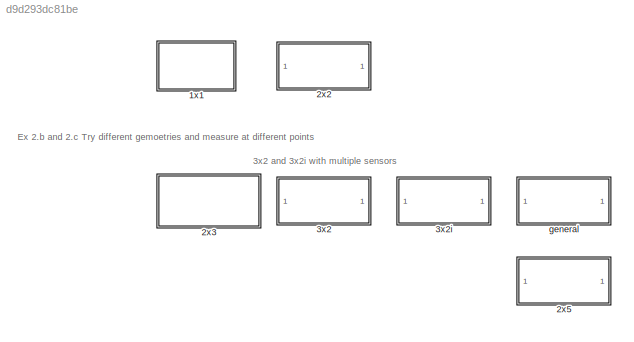
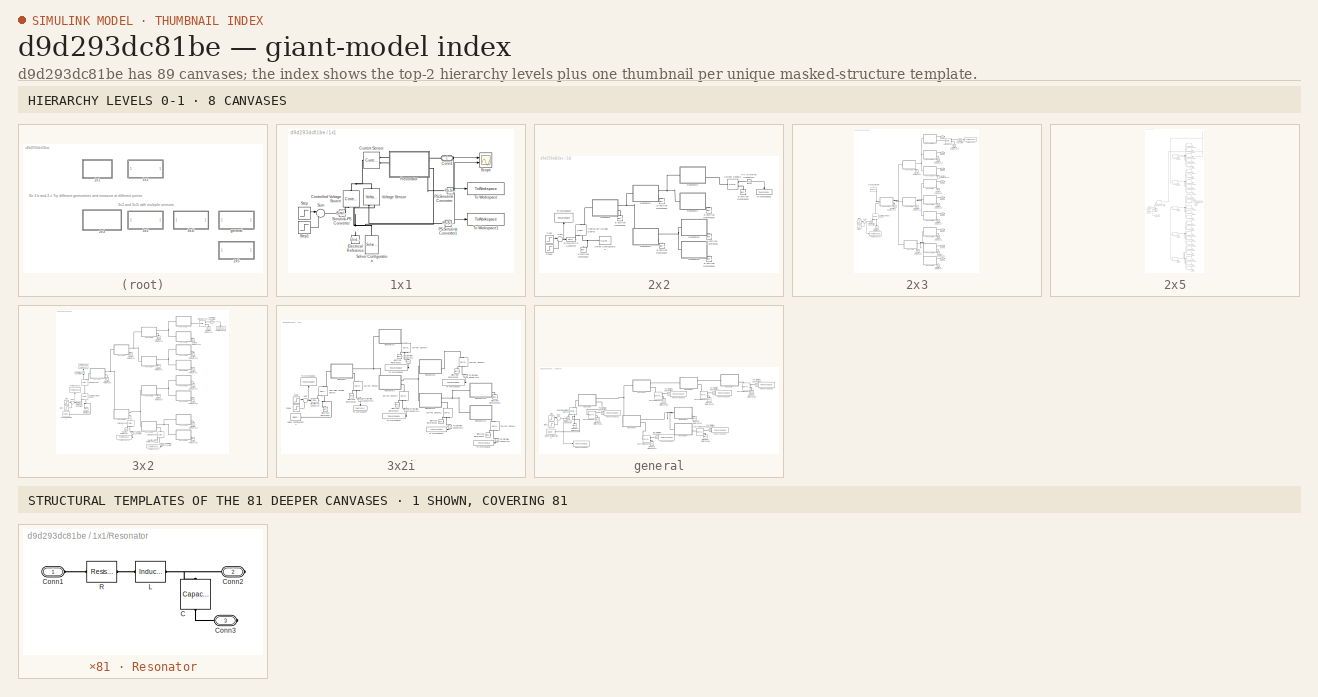
[diagram: thumbnail index - top-2 hierarchy levels (8 canvases) + 1 structural-template representatives of the remaining 81 canvases]
MODEL slx_d9d293dc81be
KIND model
CONFIG AbsTol = auto
CONFIG EnableMultiTasking = off
CONFIG FixedStep = 1/Fs
CONFIG MaxStep = auto
CONFIG MinStep = auto
CONFIG PreLoadFcn = 50000
CONFIG RelTol = 1e-3
CONFIG SampleTimeConstraint = Unconstrained
CONFIG SolverName = FixedStepAuto
CONFIG StartTime = 0.0
CONFIG StopTime = 2
BLOCK [SubSystem] 1x1
  Ports = [0, 0, 0, 0, 0, 0, 1]
  RequestExecContextInheritance = off
BLOCK [PMIOPort] 1x1/Conn1
  Side = Right
BLOCK [Reference] 1x1/Controlled Voltage Source  REF=fl_lib/Electrical/Electrical Sources/Controlled Voltage
Source
  NameLocation = left
  Ports = [0, 0, 0, 0, 0, 1, 2]
  SourceBlock = fl_lib/Electrical/Electrical Sources/Controlled Voltage\nSource
  SourceProductBaseCode = SS
  SourceType = Controlled Voltage\nSource
BLOCK [Reference] 1x1/Current Sensor  REF=fl_lib/Electrical/Electrical Sensors/Current Sensor
  Ports = [0, 0, 0, 0, 0, 1, 2]
  SourceBlock = fl_lib/Electrical/Electrical Sensors/Current Sensor
  SourceProductBaseCode = SS
  SourceType = Current Sensor
BLOCK [Reference] 1x1/Electrical Reference  REF=fl_lib/Electrical/Electrical Elements/Electrical Reference
  NameLocation = right
  Ports = [0, 0, 0, 0, 0, 1]
  SourceBlock = fl_lib/Electrical/Electrical Elements/Electrical Reference
  SourceProductBaseCode = SS
  SourceType = Electrical Reference
BLOCK [Reference] 1x1/PS-Simulink Converter  REF=nesl_utility/PS-Simulink
Converter
  Ports = [0, 1, 0, 0, 0, 1]
  SourceBlock = nesl_utility/PS-Simulink\nConverter
  SourceProductBaseCode = PW,SS
  SourceType = PS-Simulink\nConverter
BLOCK [Reference] 1x1/PS-Simulink Converter1  REF=nesl_utility/PS-Simulink
Converter
  Ports = [0, 1, 0, 0, 0, 1]
  SourceBlock = nesl_utility/PS-Simulink\nConverter
  SourceProductBaseCode = PW,SS
  SourceType = PS-Simulink\nConverter
BLOCK [SubSystem] 1x1/Resonator
  Ports = [0, 0, 0, 0, 0, 1, 2]
  RequestExecContextInheritance = off
BLOCK [Reference] 1x1/Resonator/C  REF=fl_lib/Electrical/Electrical Elements/Capacitor
  NameLocation = left
  Ports = [0, 0, 0, 0, 0, 1, 1]
  SourceBlock = fl_lib/Electrical/Electrical Elements/Capacitor
  SourceProductBaseCode = SS
  SourceType = Capacitor
BLOCK [PMIOPort] 1x1/Resonator/Conn1
  Side = Left
BLOCK [PMIOPort] 1x1/Resonator/Conn2
  Port = 2
  Side = Right
BLOCK [PMIOPort] 1x1/Resonator/Conn3
  Port = 3
  Side = Right
BLOCK [Reference] 1x1/Resonator/L  REF=ee_lib/Passive/Inductor
  Ports = [0, 0, 0, 0, 0, 1, 1]
  SourceBlock = ee_lib/Passive/Inductor
  SourceProductBaseCode = PS
  SourceType = Inductor
BLOCK [Reference] 1x1/Resonator/R  REF=fl_lib/Electrical/Electrical Elements/Resistor
  Ports = [0, 0, 0, 0, 0, 1, 1]
  SourceBlock = fl_lib/Electrical/Electrical Elements/Resistor
  SourceProductBaseCode = SS
  SourceType = Resistor
BLOCK [Scope] 1x1/Scope
  Floating = off
  NumInputPorts = 2
  Ports = [2]
  ScopeSpecificationString = Simulink.scopes.TimeScopeBlockCfg('CurrentConfiguration', extmgr.ConfigurationSet(extmgr.Configuration('Core','General UI',true),extmgr.Configuration('Core','Source UI',true),extmgr.Configuration('Sources','WiredSimulink',true),extmgr.Configuration('Visuals','Time Domain',true,'SerializedDisplays',{struct('MinYLimReal','-0.125','MaxYLimReal','1.125','YLabelReal','','MinYLimMag','0.00000','MaxYLimM...<+1450ch>
BLOCK [Reference] 1x1/Simulink-PS Converter  REF=nesl_utility/Simulink-PS
Converter
  Ports = [1, 0, 0, 0, 0, 0, 1]
  SourceBlock = nesl_utility/Simulink-PS\nConverter
  SourceProductBaseCode = PW,SS
  SourceType = Simulink-PS\nConverter
BLOCK [Reference] 1x1/Solver Configuration  REF=nesl_utility/Solver
Configuration
  NameLocation = right
  Ports = [0, 0, 0, 0, 0, 0, 1]
  SourceBlock = nesl_utility/Solver\nConfiguration
  SourceProductBaseCode = PW,SS
  SourceType = Solver\nConfiguration
BLOCK [Step] 1x1/Step
  SampleTime = 0
  Time = 1/Fs
BLOCK [Step] 1x1/Step1
  SampleTime = 0
  Time = 2/Fs
BLOCK [Sum] 1x1/Sum
  Inputs = |+-
  Ports = [2, 1]
BLOCK [ToWorkspace] 1x1/To Workspace
  FixptAsFi = on
  MaxDataPoints = inf
  Ports = [1]
  SampleTime = -1
  SaveFormat = Timeseries
  VariableName = out1x1
BLOCK [ToWorkspace] 1x1/To Workspace1
  FixptAsFi = on
  MaxDataPoints = inf
  Ports = [1]
  SampleTime = -1
  SaveFormat = Timeseries
  VariableName = in1x1
BLOCK [Reference] 1x1/Voltage Sensor  REF=fl_lib/Electrical/Electrical Sensors/Voltage Sensor
  NameLocation = right
  Ports = [0, 0, 0, 0, 0, 1, 2]
  SourceBlock = fl_lib/Electrical/Electrical Sensors/Voltage Sensor
  SourceProductBaseCode = SS
  SourceType = Voltage Sensor
BLOCK [SubSystem] 2x2
  Ports = []
  RequestExecContextInheritance = off
BLOCK [Reference] 2x2/Controlled Voltage Source  REF=fl_lib/Electrical/Electrical Sources/Controlled Voltage
Source
  NameLocation = left
  Ports = [0, 0, 0, 0, 0, 1, 2]
  SourceBlock = fl_lib/Electrical/Electrical Sources/Controlled Voltage\nSource
  SourceProductBaseCode = SS
  SourceType = Controlled Voltage\nSource
BLOCK [Reference] 2x2/Current Sensor1  REF=fl_lib/Electrical/Electrical Sensors/Current Sensor
  Ports = [0, 0, 0, 0, 0, 1, 2]
  SourceBlock = fl_lib/Electrical/Electrical Sensors/Current Sensor
  SourceProductBaseCode = SS
  SourceType = Current Sensor
BLOCK [Reference] 2x2/Electrical Reference  REF=fl_lib/Electrical/Electrical Elements/Electrical Reference
  NameLocation = right
  Ports = [0, 0, 0, 0, 0, 1]
  SourceBlock = fl_lib/Electrical/Electrical Elements/Electrical Reference
  SourceProductBaseCode = SS
  SourceType = Electrical Reference
BLOCK [Reference] 2x2/Electrical Reference1  REF=fl_lib/Electrical/Electrical Elements/Electrical Reference
  NameLocation = right
  Ports = [0, 0, 0, 0, 0, 1]
  SourceBlock = fl_lib/Electrical/Electrical Elements/Electrical Reference
  SourceProductBaseCode = SS
  SourceType = Electrical Reference
BLOCK [Reference] 2x2/Electrical Reference2  REF=fl_lib/Electrical/Electrical Elements/Electrical Reference
  NameLocation = right
  Ports = [0, 0, 0, 0, 0, 1]
  SourceBlock = fl_lib/Electrical/Electrical Elements/Electrical Reference
  SourceProductBaseCode = SS
  SourceType = Electrical Reference
BLOCK [Reference] 2x2/Electrical Reference3  REF=fl_lib/Electrical/Electrical Elements/Electrical Reference
  NameLocation = right
  Ports = [0, 0, 0, 0, 0, 1]
  SourceBlock = fl_lib/Electrical/Electrical Elements/Electrical Reference
  SourceProductBaseCode = SS
  SourceType = Electrical Reference
BLOCK [Reference] 2x2/Electrical Reference4  REF=fl_lib/Electrical/Electrical Elements/Electrical Reference
  NameLocation = right
  Ports = [0, 0, 0, 0, 0, 1]
  SourceBlock = fl_lib/Electrical/Electrical Elements/Electrical Reference
  SourceProductBaseCode = SS
  SourceType = Electrical Reference
BLOCK [Reference] 2x2/Electrical Reference5  REF=fl_lib/Electrical/Electrical Elements/Electrical Reference
  NameLocation = right
  Ports = [0, 0, 0, 0, 0, 1]
  SourceBlock = fl_lib/Electrical/Electrical Elements/Electrical Reference
  SourceProductBaseCode = SS
  SourceType = Electrical Reference
BLOCK [Reference] 2x2/Electrical Reference6  REF=fl_lib/Electrical/Electrical Elements/Electrical Reference
  NameLocation = right
  Ports = [0, 0, 0, 0, 0, 1]
  SourceBlock = fl_lib/Electrical/Electrical Elements/Electrical Reference
  SourceProductBaseCode = SS
  SourceType = Electrical Reference
BLOCK [Reference] 2x2/Electrical Reference7  REF=fl_lib/Electrical/Electrical Elements/Electrical Reference
  NameLocation = right
  Ports = [0, 0, 0, 0, 0, 1]
  SourceBlock = fl_lib/Electrical/Electrical Elements/Electrical Reference
  SourceProductBaseCode = SS
  SourceType = Electrical Reference
BLOCK [Reference] 2x2/PS-Simulink Converter1  REF=nesl_utility/PS-Simulink
Converter
  Ports = [0, 1, 0, 0, 0, 1]
  SourceBlock = nesl_utility/PS-Simulink\nConverter
  SourceProductBaseCode = PW,SS
  SourceType = PS-Simulink\nConverter
BLOCK [SubSystem] 2x2/Resonator
  Ports = [0, 0, 0, 0, 0, 1, 2]
  RequestExecContextInheritance = off
BLOCK [Reference] 2x2/Resonator/C  REF=fl_lib/Electrical/Electrical Elements/Capacitor
  NameLocation = left
  Ports = [0, 0, 0, 0, 0, 1, 1]
  SourceBlock = fl_lib/Electrical/Electrical Elements/Capacitor
  SourceProductBaseCode = SS
  SourceType = Capacitor
BLOCK [PMIOPort] 2x2/Resonator/Conn1
  Side = Left
BLOCK [PMIOPort] 2x2/Resonator/Conn2
  Port = 2
  Side = Right
BLOCK [PMIOPort] 2x2/Resonator/Conn3
  Port = 3
  Side = Right
BLOCK [Reference] 2x2/Resonator/L  REF=ee_lib/Passive/Inductor
  Ports = [0, 0, 0, 0, 0, 1, 1]
  SourceBlock = ee_lib/Passive/Inductor
  SourceProductBaseCode = PS
  SourceType = Inductor
BLOCK [Reference] 2x2/Resonator/R  REF=fl_lib/Electrical/Electrical Elements/Resistor
  Ports = [0, 0, 0, 0, 0, 1, 1]
  SourceBlock = fl_lib/Electrical/Electrical Elements/Resistor
  SourceProductBaseCode = SS
  SourceType = Resistor
BLOCK [SubSystem] 2x2/Resonator1
  Ports = [0, 0, 0, 0, 0, 1, 2]
  RequestExecContextInheritance = off
BLOCK [Reference] 2x2/Resonator1/C  REF=fl_lib/Electrical/Electrical Elements/Capacitor
  NameLocation = left
  Ports = [0, 0, 0, 0, 0, 1, 1]
  SourceBlock = fl_lib/Electrical/Electrical Elements/Capacitor
  SourceProductBaseCode = SS
  SourceType = Capacitor
BLOCK [PMIOPort] 2x2/Resonator1/Conn1
  Side = Left
BLOCK [PMIOPort] 2x2/Resonator1/Conn2
  Port = 2
  Side = Right
BLOCK [PMIOPort] 2x2/Resonator1/Conn3
  Port = 3
  Side = Right
BLOCK [Reference] 2x2/Resonator1/L  REF=ee_lib/Passive/Inductor
  Ports = [0, 0, 0, 0, 0, 1, 1]
  SourceBlock = ee_lib/Passive/Inductor
  SourceProductBaseCode = PS
  SourceType = Inductor
BLOCK [Reference] 2x2/Resonator1/R  REF=fl_lib/Electrical/Electrical Elements/Resistor
  Ports = [0, 0, 0, 0, 0, 1, 1]
  SourceBlock = fl_lib/Electrical/Electrical Elements/Resistor
  SourceProductBaseCode = SS
  SourceType = Resistor
BLOCK [SubSystem] 2x2/Resonator2
  Ports = [0, 0, 0, 0, 0, 1, 2]
  RequestExecContextInheritance = off
BLOCK [Reference] 2x2/Resonator2/C  REF=fl_lib/Electrical/Electrical Elements/Capacitor
  NameLocation = left
  Ports = [0, 0, 0, 0, 0, 1, 1]
  SourceBlock = fl_lib/Electrical/Electrical Elements/Capacitor
  SourceProductBaseCode = SS
  SourceType = Capacitor
BLOCK [PMIOPort] 2x2/Resonator2/Conn1
  Side = Left
BLOCK [PMIOPort] 2x2/Resonator2/Conn2
  Port = 2
  Side = Right
BLOCK [PMIOPort] 2x2/Resonator2/Conn3
  Port = 3
  Side = Right
BLOCK [Reference] 2x2/Resonator2/L  REF=ee_lib/Passive/Inductor
  Ports = [0, 0, 0, 0, 0, 1, 1]
  SourceBlock = ee_lib/Passive/Inductor
  SourceProductBaseCode = PS
  SourceType = Inductor
BLOCK [Reference] 2x2/Resonator2/R  REF=fl_lib/Electrical/Electrical Elements/Resistor
  Ports = [0, 0, 0, 0, 0, 1, 1]
  SourceBlock = fl_lib/Electrical/Electrical Elements/Resistor
  SourceProductBaseCode = SS
  SourceType = Resistor
BLOCK [SubSystem] 2x2/Resonator3
  Ports = [0, 0, 0, 0, 0, 1, 2]
  RequestExecContextInheritance = off
BLOCK [Reference] 2x2/Resonator3/C  REF=fl_lib/Electrical/Electrical Elements/Capacitor
  NameLocation = left
  Ports = [0, 0, 0, 0, 0, 1, 1]
  SourceBlock = fl_lib/Electrical/Electrical Elements/Capacitor
  SourceProductBaseCode = SS
  SourceType = Capacitor
BLOCK [PMIOPort] 2x2/Resonator3/Conn1
  Side = Left
BLOCK [PMIOPort] 2x2/Resonator3/Conn2
  Port = 2
  Side = Right
BLOCK [PMIOPort] 2x2/Resonator3/Conn3
  Port = 3
  Side = Right
BLOCK [Reference] 2x2/Resonator3/L  REF=ee_lib/Passive/Inductor
  Ports = [0, 0, 0, 0, 0, 1, 1]
  SourceBlock = ee_lib/Passive/Inductor
  SourceProductBaseCode = PS
  SourceType = Inductor
BLOCK [Reference] 2x2/Resonator3/R  REF=fl_lib/Electrical/Electrical Elements/Resistor
  Ports = [0, 0, 0, 0, 0, 1, 1]
  SourceBlock = fl_lib/Electrical/Electrical Elements/Resistor
  SourceProductBaseCode = SS
  SourceType = Resistor
BLOCK [SubSystem] 2x2/Resonator4
  Ports = [0, 0, 0, 0, 0, 1, 2]
  RequestExecContextInheritance = off
BLOCK [Reference] 2x2/Resonator4/C  REF=fl_lib/Electrical/Electrical Elements/Capacitor
  NameLocation = left
  Ports = [0, 0, 0, 0, 0, 1, 1]
  SourceBlock = fl_lib/Electrical/Electrical Elements/Capacitor
  SourceProductBaseCode = SS
  SourceType = Capacitor
BLOCK [PMIOPort] 2x2/Resonator4/Conn1
  Side = Left
BLOCK [PMIOPort] 2x2/Resonator4/Conn2
  Port = 2
  Side = Right
BLOCK [PMIOPort] 2x2/Resonator4/Conn3
  Port = 3
  Side = Right
BLOCK [Reference] 2x2/Resonator4/L  REF=ee_lib/Passive/Inductor
  Ports = [0, 0, 0, 0, 0, 1, 1]
  SourceBlock = ee_lib/Passive/Inductor
  SourceProductBaseCode = PS
  SourceType = Inductor
BLOCK [Reference] 2x2/Resonator4/R  REF=fl_lib/Electrical/Electrical Elements/Resistor
  Ports = [0, 0, 0, 0, 0, 1, 1]
  SourceBlock = fl_lib/Electrical/Electrical Elements/Resistor
  SourceProductBaseCode = SS
  SourceType = Resistor
BLOCK [SubSystem] 2x2/Resonator5
  Ports = [0, 0, 0, 0, 0, 1, 2]
  RequestExecContextInheritance = off
BLOCK [Reference] 2x2/Resonator5/C  REF=fl_lib/Electrical/Electrical Elements/Capacitor
  NameLocation = left
  Ports = [0, 0, 0, 0, 0, 1, 1]
  SourceBlock = fl_lib/Electrical/Electrical Elements/Capacitor
  SourceProductBaseCode = SS
  SourceType = Capacitor
BLOCK [PMIOPort] 2x2/Resonator5/Conn1
  Side = Left
BLOCK [PMIOPort] 2x2/Resonator5/Conn2
  Port = 2
  Side = Right
BLOCK [PMIOPort] 2x2/Resonator5/Conn3
  Port = 3
  Side = Right
BLOCK [Reference] 2x2/Resonator5/L  REF=ee_lib/Passive/Inductor
  Ports = [0, 0, 0, 0, 0, 1, 1]
  SourceBlock = ee_lib/Passive/Inductor
  SourceProductBaseCode = PS
  SourceType = Inductor
BLOCK [Reference] 2x2/Resonator5/R  REF=fl_lib/Electrical/Electrical Elements/Resistor
  Ports = [0, 0, 0, 0, 0, 1, 1]
  SourceBlock = fl_lib/Electrical/Electrical Elements/Resistor
  SourceProductBaseCode = SS
  SourceType = Resistor
BLOCK [SubSystem] 2x2/Resonator6
  Ports = [0, 0, 0, 0, 0, 1, 2]
  RequestExecContextInheritance = off
BLOCK [Reference] 2x2/Resonator6/C  REF=fl_lib/Electrical/Electrical Elements/Capacitor
  NameLocation = left
  Ports = [0, 0, 0, 0, 0, 1, 1]
  SourceBlock = fl_lib/Electrical/Electrical Elements/Capacitor
  SourceProductBaseCode = SS
  SourceType = Capacitor
BLOCK [PMIOPort] 2x2/Resonator6/Conn1
  Side = Left
BLOCK [PMIOPort] 2x2/Resonator6/Conn2
  Port = 2
  Side = Right
BLOCK [PMIOPort] 2x2/Resonator6/Conn3
  Port = 3
  Side = Right
BLOCK [Reference] 2x2/Resonator6/L  REF=ee_lib/Passive/Inductor
  Ports = [0, 0, 0, 0, 0, 1, 1]
  SourceBlock = ee_lib/Passive/Inductor
  SourceProductBaseCode = PS
  SourceType = Inductor
BLOCK [Reference] 2x2/Resonator6/R  REF=fl_lib/Electrical/Electrical Elements/Resistor
  Ports = [0, 0, 0, 0, 0, 1, 1]
  SourceBlock = fl_lib/Electrical/Electrical Elements/Resistor
  SourceProductBaseCode = SS
  SourceType = Resistor
BLOCK [Reference] 2x2/Simulink-PS Converter  REF=nesl_utility/Simulink-PS
Converter
  Ports = [1, 0, 0, 0, 0, 0, 1]
  SourceBlock = nesl_utility/Simulink-PS\nConverter
  SourceProductBaseCode = PW,SS
  SourceType = Simulink-PS\nConverter
BLOCK [Reference] 2x2/Solver Configuration  REF=nesl_utility/Solver
Configuration
  NameLocation = top
  Ports = [0, 0, 0, 0, 0, 0, 1]
  SourceBlock = nesl_utility/Solver\nConfiguration
  SourceProductBaseCode = PW,SS
  SourceType = Solver\nConfiguration
BLOCK [Step] 2x2/Step
  SampleTime = 0
  Time = 1/Fs
BLOCK [Step] 2x2/Step1
  SampleTime = 0
  Time = 2/Fs
BLOCK [Sum] 2x2/Sum
  Inputs = |+-
  Ports = [2, 1]
BLOCK [ToWorkspace] 2x2/To Workspace1
  FixptAsFi = on
  MaxDataPoints = inf
  NameLocation = right
  Ports = [1]
  SampleTime = -1
  SaveFormat = Timeseries
  VariableName = in2x2
BLOCK [ToWorkspace] 2x2/To Workspace2
  FixptAsFi = on
  MaxDataPoints = inf
  NameLocation = left
  Ports = [1]
  SampleTime = -1
  SaveFormat = Timeseries
  VariableName = out2x2
BLOCK [SubSystem] 2x3
  Ports = [0, 0, 0, 0, 0, 0, 9]
  RequestExecContextInheritance = off
BLOCK [PMIOPort] 2x3/Conn1
  Side = Right
BLOCK [PMIOPort] 2x3/Conn2
  Port = 2
  Side = Right
BLOCK [PMIOPort] 2x3/Conn3
  Port = 3
  Side = Right
BLOCK [PMIOPort] 2x3/Conn4
  Port = 4
  Side = Right
BLOCK [PMIOPort] 2x3/Conn5
  Port = 5
  Side = Right
BLOCK [PMIOPort] 2x3/Conn6
  Port = 6
  Side = Right
BLOCK [PMIOPort] 2x3/Conn7
  Port = 7
  Side = Right
BLOCK [PMIOPort] 2x3/Conn8
  Port = 8
  Side = Right
BLOCK [PMIOPort] 2x3/Conn9
  Port = 9
  Side = Right
BLOCK [Reference] 2x3/Controlled Voltage Source  REF=fl_lib/Electrical/Electrical Sources/Controlled Voltage
Source
  NameLocation = left
  Ports = [0, 0, 0, 0, 0, 1, 2]
  SourceBlock = fl_lib/Electrical/Electrical Sources/Controlled Voltage\nSource
  SourceProductBaseCode = SS
  SourceType = Controlled Voltage\nSource
BLOCK [Reference] 2x3/Current Sensor  REF=fl_lib/Electrical/Electrical Sensors/Current Sensor
  Ports = [0, 0, 0, 0, 0, 1, 2]
  SourceBlock = fl_lib/Electrical/Electrical Sensors/Current Sensor
  SourceProductBaseCode = SS
  SourceType = Current Sensor
BLOCK [Reference] 2x3/Electrical Reference  REF=fl_lib/Electrical/Electrical Elements/Electrical Reference
  NameLocation = right
  Ports = [0, 0, 0, 0, 0, 1]
  SourceBlock = fl_lib/Electrical/Electrical Elements/Electrical Reference
  SourceProductBaseCode = SS
  SourceType = Electrical Reference
BLOCK [Reference] 2x3/Electrical Reference1  REF=fl_lib/Electrical/Electrical Elements/Electrical Reference
  NameLocation = right
  Ports = [0, 0, 0, 0, 0, 1]
  SourceBlock = fl_lib/Electrical/Electrical Elements/Electrical Reference
  SourceProductBaseCode = SS
  SourceType = Electrical Reference
BLOCK [Reference] 2x3/Electrical Reference10  REF=fl_lib/Electrical/Electrical Elements/Electrical Reference
  NameLocation = right
  Ports = [0, 0, 0, 0, 0, 1]
  SourceBlock = fl_lib/Electrical/Electrical Elements/Electrical Reference
  SourceProductBaseCode = SS
  SourceType = Electrical Reference
BLOCK [Reference] 2x3/Electrical Reference11  REF=fl_lib/Electrical/Electrical Elements/Electrical Reference
  NameLocation = right
  Ports = [0, 0, 0, 0, 0, 1]
  SourceBlock = fl_lib/Electrical/Electrical Elements/Electrical Reference
  SourceProductBaseCode = SS
  SourceType = Electrical Reference
BLOCK [Reference] 2x3/Electrical Reference12  REF=fl_lib/Electrical/Electrical Elements/Electrical Reference
  NameLocation = right
  Ports = [0, 0, 0, 0, 0, 1]
  SourceBlock = fl_lib/Electrical/Electrical Elements/Electrical Reference
  SourceProductBaseCode = SS
  SourceType = Electrical Reference
BLOCK [Reference] 2x3/Electrical Reference13  REF=fl_lib/Electrical/Electrical Elements/Electrical Reference
  NameLocation = right
  Ports = [0, 0, 0, 0, 0, 1]
  SourceBlock = fl_lib/Electrical/Electrical Elements/Electrical Reference
  SourceProductBaseCode = SS
  SourceType = Electrical Reference
BLOCK [Reference] 2x3/Electrical Reference2  REF=fl_lib/Electrical/Electrical Elements/Electrical Reference
  NameLocation = right
  Ports = [0, 0, 0, 0, 0, 1]
  SourceBlock = fl_lib/Electrical/Electrical Elements/Electrical Reference
  SourceProductBaseCode = SS
  SourceType = Electrical Reference
BLOCK [Reference] 2x3/Electrical Reference3  REF=fl_lib/Electrical/Electrical Elements/Electrical Reference
  NameLocation = right
  Ports = [0, 0, 0, 0, 0, 1]
  SourceBlock = fl_lib/Electrical/Electrical Elements/Electrical Reference
  SourceProductBaseCode = SS
  SourceType = Electrical Reference
BLOCK [Reference] 2x3/Electrical Reference4  REF=fl_lib/Electrical/Electrical Elements/Electrical Reference
  NameLocation = right
  Ports = [0, 0, 0, 0, 0, 1]
  SourceBlock = fl_lib/Electrical/Electrical Elements/Electrical Reference
  SourceProductBaseCode = SS
  SourceType = Electrical Reference
BLOCK [Reference] 2x3/Electrical Reference5  REF=fl_lib/Electrical/Electrical Elements/Electrical Reference
  NameLocation = right
  Ports = [0, 0, 0, 0, 0, 1]
  SourceBlock = fl_lib/Electrical/Electrical Elements/Electrical Reference
  SourceProductBaseCode = SS
  SourceType = Electrical Reference
BLOCK [Reference] 2x3/Electrical Reference6  REF=fl_lib/Electrical/Electrical Elements/Electrical Reference
  NameLocation = right
  Ports = [0, 0, 0, 0, 0, 1]
  SourceBlock = fl_lib/Electrical/Electrical Elements/Electrical Reference
  SourceProductBaseCode = SS
  SourceType = Electrical Reference
BLOCK [Reference] 2x3/Electrical Reference7  REF=fl_lib/Electrical/Electrical Elements/Electrical Reference
  NameLocation = right
  Ports = [0, 0, 0, 0, 0, 1]
  SourceBlock = fl_lib/Electrical/Electrical Elements/Electrical Reference
  SourceProductBaseCode = SS
  SourceType = Electrical Reference
BLOCK [Reference] 2x3/Electrical Reference8  REF=fl_lib/Electrical/Electrical Elements/Electrical Reference
  NameLocation = right
  Ports = [0, 0, 0, 0, 0, 1]
  SourceBlock = fl_lib/Electrical/Electrical Elements/Electrical Reference
  SourceProductBaseCode = SS
  SourceType = Electrical Reference
BLOCK [Reference] 2x3/Electrical Reference9  REF=fl_lib/Electrical/Electrical Elements/Electrical Reference
  NameLocation = right
  Ports = [0, 0, 0, 0, 0, 1]
  SourceBlock = fl_lib/Electrical/Electrical Elements/Electrical Reference
  SourceProductBaseCode = SS
  SourceType = Electrical Reference
BLOCK [Reference] 2x3/PS-Simulink Converter  REF=nesl_utility/PS-Simulink
Converter
  Ports = [0, 1, 0, 0, 0, 1]
  SourceBlock = nesl_utility/PS-Simulink\nConverter
  SourceProductBaseCode = PW,SS
  SourceType = PS-Simulink\nConverter
BLOCK [SubSystem] 2x3/Resonator
  Ports = [0, 0, 0, 0, 0, 1, 2]
  RequestExecContextInheritance = off
BLOCK [Reference] 2x3/Resonator/C  REF=fl_lib/Electrical/Electrical Elements/Capacitor
  NameLocation = left
  Ports = [0, 0, 0, 0, 0, 1, 1]
  SourceBlock = fl_lib/Electrical/Electrical Elements/Capacitor
  SourceProductBaseCode = SS
  SourceType = Capacitor
BLOCK [PMIOPort] 2x3/Resonator/Conn1
  Side = Left
BLOCK [PMIOPort] 2x3/Resonator/Conn2
  Port = 2
  Side = Right
BLOCK [PMIOPort] 2x3/Resonator/Conn3
  Port = 3
  Side = Right
BLOCK [Reference] 2x3/Resonator/L  REF=ee_lib/Passive/Inductor
  Ports = [0, 0, 0, 0, 0, 1, 1]
  SourceBlock = ee_lib/Passive/Inductor
  SourceProductBaseCode = PS
  SourceType = Inductor
BLOCK [Reference] 2x3/Resonator/R  REF=fl_lib/Electrical/Electrical Elements/Resistor
  Ports = [0, 0, 0, 0, 0, 1, 1]
  SourceBlock = fl_lib/Electrical/Electrical Elements/Resistor
  SourceProductBaseCode = SS
  SourceType = Resistor
BLOCK [SubSystem] 2x3/Resonator1
  Ports = [0, 0, 0, 0, 0, 1, 2]
  RequestExecContextInheritance = off
BLOCK [Reference] 2x3/Resonator1/C  REF=fl_lib/Electrical/Electrical Elements/Capacitor
  NameLocation = left
  Ports = [0, 0, 0, 0, 0, 1, 1]
  SourceBlock = fl_lib/Electrical/Electrical Elements/Capacitor
  SourceProductBaseCode = SS
  SourceType = Capacitor
BLOCK [PMIOPort] 2x3/Resonator1/Conn1
  Side = Left
BLOCK [PMIOPort] 2x3/Resonator1/Conn2
  Port = 2
  Side = Right
BLOCK [PMIOPort] 2x3/Resonator1/Conn3
  Port = 3
  Side = Right
BLOCK [Reference] 2x3/Resonator1/L  REF=ee_lib/Passive/Inductor
  Ports = [0, 0, 0, 0, 0, 1, 1]
  SourceBlock = ee_lib/Passive/Inductor
  SourceProductBaseCode = PS
  SourceType = Inductor
BLOCK [Reference] 2x3/Resonator1/R  REF=fl_lib/Electrical/Electrical Elements/Resistor
  Ports = [0, 0, 0, 0, 0, 1, 1]
  SourceBlock = fl_lib/Electrical/Electrical Elements/Resistor
  SourceProductBaseCode = SS
  SourceType = Resistor
BLOCK [SubSystem] 2x3/Resonator10
  Ports = [0, 0, 0, 0, 0, 1, 2]
  RequestExecContextInheritance = off
BLOCK [Reference] 2x3/Resonator10/C  REF=fl_lib/Electrical/Electrical Elements/Capacitor
  NameLocation = left
  Ports = [0, 0, 0, 0, 0, 1, 1]
  SourceBlock = fl_lib/Electrical/Electrical Elements/Capacitor
  SourceProductBaseCode = SS
  SourceType = Capacitor
BLOCK [PMIOPort] 2x3/Resonator10/Conn1
  Side = Left
BLOCK [PMIOPort] 2x3/Resonator10/Conn2
  Port = 2
  Side = Right
BLOCK [PMIOPort] 2x3/Resonator10/Conn3
  Port = 3
  Side = Right
BLOCK [Reference] 2x3/Resonator10/L  REF=ee_lib/Passive/Inductor
  Ports = [0, 0, 0, 0, 0, 1, 1]
  SourceBlock = ee_lib/Passive/Inductor
  SourceProductBaseCode = PS
  SourceType = Inductor
BLOCK [Reference] 2x3/Resonator10/R  REF=fl_lib/Electrical/Electrical Elements/Resistor
  Ports = [0, 0, 0, 0, 0, 1, 1]
  SourceBlock = fl_lib/Electrical/Electrical Elements/Resistor
  SourceProductBaseCode = SS
  SourceType = Resistor
BLOCK [SubSystem] 2x3/Resonator11
  Ports = [0, 0, 0, 0, 0, 1, 2]
  RequestExecContextInheritance = off
BLOCK [Reference] 2x3/Resonator11/C  REF=fl_lib/Electrical/Electrical Elements/Capacitor
  NameLocation = left
  Ports = [0, 0, 0, 0, 0, 1, 1]
  SourceBlock = fl_lib/Electrical/Electrical Elements/Capacitor
  SourceProductBaseCode = SS
  SourceType = Capacitor
BLOCK [PMIOPort] 2x3/Resonator11/Conn1
  Side = Left
BLOCK [PMIOPort] 2x3/Resonator11/Conn2
  Port = 2
  Side = Right
BLOCK [PMIOPort] 2x3/Resonator11/Conn3
  Port = 3
  Side = Right
BLOCK [Reference] 2x3/Resonator11/L  REF=ee_lib/Passive/Inductor
  Ports = [0, 0, 0, 0, 0, 1, 1]
  SourceBlock = ee_lib/Passive/Inductor
  SourceProductBaseCode = PS
  SourceType = Inductor
BLOCK [Reference] 2x3/Resonator11/R  REF=fl_lib/Electrical/Electrical Elements/Resistor
  Ports = [0, 0, 0, 0, 0, 1, 1]
  SourceBlock = fl_lib/Electrical/Electrical Elements/Resistor
  SourceProductBaseCode = SS
  SourceType = Resistor
BLOCK [SubSystem] 2x3/Resonator12
  Ports = [0, 0, 0, 0, 0, 1, 2]
  RequestExecContextInheritance = off
BLOCK [Reference] 2x3/Resonator12/C  REF=fl_lib/Electrical/Electrical Elements/Capacitor
  NameLocation = left
  Ports = [0, 0, 0, 0, 0, 1, 1]
  SourceBlock = fl_lib/Electrical/Electrical Elements/Capacitor
  SourceProductBaseCode = SS
  SourceType = Capacitor
BLOCK [PMIOPort] 2x3/Resonator12/Conn1
  Side = Left
BLOCK [PMIOPort] 2x3/Resonator12/Conn2
  Port = 2
  Side = Right
BLOCK [PMIOPort] 2x3/Resonator12/Conn3
  Port = 3
  Side = Right
BLOCK [Reference] 2x3/Resonator12/L  REF=ee_lib/Passive/Inductor
  Ports = [0, 0, 0, 0, 0, 1, 1]
  SourceBlock = ee_lib/Passive/Inductor
  SourceProductBaseCode = PS
  SourceType = Inductor
BLOCK [Reference] 2x3/Resonator12/R  REF=fl_lib/Electrical/Electrical Elements/Resistor
  Ports = [0, 0, 0, 0, 0, 1, 1]
  SourceBlock = fl_lib/Electrical/Electrical Elements/Resistor
  SourceProductBaseCode = SS
  SourceType = Resistor
BLOCK [SubSystem] 2x3/Resonator2
  Ports = [0, 0, 0, 0, 0, 1, 2]
  RequestExecContextInheritance = off
BLOCK [Reference] 2x3/Resonator2/C  REF=fl_lib/Electrical/Electrical Elements/Capacitor
  NameLocation = left
  Ports = [0, 0, 0, 0, 0, 1, 1]
  SourceBlock = fl_lib/Electrical/Electrical Elements/Capacitor
  SourceProductBaseCode = SS
  SourceType = Capacitor
BLOCK [PMIOPort] 2x3/Resonator2/Conn1
  Side = Left
BLOCK [PMIOPort] 2x3/Resonator2/Conn2
  Port = 2
  Side = Right
BLOCK [PMIOPort] 2x3/Resonator2/Conn3
  Port = 3
  Side = Right
BLOCK [Reference] 2x3/Resonator2/L  REF=ee_lib/Passive/Inductor
  Ports = [0, 0, 0, 0, 0, 1, 1]
  SourceBlock = ee_lib/Passive/Inductor
  SourceProductBaseCode = PS
  SourceType = Inductor
BLOCK [Reference] 2x3/Resonator2/R  REF=fl_lib/Electrical/Electrical Elements/Resistor
  Ports = [0, 0, 0, 0, 0, 1, 1]
  SourceBlock = fl_lib/Electrical/Electrical Elements/Resistor
  SourceProductBaseCode = SS
  SourceType = Resistor
BLOCK [SubSystem] 2x3/Resonator3
  Ports = [0, 0, 0, 0, 0, 1, 2]
  RequestExecContextInheritance = off
BLOCK [Reference] 2x3/Resonator3/C  REF=fl_lib/Electrical/Electrical Elements/Capacitor
  NameLocation = left
  Ports = [0, 0, 0, 0, 0, 1, 1]
  SourceBlock = fl_lib/Electrical/Electrical Elements/Capacitor
  SourceProductBaseCode = SS
  SourceType = Capacitor
BLOCK [PMIOPort] 2x3/Resonator3/Conn1
  Side = Left
BLOCK [PMIOPort] 2x3/Resonator3/Conn2
  Port = 2
  Side = Right
BLOCK [PMIOPort] 2x3/Resonator3/Conn3
  Port = 3
  Side = Right
BLOCK [Reference] 2x3/Resonator3/L  REF=ee_lib/Passive/Inductor
  Ports = [0, 0, 0, 0, 0, 1, 1]
  SourceBlock = ee_lib/Passive/Inductor
  SourceProductBaseCode = PS
  SourceType = Inductor
BLOCK [Reference] 2x3/Resonator3/R  REF=fl_lib/Electrical/Electrical Elements/Resistor
  Ports = [0, 0, 0, 0, 0, 1, 1]
  SourceBlock = fl_lib/Electrical/Electrical Elements/Resistor
  SourceProductBaseCode = SS
  SourceType = Resistor
BLOCK [SubSystem] 2x3/Resonator4
  Ports = [0, 0, 0, 0, 0, 1, 2]
  RequestExecContextInheritance = off
BLOCK [Reference] 2x3/Resonator4/C  REF=fl_lib/Electrical/Electrical Elements/Capacitor
  NameLocation = left
  Ports = [0, 0, 0, 0, 0, 1, 1]
  SourceBlock = fl_lib/Electrical/Electrical Elements/Capacitor
  SourceProductBaseCode = SS
  SourceType = Capacitor
BLOCK [PMIOPort] 2x3/Resonator4/Conn1
  Side = Left
BLOCK [PMIOPort] 2x3/Resonator4/Conn2
  Port = 2
  Side = Right
BLOCK [PMIOPort] 2x3/Resonator4/Conn3
  Port = 3
  Side = Right
BLOCK [Reference] 2x3/Resonator4/L  REF=ee_lib/Passive/Inductor
  Ports = [0, 0, 0, 0, 0, 1, 1]
  SourceBlock = ee_lib/Passive/Inductor
  SourceProductBaseCode = PS
  SourceType = Inductor
BLOCK [Reference] 2x3/Resonator4/R  REF=fl_lib/Electrical/Electrical Elements/Resistor
  Ports = [0, 0, 0, 0, 0, 1, 1]
  SourceBlock = fl_lib/Electrical/Electrical Elements/Resistor
  SourceProductBaseCode = SS
  SourceType = Resistor
BLOCK [SubSystem] 2x3/Resonator5
  Ports = [0, 0, 0, 0, 0, 1, 2]
  RequestExecContextInheritance = off
BLOCK [Reference] 2x3/Resonator5/C  REF=fl_lib/Electrical/Electrical Elements/Capacitor
  NameLocation = left
  Ports = [0, 0, 0, 0, 0, 1, 1]
  SourceBlock = fl_lib/Electrical/Electrical Elements/Capacitor
  SourceProductBaseCode = SS
  SourceType = Capacitor
BLOCK [PMIOPort] 2x3/Resonator5/Conn1
  Side = Left
BLOCK [PMIOPort] 2x3/Resonator5/Conn2
  Port = 2
  Side = Right
BLOCK [PMIOPort] 2x3/Resonator5/Conn3
  Port = 3
  Side = Right
BLOCK [Reference] 2x3/Resonator5/L  REF=ee_lib/Passive/Inductor
  Ports = [0, 0, 0, 0, 0, 1, 1]
  SourceBlock = ee_lib/Passive/Inductor
  SourceProductBaseCode = PS
  SourceType = Inductor
BLOCK [Reference] 2x3/Resonator5/R  REF=fl_lib/Electrical/Electrical Elements/Resistor
  Ports = [0, 0, 0, 0, 0, 1, 1]
  SourceBlock = fl_lib/Electrical/Electrical Elements/Resistor
  SourceProductBaseCode = SS
  SourceType = Resistor
BLOCK [SubSystem] 2x3/Resonator6
  Ports = [0, 0, 0, 0, 0, 1, 2]
  RequestExecContextInheritance = off
BLOCK [Reference] 2x3/Resonator6/C  REF=fl_lib/Electrical/Electrical Elements/Capacitor
  NameLocation = left
  Ports = [0, 0, 0, 0, 0, 1, 1]
  SourceBlock = fl_lib/Electrical/Electrical Elements/Capacitor
  SourceProductBaseCode = SS
  SourceType = Capacitor
BLOCK [PMIOPort] 2x3/Resonator6/Conn1
  Side = Left
BLOCK [PMIOPort] 2x3/Resonator6/Conn2
  Port = 2
  Side = Right
BLOCK [PMIOPort] 2x3/Resonator6/Conn3
  Port = 3
  Side = Right
BLOCK [Reference] 2x3/Resonator6/L  REF=ee_lib/Passive/Inductor
  Ports = [0, 0, 0, 0, 0, 1, 1]
  SourceBlock = ee_lib/Passive/Inductor
  SourceProductBaseCode = PS
  SourceType = Inductor
BLOCK [Reference] 2x3/Resonator6/R  REF=fl_lib/Electrical/Electrical Elements/Resistor
  Ports = [0, 0, 0, 0, 0, 1, 1]
  SourceBlock = fl_lib/Electrical/Electrical Elements/Resistor
  SourceProductBaseCode = SS
  SourceType = Resistor
BLOCK [SubSystem] 2x3/Resonator7
  Ports = [0, 0, 0, 0, 0, 1, 2]
  RequestExecContextInheritance = off
BLOCK [Reference] 2x3/Resonator7/C  REF=fl_lib/Electrical/Electrical Elements/Capacitor
  NameLocation = left
  Ports = [0, 0, 0, 0, 0, 1, 1]
  SourceBlock = fl_lib/Electrical/Electrical Elements/Capacitor
  SourceProductBaseCode = SS
  SourceType = Capacitor
BLOCK [PMIOPort] 2x3/Resonator7/Conn1
  Side = Left
BLOCK [PMIOPort] 2x3/Resonator7/Conn2
  Port = 2
  Side = Right
BLOCK [PMIOPort] 2x3/Resonator7/Conn3
  Port = 3
  Side = Right
BLOCK [Reference] 2x3/Resonator7/L  REF=ee_lib/Passive/Inductor
  Ports = [0, 0, 0, 0, 0, 1, 1]
  SourceBlock = ee_lib/Passive/Inductor
  SourceProductBaseCode = PS
  SourceType = Inductor
BLOCK [Reference] 2x3/Resonator7/R  REF=fl_lib/Electrical/Electrical Elements/Resistor
  Ports = [0, 0, 0, 0, 0, 1, 1]
  SourceBlock = fl_lib/Electrical/Electrical Elements/Resistor
  SourceProductBaseCode = SS
  SourceType = Resistor
BLOCK [SubSystem] 2x3/Resonator8
  Ports = [0, 0, 0, 0, 0, 1, 2]
  RequestExecContextInheritance = off
BLOCK [Reference] 2x3/Resonator8/C  REF=fl_lib/Electrical/Electrical Elements/Capacitor
  NameLocation = left
  Ports = [0, 0, 0, 0, 0, 1, 1]
  SourceBlock = fl_lib/Electrical/Electrical Elements/Capacitor
  SourceProductBaseCode = SS
  SourceType = Capacitor
BLOCK [PMIOPort] 2x3/Resonator8/Conn1
  Side = Left
BLOCK [PMIOPort] 2x3/Resonator8/Conn2
  Port = 2
  Side = Right
BLOCK [PMIOPort] 2x3/Resonator8/Conn3
  Port = 3
  Side = Right
BLOCK [Reference] 2x3/Resonator8/L  REF=ee_lib/Passive/Inductor
  Ports = [0, 0, 0, 0, 0, 1, 1]
  SourceBlock = ee_lib/Passive/Inductor
  SourceProductBaseCode = PS
  SourceType = Inductor
BLOCK [Reference] 2x3/Resonator8/R  REF=fl_lib/Electrical/Electrical Elements/Resistor
  Ports = [0, 0, 0, 0, 0, 1, 1]
  SourceBlock = fl_lib/Electrical/Electrical Elements/Resistor
  SourceProductBaseCode = SS
  SourceType = Resistor
BLOCK [SubSystem] 2x3/Resonator9
  Ports = [0, 0, 0, 0, 0, 1, 2]
  RequestExecContextInheritance = off
BLOCK [Reference] 2x3/Resonator9/C  REF=fl_lib/Electrical/Electrical Elements/Capacitor
  NameLocation = left
  Ports = [0, 0, 0, 0, 0, 1, 1]
  SourceBlock = fl_lib/Electrical/Electrical Elements/Capacitor
  SourceProductBaseCode = SS
  SourceType = Capacitor
BLOCK [PMIOPort] 2x3/Resonator9/Conn1
  Side = Left
BLOCK [PMIOPort] 2x3/Resonator9/Conn2
  Port = 2
  Side = Right
BLOCK [PMIOPort] 2x3/Resonator9/Conn3
  Port = 3
  Side = Right
BLOCK [Reference] 2x3/Resonator9/L  REF=ee_lib/Passive/Inductor
  Ports = [0, 0, 0, 0, 0, 1, 1]
  SourceBlock = ee_lib/Passive/Inductor
  SourceProductBaseCode = PS
  SourceType = Inductor
BLOCK [Reference] 2x3/Resonator9/R  REF=fl_lib/Electrical/Electrical Elements/Resistor
  Ports = [0, 0, 0, 0, 0, 1, 1]
  SourceBlock = fl_lib/Electrical/Electrical Elements/Resistor
  SourceProductBaseCode = SS
  SourceType = Resistor
BLOCK [Reference] 2x3/Simulink-PS Converter  REF=nesl_utility/Simulink-PS
Converter
  Ports = [1, 0, 0, 0, 0, 0, 1]
  SourceBlock = nesl_utility/Simulink-PS\nConverter
  SourceProductBaseCode = PW,SS
  SourceType = Simulink-PS\nConverter
BLOCK [Reference] 2x3/Solver Configuration  REF=nesl_utility/Solver
Configuration
  Ports = [0, 0, 0, 0, 0, 0, 1]
  SourceBlock = nesl_utility/Solver\nConfiguration
  SourceProductBaseCode = PW,SS
  SourceType = Solver\nConfiguration
BLOCK [Step] 2x3/Step
  SampleTime = 0
  Time = 1/Fs
BLOCK [Step] 2x3/Step1
  SampleTime = 0
  Time = 2/Fs
BLOCK [Sum] 2x3/Sum
  Inputs = |+-
  Ports = [2, 1]
BLOCK [ToWorkspace] 2x3/To Workspace
  FixptAsFi = on
  MaxDataPoints = inf
  Ports = [1]
  SampleTime = -1
  SaveFormat = Timeseries
  VariableName = out2x3
BLOCK [ToWorkspace] 2x3/To Workspace1
  FixptAsFi = on
  MaxDataPoints = inf
  Ports = [1]
  SampleTime = -1
  SaveFormat = Timeseries
  VariableName = in2x3
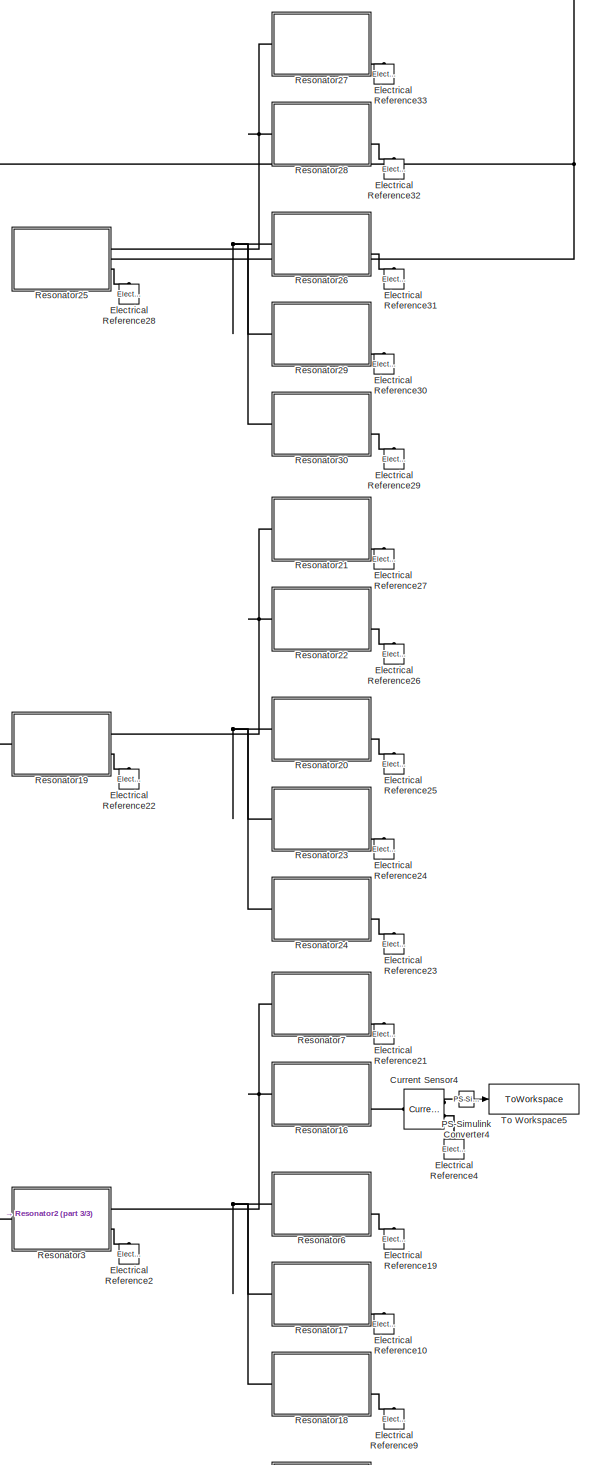
[diagram: 2x5 - part 1/3, middle right region]
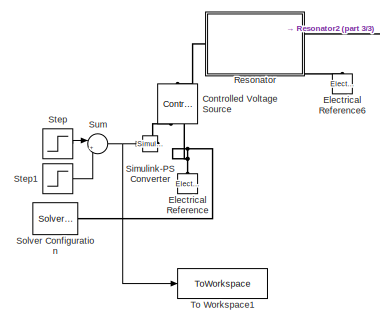
[diagram: 2x5 - part 2/3, middle left region]
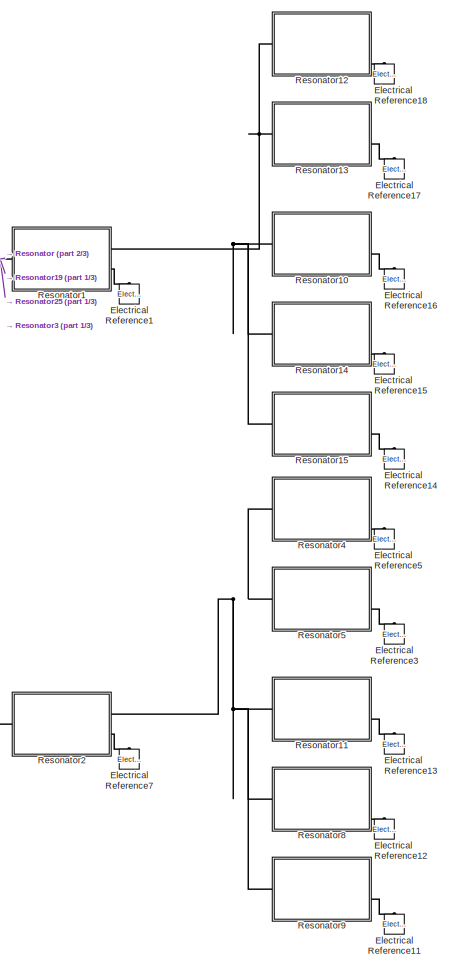
[diagram: 2x5 - part 3/3, bottom center region]
BLOCK [SubSystem] 2x5
  Ports = []
  RequestExecContextInheritance = off
BLOCK [Reference] 2x5/Controlled Voltage Source  REF=fl_lib/Electrical/Electrical Sources/Controlled Voltage
Source
  NameLocation = left
  Ports = [0, 0, 0, 0, 0, 1, 2]
  SourceBlock = fl_lib/Electrical/Electrical Sources/Controlled Voltage\nSource
  SourceProductBaseCode = SS
  SourceType = Controlled Voltage\nSource
BLOCK [Reference] 2x5/Current Sensor4  REF=fl_lib/Electrical/Electrical Sensors/Current Sensor
  Ports = [0, 0, 0, 0, 0, 1, 2]
  SourceBlock = fl_lib/Electrical/Electrical Sensors/Current Sensor
  SourceProductBaseCode = SS
  SourceType = Current Sensor
BLOCK [Reference] 2x5/Electrical Reference  REF=fl_lib/Electrical/Electrical Elements/Electrical Reference
  NameLocation = right
  Ports = [0, 0, 0, 0, 0, 1]
  SourceBlock = fl_lib/Electrical/Electrical Elements/Electrical Reference
  SourceProductBaseCode = SS
  SourceType = Electrical Reference
BLOCK [Reference] 2x5/Electrical Reference1  REF=fl_lib/Electrical/Electrical Elements/Electrical Reference
  NameLocation = right
  Ports = [0, 0, 0, 0, 0, 1]
  SourceBlock = fl_lib/Electrical/Electrical Elements/Electrical Reference
  SourceProductBaseCode = SS
  SourceType = Electrical Reference
BLOCK [Reference] 2x5/Electrical Reference10  REF=fl_lib/Electrical/Electrical Elements/Electrical Reference
  NameLocation = right
  Ports = [0, 0, 0, 0, 0, 1]
  SourceBlock = fl_lib/Electrical/Electrical Elements/Electrical Reference
  SourceProductBaseCode = SS
  SourceType = Electrical Reference
BLOCK [Reference] 2x5/Electrical Reference11  REF=fl_lib/Electrical/Electrical Elements/Electrical Reference
  NameLocation = right
  Ports = [0, 0, 0, 0, 0, 1]
  SourceBlock = fl_lib/Electrical/Electrical Elements/Electrical Reference
  SourceProductBaseCode = SS
  SourceType = Electrical Reference
BLOCK [Reference] 2x5/Electrical Reference12  REF=fl_lib/Electrical/Electrical Elements/Electrical Reference
  NameLocation = right
  Ports = [0, 0, 0, 0, 0, 1]
  SourceBlock = fl_lib/Electrical/Electrical Elements/Electrical Reference
  SourceProductBaseCode = SS
  SourceType = Electrical Reference
BLOCK [Reference] 2x5/Electrical Reference13  REF=fl_lib/Electrical/Electrical Elements/Electrical Reference
  NameLocation = right
  Ports = [0, 0, 0, 0, 0, 1]
  SourceBlock = fl_lib/Electrical/Electrical Elements/Electrical Reference
  SourceProductBaseCode = SS
  SourceType = Electrical Reference
BLOCK [Reference] 2x5/Electrical Reference14  REF=fl_lib/Electrical/Electrical Elements/Electrical Reference
  NameLocation = right
  Ports = [0, 0, 0, 0, 0, 1]
  SourceBlock = fl_lib/Electrical/Electrical Elements/Electrical Reference
  SourceProductBaseCode = SS
  SourceType = Electrical Reference
BLOCK [Reference] 2x5/Electrical Reference15  REF=fl_lib/Electrical/Electrical Elements/Electrical Reference
  NameLocation = right
  Ports = [0, 0, 0, 0, 0, 1]
  SourceBlock = fl_lib/Electrical/Electrical Elements/Electrical Reference
  SourceProductBaseCode = SS
  SourceType = Electrical Reference
BLOCK [Reference] 2x5/Electrical Reference16  REF=fl_lib/Electrical/Electrical Elements/Electrical Reference
  NameLocation = right
  Ports = [0, 0, 0, 0, 0, 1]
  SourceBlock = fl_lib/Electrical/Electrical Elements/Electrical Reference
  SourceProductBaseCode = SS
  SourceType = Electrical Reference
BLOCK [Reference] 2x5/Electrical Reference17  REF=fl_lib/Electrical/Electrical Elements/Electrical Reference
  NameLocation = right
  Ports = [0, 0, 0, 0, 0, 1]
  SourceBlock = fl_lib/Electrical/Electrical Elements/Electrical Reference
  SourceProductBaseCode = SS
  SourceType = Electrical Reference
BLOCK [Reference] 2x5/Electrical Reference18  REF=fl_lib/Electrical/Electrical Elements/Electrical Reference
  NameLocation = right
  Ports = [0, 0, 0, 0, 0, 1]
  SourceBlock = fl_lib/Electrical/Electrical Elements/Electrical Reference
  SourceProductBaseCode = SS
  SourceType = Electrical Reference
BLOCK [Reference] 2x5/Electrical Reference19  REF=fl_lib/Electrical/Electrical Elements/Electrical Reference
  NameLocation = right
  Ports = [0, 0, 0, 0, 0, 1]
  SourceBlock = fl_lib/Electrical/Electrical Elements/Electrical Reference
  SourceProductBaseCode = SS
  SourceType = Electrical Reference
BLOCK [Reference] 2x5/Electrical Reference2  REF=fl_lib/Electrical/Electrical Elements/Electrical Reference
  NameLocation = right
  Ports = [0, 0, 0, 0, 0, 1]
  SourceBlock = fl_lib/Electrical/Electrical Elements/Electrical Reference
  SourceProductBaseCode = SS
  SourceType = Electrical Reference
BLOCK [Reference] 2x5/Electrical Reference21  REF=fl_lib/Electrical/Electrical Elements/Electrical Reference
  NameLocation = right
  Ports = [0, 0, 0, 0, 0, 1]
  SourceBlock = fl_lib/Electrical/Electrical Elements/Electrical Reference
  SourceProductBaseCode = SS
  SourceType = Electrical Reference
BLOCK [Reference] 2x5/Electrical Reference22  REF=fl_lib/Electrical/Electrical Elements/Electrical Reference
  NameLocation = right
  Ports = [0, 0, 0, 0, 0, 1]
  SourceBlock = fl_lib/Electrical/Electrical Elements/Electrical Reference
  SourceProductBaseCode = SS
  SourceType = Electrical Reference
BLOCK [Reference] 2x5/Electrical Reference23  REF=fl_lib/Electrical/Electrical Elements/Electrical Reference
  NameLocation = right
  Ports = [0, 0, 0, 0, 0, 1]
  SourceBlock = fl_lib/Electrical/Electrical Elements/Electrical Reference
  SourceProductBaseCode = SS
  SourceType = Electrical Reference
BLOCK [Reference] 2x5/Electrical Reference24  REF=fl_lib/Electrical/Electrical Elements/Electrical Reference
  NameLocation = right
  Ports = [0, 0, 0, 0, 0, 1]
  SourceBlock = fl_lib/Electrical/Electrical Elements/Electrical Reference
  SourceProductBaseCode = SS
  SourceType = Electrical Reference
BLOCK [Reference] 2x5/Electrical Reference25  REF=fl_lib/Electrical/Electrical Elements/Electrical Reference
  NameLocation = right
  Ports = [0, 0, 0, 0, 0, 1]
  SourceBlock = fl_lib/Electrical/Electrical Elements/Electrical Reference
  SourceProductBaseCode = SS
  SourceType = Electrical Reference
BLOCK [Reference] 2x5/Electrical Reference26  REF=fl_lib/Electrical/Electrical Elements/Electrical Reference
  NameLocation = right
  Ports = [0, 0, 0, 0, 0, 1]
  SourceBlock = fl_lib/Electrical/Electrical Elements/Electrical Reference
  SourceProductBaseCode = SS
  SourceType = Electrical Reference
BLOCK [Reference] 2x5/Electrical Reference27  REF=fl_lib/Electrical/Electrical Elements/Electrical Reference
  NameLocation = right
  Ports = [0, 0, 0, 0, 0, 1]
  SourceBlock = fl_lib/Electrical/Electrical Elements/Electrical Reference
  SourceProductBaseCode = SS
  SourceType = Electrical Reference
BLOCK [Reference] 2x5/Electrical Reference28  REF=fl_lib/Electrical/Electrical Elements/Electrical Reference
  NameLocation = right
  Ports = [0, 0, 0, 0, 0, 1]
  SourceBlock = fl_lib/Electrical/Electrical Elements/Electrical Reference
  SourceProductBaseCode = SS
  SourceType = Electrical Reference
BLOCK [Reference] 2x5/Electrical Reference29  REF=fl_lib/Electrical/Electrical Elements/Electrical Reference
  NameLocation = right
  Ports = [0, 0, 0, 0, 0, 1]
  SourceBlock = fl_lib/Electrical/Electrical Elements/Electrical Reference
  SourceProductBaseCode = SS
  SourceType = Electrical Reference
BLOCK [Reference] 2x5/Electrical Reference3  REF=fl_lib/Electrical/Electrical Elements/Electrical Reference
  NameLocation = right
  Ports = [0, 0, 0, 0, 0, 1]
  SourceBlock = fl_lib/Electrical/Electrical Elements/Electrical Reference
  SourceProductBaseCode = SS
  SourceType = Electrical Reference
BLOCK [Reference] 2x5/Electrical Reference30  REF=fl_lib/Electrical/Electrical Elements/Electrical Reference
  NameLocation = right
  Ports = [0, 0, 0, 0, 0, 1]
  SourceBlock = fl_lib/Electrical/Electrical Elements/Electrical Reference
  SourceProductBaseCode = SS
  SourceType = Electrical Reference
BLOCK [Reference] 2x5/Electrical Reference31  REF=fl_lib/Electrical/Electrical Elements/Electrical Reference
  NameLocation = right
  Ports = [0, 0, 0, 0, 0, 1]
  SourceBlock = fl_lib/Electrical/Electrical Elements/Electrical Reference
  SourceProductBaseCode = SS
  SourceType = Electrical Reference
BLOCK [Reference] 2x5/Electrical Reference32  REF=fl_lib/Electrical/Electrical Elements/Electrical Reference
  NameLocation = right
  Ports = [0, 0, 0, 0, 0, 1]
  SourceBlock = fl_lib/Electrical/Electrical Elements/Electrical Reference
  SourceProductBaseCode = SS
  SourceType = Electrical Reference
BLOCK [Reference] 2x5/Electrical Reference33  REF=fl_lib/Electrical/Electrical Elements/Electrical Reference
  NameLocation = right
  Ports = [0, 0, 0, 0, 0, 1]
  SourceBlock = fl_lib/Electrical/Electrical Elements/Electrical Reference
  SourceProductBaseCode = SS
  SourceType = Electrical Reference
BLOCK [Reference] 2x5/Electrical Reference4  REF=fl_lib/Electrical/Electrical Elements/Electrical Reference
  NameLocation = right
  Ports = [0, 0, 0, 0, 0, 1]
  SourceBlock = fl_lib/Electrical/Electrical Elements/Electrical Reference
  SourceProductBaseCode = SS
  SourceType = Electrical Reference
BLOCK [Reference] 2x5/Electrical Reference5  REF=fl_lib/Electrical/Electrical Elements/Electrical Reference
  NameLocation = right
  Ports = [0, 0, 0, 0, 0, 1]
  SourceBlock = fl_lib/Electrical/Electrical Elements/Electrical Reference
  SourceProductBaseCode = SS
  SourceType = Electrical Reference
BLOCK [Reference] 2x5/Electrical Reference6  REF=fl_lib/Electrical/Electrical Elements/Electrical Reference
  NameLocation = right
  Ports = [0, 0, 0, 0, 0, 1]
  SourceBlock = fl_lib/Electrical/Electrical Elements/Electrical Reference
  SourceProductBaseCode = SS
  SourceType = Electrical Reference
BLOCK [Reference] 2x5/Electrical Reference7  REF=fl_lib/Electrical/Electrical Elements/Electrical Reference
  NameLocation = right
  Ports = [0, 0, 0, 0, 0, 1]
  SourceBlock = fl_lib/Electrical/Electrical Elements/Electrical Reference
  SourceProductBaseCode = SS
  SourceType = Electrical Reference
BLOCK [Reference] 2x5/Electrical Reference9  REF=fl_lib/Electrical/Electrical Elements/Electrical Reference
  NameLocation = right
  Ports = [0, 0, 0, 0, 0, 1]
  SourceBlock = fl_lib/Electrical/Electrical Elements/Electrical Reference
  SourceProductBaseCode = SS
  SourceType = Electrical Reference
BLOCK [Reference] 2x5/PS-Simulink Converter4  REF=nesl_utility/PS-Simulink
Converter
  Ports = [0, 1, 0, 0, 0, 1]
  SourceBlock = nesl_utility/PS-Simulink\nConverter
  SourceProductBaseCode = PW,SS
  SourceType = PS-Simulink\nConverter
BLOCK [SubSystem] 2x5/Resonator
  Ports = [0, 0, 0, 0, 0, 1, 2]
  RequestExecContextInheritance = off
BLOCK [Reference] 2x5/Resonator/C  REF=fl_lib/Electrical/Electrical Elements/Capacitor
  NameLocation = left
  Ports = [0, 0, 0, 0, 0, 1, 1]
  SourceBlock = fl_lib/Electrical/Electrical Elements/Capacitor
  SourceProductBaseCode = SS
  SourceType = Capacitor
BLOCK [PMIOPort] 2x5/Resonator/Conn1
  Side = Left
BLOCK [PMIOPort] 2x5/Resonator/Conn2
  Port = 2
  Side = Right
BLOCK [PMIOPort] 2x5/Resonator/Conn3
  Port = 3
  Side = Right
BLOCK [Reference] 2x5/Resonator/L  REF=ee_lib/Passive/Inductor
  Ports = [0, 0, 0, 0, 0, 1, 1]
  SourceBlock = ee_lib/Passive/Inductor
  SourceProductBaseCode = PS
  SourceType = Inductor
BLOCK [Reference] 2x5/Resonator/R  REF=fl_lib/Electrical/Electrical Elements/Resistor
  Ports = [0, 0, 0, 0, 0, 1, 1]
  SourceBlock = fl_lib/Electrical/Electrical Elements/Resistor
  SourceProductBaseCode = SS
  SourceType = Resistor
BLOCK [SubSystem] 2x5/Resonator1
  Ports = [0, 0, 0, 0, 0, 1, 2]
  RequestExecContextInheritance = off
BLOCK [Reference] 2x5/Resonator1/C  REF=fl_lib/Electrical/Electrical Elements/Capacitor
  NameLocation = left
  Ports = [0, 0, 0, 0, 0, 1, 1]
  SourceBlock = fl_lib/Electrical/Electrical Elements/Capacitor
  SourceProductBaseCode = SS
  SourceType = Capacitor
BLOCK [PMIOPort] 2x5/Resonator1/Conn1
  Side = Left
BLOCK [PMIOPort] 2x5/Resonator1/Conn2
  Port = 2
  Side = Right
BLOCK [PMIOPort] 2x5/Resonator1/Conn3
  Port = 3
  Side = Right
BLOCK [Reference] 2x5/Resonator1/L  REF=ee_lib/Passive/Inductor
  Ports = [0, 0, 0, 0, 0, 1, 1]
  SourceBlock = ee_lib/Passive/Inductor
  SourceProductBaseCode = PS
  SourceType = Inductor
BLOCK [Reference] 2x5/Resonator1/R  REF=fl_lib/Electrical/Electrical Elements/Resistor
  Ports = [0, 0, 0, 0, 0, 1, 1]
  SourceBlock = fl_lib/Electrical/Electrical Elements/Resistor
  SourceProductBaseCode = SS
  SourceType = Resistor
BLOCK [SubSystem] 2x5/Resonator10
  Ports = [0, 0, 0, 0, 0, 1, 2]
  RequestExecContextInheritance = off
BLOCK [Reference] 2x5/Resonator10/C  REF=fl_lib/Electrical/Electrical Elements/Capacitor
  NameLocation = left
  Ports = [0, 0, 0, 0, 0, 1, 1]
  SourceBlock = fl_lib/Electrical/Electrical Elements/Capacitor
  SourceProductBaseCode = SS
  SourceType = Capacitor
BLOCK [PMIOPort] 2x5/Resonator10/Conn1
  Side = Left
BLOCK [PMIOPort] 2x5/Resonator10/Conn2
  Port = 2
  Side = Right
BLOCK [PMIOPort] 2x5/Resonator10/Conn3
  Port = 3
  Side = Right
BLOCK [Reference] 2x5/Resonator10/L  REF=ee_lib/Passive/Inductor
  Ports = [0, 0, 0, 0, 0, 1, 1]
  SourceBlock = ee_lib/Passive/Inductor
  SourceProductBaseCode = PS
  SourceType = Inductor
BLOCK [Reference] 2x5/Resonator10/R  REF=fl_lib/Electrical/Electrical Elements/Resistor
  Ports = [0, 0, 0, 0, 0, 1, 1]
  SourceBlock = fl_lib/Electrical/Electrical Elements/Resistor
  SourceProductBaseCode = SS
  SourceType = Resistor
BLOCK [SubSystem] 2x5/Resonator11
  Ports = [0, 0, 0, 0, 0, 1, 2]
  RequestExecContextInheritance = off
BLOCK [Reference] 2x5/Resonator11/C  REF=fl_lib/Electrical/Electrical Elements/Capacitor
  NameLocation = left
  Ports = [0, 0, 0, 0, 0, 1, 1]
  SourceBlock = fl_lib/Electrical/Electrical Elements/Capacitor
  SourceProductBaseCode = SS
  SourceType = Capacitor
BLOCK [PMIOPort] 2x5/Resonator11/Conn1
  Side = Left
BLOCK [PMIOPort] 2x5/Resonator11/Conn2
  Port = 2
  Side = Right
BLOCK [PMIOPort] 2x5/Resonator11/Conn3
  Port = 3
  Side = Right
BLOCK [Reference] 2x5/Resonator11/L  REF=ee_lib/Passive/Inductor
  Ports = [0, 0, 0, 0, 0, 1, 1]
  SourceBlock = ee_lib/Passive/Inductor
  SourceProductBaseCode = PS
  SourceType = Inductor
BLOCK [Reference] 2x5/Resonator11/R  REF=fl_lib/Electrical/Electrical Elements/Resistor
  Ports = [0, 0, 0, 0, 0, 1, 1]
  SourceBlock = fl_lib/Electrical/Electrical Elements/Resistor
  SourceProductBaseCode = SS
  SourceType = Resistor
BLOCK [SubSystem] 2x5/Resonator12
  Ports = [0, 0, 0, 0, 0, 1, 2]
  RequestExecContextInheritance = off
BLOCK [Reference] 2x5/Resonator12/C  REF=fl_lib/Electrical/Electrical Elements/Capacitor
  NameLocation = left
  Ports = [0, 0, 0, 0, 0, 1, 1]
  SourceBlock = fl_lib/Electrical/Electrical Elements/Capacitor
  SourceProductBaseCode = SS
  SourceType = Capacitor
BLOCK [PMIOPort] 2x5/Resonator12/Conn1
  Side = Left
BLOCK [PMIOPort] 2x5/Resonator12/Conn2
  Port = 2
  Side = Right
BLOCK [PMIOPort] 2x5/Resonator12/Conn3
  Port = 3
  Side = Right
BLOCK [Reference] 2x5/Resonator12/L  REF=ee_lib/Passive/Inductor
  Ports = [0, 0, 0, 0, 0, 1, 1]
  SourceBlock = ee_lib/Passive/Inductor
  SourceProductBaseCode = PS
  SourceType = Inductor
BLOCK [Reference] 2x5/Resonator12/R  REF=fl_lib/Electrical/Electrical Elements/Resistor
  Ports = [0, 0, 0, 0, 0, 1, 1]
  SourceBlock = fl_lib/Electrical/Electrical Elements/Resistor
  SourceProductBaseCode = SS
  SourceType = Resistor
BLOCK [SubSystem] 2x5/Resonator13
  Ports = [0, 0, 0, 0, 0, 1, 2]
  RequestExecContextInheritance = off
BLOCK [Reference] 2x5/Resonator13/C  REF=fl_lib/Electrical/Electrical Elements/Capacitor
  NameLocation = left
  Ports = [0, 0, 0, 0, 0, 1, 1]
  SourceBlock = fl_lib/Electrical/Electrical Elements/Capacitor
  SourceProductBaseCode = SS
  SourceType = Capacitor
BLOCK [PMIOPort] 2x5/Resonator13/Conn1
  Side = Left
BLOCK [PMIOPort] 2x5/Resonator13/Conn2
  Port = 2
  Side = Right
BLOCK [PMIOPort] 2x5/Resonator13/Conn3
  Port = 3
  Side = Right
BLOCK [Reference] 2x5/Resonator13/L  REF=ee_lib/Passive/Inductor
  Ports = [0, 0, 0, 0, 0, 1, 1]
  SourceBlock = ee_lib/Passive/Inductor
  SourceProductBaseCode = PS
  SourceType = Inductor
BLOCK [Reference] 2x5/Resonator13/R  REF=fl_lib/Electrical/Electrical Elements/Resistor
  Ports = [0, 0, 0, 0, 0, 1, 1]
  SourceBlock = fl_lib/Electrical/Electrical Elements/Resistor
  SourceProductBaseCode = SS
  SourceType = Resistor
BLOCK [SubSystem] 2x5/Resonator14
  Ports = [0, 0, 0, 0, 0, 1, 2]
  RequestExecContextInheritance = off
BLOCK [Reference] 2x5/Resonator14/C  REF=fl_lib/Electrical/Electrical Elements/Capacitor
  NameLocation = left
  Ports = [0, 0, 0, 0, 0, 1, 1]
  SourceBlock = fl_lib/Electrical/Electrical Elements/Capacitor
  SourceProductBaseCode = SS
  SourceType = Capacitor
BLOCK [PMIOPort] 2x5/Resonator14/Conn1
  Side = Left
BLOCK [PMIOPort] 2x5/Resonator14/Conn2
  Port = 2
  Side = Right
BLOCK [PMIOPort] 2x5/Resonator14/Conn3
  Port = 3
  Side = Right
BLOCK [Reference] 2x5/Resonator14/L  REF=ee_lib/Passive/Inductor
  Ports = [0, 0, 0, 0, 0, 1, 1]
  SourceBlock = ee_lib/Passive/Inductor
  SourceProductBaseCode = PS
  SourceType = Inductor
BLOCK [Reference] 2x5/Resonator14/R  REF=fl_lib/Electrical/Electrical Elements/Resistor
  Ports = [0, 0, 0, 0, 0, 1, 1]
  SourceBlock = fl_lib/Electrical/Electrical Elements/Resistor
  SourceProductBaseCode = SS
  SourceType = Resistor
BLOCK [SubSystem] 2x5/Resonator15
  Ports = [0, 0, 0, 0, 0, 1, 2]
  RequestExecContextInheritance = off
BLOCK [Reference] 2x5/Resonator15/C  REF=fl_lib/Electrical/Electrical Elements/Capacitor
  NameLocation = left
  Ports = [0, 0, 0, 0, 0, 1, 1]
  SourceBlock = fl_lib/Electrical/Electrical Elements/Capacitor
  SourceProductBaseCode = SS
  SourceType = Capacitor
BLOCK [PMIOPort] 2x5/Resonator15/Conn1
  Side = Left
BLOCK [PMIOPort] 2x5/Resonator15/Conn2
  Port = 2
  Side = Right
BLOCK [PMIOPort] 2x5/Resonator15/Conn3
  Port = 3
  Side = Right
BLOCK [Reference] 2x5/Resonator15/L  REF=ee_lib/Passive/Inductor
  Ports = [0, 0, 0, 0, 0, 1, 1]
  SourceBlock = ee_lib/Passive/Inductor
  SourceProductBaseCode = PS
  SourceType = Inductor
BLOCK [Reference] 2x5/Resonator15/R  REF=fl_lib/Electrical/Electrical Elements/Resistor
  Ports = [0, 0, 0, 0, 0, 1, 1]
  SourceBlock = fl_lib/Electrical/Electrical Elements/Resistor
  SourceProductBaseCode = SS
  SourceType = Resistor
BLOCK [SubSystem] 2x5/Resonator16
  Ports = [0, 0, 0, 0, 0, 1, 2]
  RequestExecContextInheritance = off
BLOCK [Reference] 2x5/Resonator16/C  REF=fl_lib/Electrical/Electrical Elements/Capacitor
  NameLocation = left
  Ports = [0, 0, 0, 0, 0, 1, 1]
  SourceBlock = fl_lib/Electrical/Electrical Elements/Capacitor
  SourceProductBaseCode = SS
  SourceType = Capacitor
BLOCK [PMIOPort] 2x5/Resonator16/Conn1
  Side = Left
BLOCK [PMIOPort] 2x5/Resonator16/Conn2
  Port = 2
  Side = Right
BLOCK [PMIOPort] 2x5/Resonator16/Conn3
  Port = 3
  Side = Right
BLOCK [Reference] 2x5/Resonator16/L  REF=ee_lib/Passive/Inductor
  Ports = [0, 0, 0, 0, 0, 1, 1]
  SourceBlock = ee_lib/Passive/Inductor
  SourceProductBaseCode = PS
  SourceType = Inductor
BLOCK [Reference] 2x5/Resonator16/R  REF=fl_lib/Electrical/Electrical Elements/Resistor
  Ports = [0, 0, 0, 0, 0, 1, 1]
  SourceBlock = fl_lib/Electrical/Electrical Elements/Resistor
  SourceProductBaseCode = SS
  SourceType = Resistor
BLOCK [SubSystem] 2x5/Resonator17
  Ports = [0, 0, 0, 0, 0, 1, 2]
  RequestExecContextInheritance = off
BLOCK [Reference] 2x5/Resonator17/C  REF=fl_lib/Electrical/Electrical Elements/Capacitor
  NameLocation = left
  Ports = [0, 0, 0, 0, 0, 1, 1]
  SourceBlock = fl_lib/Electrical/Electrical Elements/Capacitor
  SourceProductBaseCode = SS
  SourceType = Capacitor
BLOCK [PMIOPort] 2x5/Resonator17/Conn1
  Side = Left
BLOCK [PMIOPort] 2x5/Resonator17/Conn2
  Port = 2
  Side = Right
BLOCK [PMIOPort] 2x5/Resonator17/Conn3
  Port = 3
  Side = Right
BLOCK [Reference] 2x5/Resonator17/L  REF=ee_lib/Passive/Inductor
  Ports = [0, 0, 0, 0, 0, 1, 1]
  SourceBlock = ee_lib/Passive/Inductor
  SourceProductBaseCode = PS
  SourceType = Inductor
BLOCK [Reference] 2x5/Resonator17/R  REF=fl_lib/Electrical/Electrical Elements/Resistor
  Ports = [0, 0, 0, 0, 0, 1, 1]
  SourceBlock = fl_lib/Electrical/Electrical Elements/Resistor
  SourceProductBaseCode = SS
  SourceType = Resistor
BLOCK [SubSystem] 2x5/Resonator18
  Ports = [0, 0, 0, 0, 0, 1, 2]
  RequestExecContextInheritance = off
BLOCK [Reference] 2x5/Resonator18/C  REF=fl_lib/Electrical/Electrical Elements/Capacitor
  NameLocation = left
  Ports = [0, 0, 0, 0, 0, 1, 1]
  SourceBlock = fl_lib/Electrical/Electrical Elements/Capacitor
  SourceProductBaseCode = SS
  SourceType = Capacitor
BLOCK [PMIOPort] 2x5/Resonator18/Conn1
  Side = Left
BLOCK [PMIOPort] 2x5/Resonator18/Conn2
  Port = 2
  Side = Right
BLOCK [PMIOPort] 2x5/Resonator18/Conn3
  Port = 3
  Side = Right
BLOCK [Reference] 2x5/Resonator18/L  REF=ee_lib/Passive/Inductor
  Ports = [0, 0, 0, 0, 0, 1, 1]
  SourceBlock = ee_lib/Passive/Inductor
  SourceProductBaseCode = PS
  SourceType = Inductor
BLOCK [Reference] 2x5/Resonator18/R  REF=fl_lib/Electrical/Electrical Elements/Resistor
  Ports = [0, 0, 0, 0, 0, 1, 1]
  SourceBlock = fl_lib/Electrical/Electrical Elements/Resistor
  SourceProductBaseCode = SS
  SourceType = Resistor
BLOCK [SubSystem] 2x5/Resonator19
  Ports = [0, 0, 0, 0, 0, 1, 2]
  RequestExecContextInheritance = off
BLOCK [Reference] 2x5/Resonator19/C  REF=fl_lib/Electrical/Electrical Elements/Capacitor
  NameLocation = left
  Ports = [0, 0, 0, 0, 0, 1, 1]
  SourceBlock = fl_lib/Electrical/Electrical Elements/Capacitor
  SourceProductBaseCode = SS
  SourceType = Capacitor
BLOCK [PMIOPort] 2x5/Resonator19/Conn1
  Side = Left
BLOCK [PMIOPort] 2x5/Resonator19/Conn2
  Port = 2
  Side = Right
BLOCK [PMIOPort] 2x5/Resonator19/Conn3
  Port = 3
  Side = Right
BLOCK [Reference] 2x5/Resonator19/L  REF=ee_lib/Passive/Inductor
  Ports = [0, 0, 0, 0, 0, 1, 1]
  SourceBlock = ee_lib/Passive/Inductor
  SourceProductBaseCode = PS
  SourceType = Inductor
BLOCK [Reference] 2x5/Resonator19/R  REF=fl_lib/Electrical/Electrical Elements/Resistor
  Ports = [0, 0, 0, 0, 0, 1, 1]
  SourceBlock = fl_lib/Electrical/Electrical Elements/Resistor
  SourceProductBaseCode = SS
  SourceType = Resistor
BLOCK [SubSystem] 2x5/Resonator2
  Ports = [0, 0, 0, 0, 0, 1, 2]
  RequestExecContextInheritance = off
BLOCK [Reference] 2x5/Resonator2/C  REF=fl_lib/Electrical/Electrical Elements/Capacitor
  NameLocation = left
  Ports = [0, 0, 0, 0, 0, 1, 1]
  SourceBlock = fl_lib/Electrical/Electrical Elements/Capacitor
  SourceProductBaseCode = SS
  SourceType = Capacitor
BLOCK [PMIOPort] 2x5/Resonator2/Conn1
  Side = Left
BLOCK [PMIOPort] 2x5/Resonator2/Conn2
  Port = 2
  Side = Right
BLOCK [PMIOPort] 2x5/Resonator2/Conn3
  Port = 3
  Side = Right
BLOCK [Reference] 2x5/Resonator2/L  REF=ee_lib/Passive/Inductor
  Ports = [0, 0, 0, 0, 0, 1, 1]
  SourceBlock = ee_lib/Passive/Inductor
  SourceProductBaseCode = PS
  SourceType = Inductor
BLOCK [Reference] 2x5/Resonator2/R  REF=fl_lib/Electrical/Electrical Elements/Resistor
  Ports = [0, 0, 0, 0, 0, 1, 1]
  SourceBlock = fl_lib/Electrical/Electrical Elements/Resistor
  SourceProductBaseCode = SS
  SourceType = Resistor
BLOCK [SubSystem] 2x5/Resonator20
  Ports = [0, 0, 0, 0, 0, 1, 2]
  RequestExecContextInheritance = off
BLOCK [Reference] 2x5/Resonator20/C  REF=fl_lib/Electrical/Electrical Elements/Capacitor
  NameLocation = left
  Ports = [0, 0, 0, 0, 0, 1, 1]
  SourceBlock = fl_lib/Electrical/Electrical Elements/Capacitor
  SourceProductBaseCode = SS
  SourceType = Capacitor
BLOCK [PMIOPort] 2x5/Resonator20/Conn1
  Side = Left
BLOCK [PMIOPort] 2x5/Resonator20/Conn2
  Port = 2
  Side = Right
BLOCK [PMIOPort] 2x5/Resonator20/Conn3
  Port = 3
  Side = Right
BLOCK [Reference] 2x5/Resonator20/L  REF=ee_lib/Passive/Inductor
  Ports = [0, 0, 0, 0, 0, 1, 1]
  SourceBlock = ee_lib/Passive/Inductor
  SourceProductBaseCode = PS
  SourceType = Inductor
BLOCK [Reference] 2x5/Resonator20/R  REF=fl_lib/Electrical/Electrical Elements/Resistor
  Ports = [0, 0, 0, 0, 0, 1, 1]
  SourceBlock = fl_lib/Electrical/Electrical Elements/Resistor
  SourceProductBaseCode = SS
  SourceType = Resistor
BLOCK [SubSystem] 2x5/Resonator21
  Ports = [0, 0, 0, 0, 0, 1, 2]
  RequestExecContextInheritance = off
BLOCK [Reference] 2x5/Resonator21/C  REF=fl_lib/Electrical/Electrical Elements/Capacitor
  NameLocation = left
  Ports = [0, 0, 0, 0, 0, 1, 1]
  SourceBlock = fl_lib/Electrical/Electrical Elements/Capacitor
  SourceProductBaseCode = SS
  SourceType = Capacitor
BLOCK [PMIOPort] 2x5/Resonator21/Conn1
  Side = Left
BLOCK [PMIOPort] 2x5/Resonator21/Conn2
  Port = 2
  Side = Right
BLOCK [PMIOPort] 2x5/Resonator21/Conn3
  Port = 3
  Side = Right
BLOCK [Reference] 2x5/Resonator21/L  REF=ee_lib/Passive/Inductor
  Ports = [0, 0, 0, 0, 0, 1, 1]
  SourceBlock = ee_lib/Passive/Inductor
  SourceProductBaseCode = PS
  SourceType = Inductor
BLOCK [Reference] 2x5/Resonator21/R  REF=fl_lib/Electrical/Electrical Elements/Resistor
  Ports = [0, 0, 0, 0, 0, 1, 1]
  SourceBlock = fl_lib/Electrical/Electrical Elements/Resistor
  SourceProductBaseCode = SS
  SourceType = Resistor
BLOCK [SubSystem] 2x5/Resonator22
  Ports = [0, 0, 0, 0, 0, 1, 2]
  RequestExecContextInheritance = off
BLOCK [Reference] 2x5/Resonator22/C  REF=fl_lib/Electrical/Electrical Elements/Capacitor
  NameLocation = left
  Ports = [0, 0, 0, 0, 0, 1, 1]
  SourceBlock = fl_lib/Electrical/Electrical Elements/Capacitor
  SourceProductBaseCode = SS
  SourceType = Capacitor
BLOCK [PMIOPort] 2x5/Resonator22/Conn1
  Side = Left
BLOCK [PMIOPort] 2x5/Resonator22/Conn2
  Port = 2
  Side = Right
BLOCK [PMIOPort] 2x5/Resonator22/Conn3
  Port = 3
  Side = Right
BLOCK [Reference] 2x5/Resonator22/L  REF=ee_lib/Passive/Inductor
  Ports = [0, 0, 0, 0, 0, 1, 1]
  SourceBlock = ee_lib/Passive/Inductor
  SourceProductBaseCode = PS
  SourceType = Inductor
BLOCK [Reference] 2x5/Resonator22/R  REF=fl_lib/Electrical/Electrical Elements/Resistor
  Ports = [0, 0, 0, 0, 0, 1, 1]
  SourceBlock = fl_lib/Electrical/Electrical Elements/Resistor
  SourceProductBaseCode = SS
  SourceType = Resistor
BLOCK [SubSystem] 2x5/Resonator23
  Ports = [0, 0, 0, 0, 0, 1, 2]
  RequestExecContextInheritance = off
BLOCK [Reference] 2x5/Resonator23/C  REF=fl_lib/Electrical/Electrical Elements/Capacitor
  NameLocation = left
  Ports = [0, 0, 0, 0, 0, 1, 1]
  SourceBlock = fl_lib/Electrical/Electrical Elements/Capacitor
  SourceProductBaseCode = SS
  SourceType = Capacitor
BLOCK [PMIOPort] 2x5/Resonator23/Conn1
  Side = Left
BLOCK [PMIOPort] 2x5/Resonator23/Conn2
  Port = 2
  Side = Right
BLOCK [PMIOPort] 2x5/Resonator23/Conn3
  Port = 3
  Side = Right
BLOCK [Reference] 2x5/Resonator23/L  REF=ee_lib/Passive/Inductor
  Ports = [0, 0, 0, 0, 0, 1, 1]
  SourceBlock = ee_lib/Passive/Inductor
  SourceProductBaseCode = PS
  SourceType = Inductor
BLOCK [Reference] 2x5/Resonator23/R  REF=fl_lib/Electrical/Electrical Elements/Resistor
  Ports = [0, 0, 0, 0, 0, 1, 1]
  SourceBlock = fl_lib/Electrical/Electrical Elements/Resistor
  SourceProductBaseCode = SS
  SourceType = Resistor
BLOCK [SubSystem] 2x5/Resonator24
  Ports = [0, 0, 0, 0, 0, 1, 2]
  RequestExecContextInheritance = off
BLOCK [Reference] 2x5/Resonator24/C  REF=fl_lib/Electrical/Electrical Elements/Capacitor
  NameLocation = left
  Ports = [0, 0, 0, 0, 0, 1, 1]
  SourceBlock = fl_lib/Electrical/Electrical Elements/Capacitor
  SourceProductBaseCode = SS
  SourceType = Capacitor
BLOCK [PMIOPort] 2x5/Resonator24/Conn1
  Side = Left
BLOCK [PMIOPort] 2x5/Resonator24/Conn2
  Port = 2
  Side = Right
BLOCK [PMIOPort] 2x5/Resonator24/Conn3
  Port = 3
  Side = Right
BLOCK [Reference] 2x5/Resonator24/L  REF=ee_lib/Passive/Inductor
  Ports = [0, 0, 0, 0, 0, 1, 1]
  SourceBlock = ee_lib/Passive/Inductor
  SourceProductBaseCode = PS
  SourceType = Inductor
BLOCK [Reference] 2x5/Resonator24/R  REF=fl_lib/Electrical/Electrical Elements/Resistor
  Ports = [0, 0, 0, 0, 0, 1, 1]
  SourceBlock = fl_lib/Electrical/Electrical Elements/Resistor
  SourceProductBaseCode = SS
  SourceType = Resistor
BLOCK [SubSystem] 2x5/Resonator25
  Ports = [0, 0, 0, 0, 0, 1, 2]
  RequestExecContextInheritance = off
BLOCK [Reference] 2x5/Resonator25/C  REF=fl_lib/Electrical/Electrical Elements/Capacitor
  NameLocation = left
  Ports = [0, 0, 0, 0, 0, 1, 1]
  SourceBlock = fl_lib/Electrical/Electrical Elements/Capacitor
  SourceProductBaseCode = SS
  SourceType = Capacitor
BLOCK [PMIOPort] 2x5/Resonator25/Conn1
  Side = Left
BLOCK [PMIOPort] 2x5/Resonator25/Conn2
  Port = 2
  Side = Right
BLOCK [PMIOPort] 2x5/Resonator25/Conn3
  Port = 3
  Side = Right
BLOCK [Reference] 2x5/Resonator25/L  REF=ee_lib/Passive/Inductor
  Ports = [0, 0, 0, 0, 0, 1, 1]
  SourceBlock = ee_lib/Passive/Inductor
  SourceProductBaseCode = PS
  SourceType = Inductor
BLOCK [Reference] 2x5/Resonator25/R  REF=fl_lib/Electrical/Electrical Elements/Resistor
  Ports = [0, 0, 0, 0, 0, 1, 1]
  SourceBlock = fl_lib/Electrical/Electrical Elements/Resistor
  SourceProductBaseCode = SS
  SourceType = Resistor
BLOCK [SubSystem] 2x5/Resonator26
  Ports = [0, 0, 0, 0, 0, 1, 2]
  RequestExecContextInheritance = off
BLOCK [Reference] 2x5/Resonator26/C  REF=fl_lib/Electrical/Electrical Elements/Capacitor
  NameLocation = left
  Ports = [0, 0, 0, 0, 0, 1, 1]
  SourceBlock = fl_lib/Electrical/Electrical Elements/Capacitor
  SourceProductBaseCode = SS
  SourceType = Capacitor
BLOCK [PMIOPort] 2x5/Resonator26/Conn1
  Side = Left
BLOCK [PMIOPort] 2x5/Resonator26/Conn2
  Port = 2
  Side = Right
BLOCK [PMIOPort] 2x5/Resonator26/Conn3
  Port = 3
  Side = Right
BLOCK [Reference] 2x5/Resonator26/L  REF=ee_lib/Passive/Inductor
  Ports = [0, 0, 0, 0, 0, 1, 1]
  SourceBlock = ee_lib/Passive/Inductor
  SourceProductBaseCode = PS
  SourceType = Inductor
BLOCK [Reference] 2x5/Resonator26/R  REF=fl_lib/Electrical/Electrical Elements/Resistor
  Ports = [0, 0, 0, 0, 0, 1, 1]
  SourceBlock = fl_lib/Electrical/Electrical Elements/Resistor
  SourceProductBaseCode = SS
  SourceType = Resistor
BLOCK [SubSystem] 2x5/Resonator27
  Ports = [0, 0, 0, 0, 0, 1, 2]
  RequestExecContextInheritance = off
BLOCK [Reference] 2x5/Resonator27/C  REF=fl_lib/Electrical/Electrical Elements/Capacitor
  NameLocation = left
  Ports = [0, 0, 0, 0, 0, 1, 1]
  SourceBlock = fl_lib/Electrical/Electrical Elements/Capacitor
  SourceProductBaseCode = SS
  SourceType = Capacitor
BLOCK [PMIOPort] 2x5/Resonator27/Conn1
  Side = Left
BLOCK [PMIOPort] 2x5/Resonator27/Conn2
  Port = 2
  Side = Right
BLOCK [PMIOPort] 2x5/Resonator27/Conn3
  Port = 3
  Side = Right
BLOCK [Reference] 2x5/Resonator27/L  REF=ee_lib/Passive/Inductor
  Ports = [0, 0, 0, 0, 0, 1, 1]
  SourceBlock = ee_lib/Passive/Inductor
  SourceProductBaseCode = PS
  SourceType = Inductor
BLOCK [Reference] 2x5/Resonator27/R  REF=fl_lib/Electrical/Electrical Elements/Resistor
  Ports = [0, 0, 0, 0, 0, 1, 1]
  SourceBlock = fl_lib/Electrical/Electrical Elements/Resistor
  SourceProductBaseCode = SS
  SourceType = Resistor
BLOCK [SubSystem] 2x5/Resonator28
  Ports = [0, 0, 0, 0, 0, 1, 2]
  RequestExecContextInheritance = off
BLOCK [Reference] 2x5/Resonator28/C  REF=fl_lib/Electrical/Electrical Elements/Capacitor
  NameLocation = left
  Ports = [0, 0, 0, 0, 0, 1, 1]
  SourceBlock = fl_lib/Electrical/Electrical Elements/Capacitor
  SourceProductBaseCode = SS
  SourceType = Capacitor
BLOCK [PMIOPort] 2x5/Resonator28/Conn1
  Side = Left
BLOCK [PMIOPort] 2x5/Resonator28/Conn2
  Port = 2
  Side = Right
BLOCK [PMIOPort] 2x5/Resonator28/Conn3
  Port = 3
  Side = Right
BLOCK [Reference] 2x5/Resonator28/L  REF=ee_lib/Passive/Inductor
  Ports = [0, 0, 0, 0, 0, 1, 1]
  SourceBlock = ee_lib/Passive/Inductor
  SourceProductBaseCode = PS
  SourceType = Inductor
BLOCK [Reference] 2x5/Resonator28/R  REF=fl_lib/Electrical/Electrical Elements/Resistor
  Ports = [0, 0, 0, 0, 0, 1, 1]
  SourceBlock = fl_lib/Electrical/Electrical Elements/Resistor
  SourceProductBaseCode = SS
  SourceType = Resistor
BLOCK [SubSystem] 2x5/Resonator29
  Ports = [0, 0, 0, 0, 0, 1, 2]
  RequestExecContextInheritance = off
BLOCK [Reference] 2x5/Resonator29/C  REF=fl_lib/Electrical/Electrical Elements/Capacitor
  NameLocation = left
  Ports = [0, 0, 0, 0, 0, 1, 1]
  SourceBlock = fl_lib/Electrical/Electrical Elements/Capacitor
  SourceProductBaseCode = SS
  SourceType = Capacitor
BLOCK [PMIOPort] 2x5/Resonator29/Conn1
  Side = Left
BLOCK [PMIOPort] 2x5/Resonator29/Conn2
  Port = 2
  Side = Right
BLOCK [PMIOPort] 2x5/Resonator29/Conn3
  Port = 3
  Side = Right
BLOCK [Reference] 2x5/Resonator29/L  REF=ee_lib/Passive/Inductor
  Ports = [0, 0, 0, 0, 0, 1, 1]
  SourceBlock = ee_lib/Passive/Inductor
  SourceProductBaseCode = PS
  SourceType = Inductor
BLOCK [Reference] 2x5/Resonator29/R  REF=fl_lib/Electrical/Electrical Elements/Resistor
  Ports = [0, 0, 0, 0, 0, 1, 1]
  SourceBlock = fl_lib/Electrical/Electrical Elements/Resistor
  SourceProductBaseCode = SS
  SourceType = Resistor
BLOCK [SubSystem] 2x5/Resonator3
  Ports = [0, 0, 0, 0, 0, 1, 2]
  RequestExecContextInheritance = off
BLOCK [Reference] 2x5/Resonator3/C  REF=fl_lib/Electrical/Electrical Elements/Capacitor
  NameLocation = left
  Ports = [0, 0, 0, 0, 0, 1, 1]
  SourceBlock = fl_lib/Electrical/Electrical Elements/Capacitor
  SourceProductBaseCode = SS
  SourceType = Capacitor
BLOCK [PMIOPort] 2x5/Resonator3/Conn1
  Side = Left
BLOCK [PMIOPort] 2x5/Resonator3/Conn2
  Port = 2
  Side = Right
BLOCK [PMIOPort] 2x5/Resonator3/Conn3
  Port = 3
  Side = Right
BLOCK [Reference] 2x5/Resonator3/L  REF=ee_lib/Passive/Inductor
  Ports = [0, 0, 0, 0, 0, 1, 1]
  SourceBlock = ee_lib/Passive/Inductor
  SourceProductBaseCode = PS
  SourceType = Inductor
BLOCK [Reference] 2x5/Resonator3/R  REF=fl_lib/Electrical/Electrical Elements/Resistor
  Ports = [0, 0, 0, 0, 0, 1, 1]
  SourceBlock = fl_lib/Electrical/Electrical Elements/Resistor
  SourceProductBaseCode = SS
  SourceType = Resistor
BLOCK [SubSystem] 2x5/Resonator30
  Ports = [0, 0, 0, 0, 0, 1, 2]
  RequestExecContextInheritance = off
BLOCK [Reference] 2x5/Resonator30/C  REF=fl_lib/Electrical/Electrical Elements/Capacitor
  NameLocation = left
  Ports = [0, 0, 0, 0, 0, 1, 1]
  SourceBlock = fl_lib/Electrical/Electrical Elements/Capacitor
  SourceProductBaseCode = SS
  SourceType = Capacitor
BLOCK [PMIOPort] 2x5/Resonator30/Conn1
  Side = Left
BLOCK [PMIOPort] 2x5/Resonator30/Conn2
  Port = 2
  Side = Right
BLOCK [PMIOPort] 2x5/Resonator30/Conn3
  Port = 3
  Side = Right
BLOCK [Reference] 2x5/Resonator30/L  REF=ee_lib/Passive/Inductor
  Ports = [0, 0, 0, 0, 0, 1, 1]
  SourceBlock = ee_lib/Passive/Inductor
  SourceProductBaseCode = PS
  SourceType = Inductor
BLOCK [Reference] 2x5/Resonator30/R  REF=fl_lib/Electrical/Electrical Elements/Resistor
  Ports = [0, 0, 0, 0, 0, 1, 1]
  SourceBlock = fl_lib/Electrical/Electrical Elements/Resistor
  SourceProductBaseCode = SS
  SourceType = Resistor
BLOCK [SubSystem] 2x5/Resonator4
  Ports = [0, 0, 0, 0, 0, 1, 2]
  RequestExecContextInheritance = off
BLOCK [Reference] 2x5/Resonator4/C  REF=fl_lib/Electrical/Electrical Elements/Capacitor
  NameLocation = left
  Ports = [0, 0, 0, 0, 0, 1, 1]
  SourceBlock = fl_lib/Electrical/Electrical Elements/Capacitor
  SourceProductBaseCode = SS
  SourceType = Capacitor
BLOCK [PMIOPort] 2x5/Resonator4/Conn1
  Side = Left
BLOCK [PMIOPort] 2x5/Resonator4/Conn2
  Port = 2
  Side = Right
BLOCK [PMIOPort] 2x5/Resonator4/Conn3
  Port = 3
  Side = Right
BLOCK [Reference] 2x5/Resonator4/L  REF=ee_lib/Passive/Inductor
  Ports = [0, 0, 0, 0, 0, 1, 1]
  SourceBlock = ee_lib/Passive/Inductor
  SourceProductBaseCode = PS
  SourceType = Inductor
BLOCK [Reference] 2x5/Resonator4/R  REF=fl_lib/Electrical/Electrical Elements/Resistor
  Ports = [0, 0, 0, 0, 0, 1, 1]
  SourceBlock = fl_lib/Electrical/Electrical Elements/Resistor
  SourceProductBaseCode = SS
  SourceType = Resistor
BLOCK [SubSystem] 2x5/Resonator5
  Ports = [0, 0, 0, 0, 0, 1, 2]
  RequestExecContextInheritance = off
BLOCK [Reference] 2x5/Resonator5/C  REF=fl_lib/Electrical/Electrical Elements/Capacitor
  NameLocation = left
  Ports = [0, 0, 0, 0, 0, 1, 1]
  SourceBlock = fl_lib/Electrical/Electrical Elements/Capacitor
  SourceProductBaseCode = SS
  SourceType = Capacitor
BLOCK [PMIOPort] 2x5/Resonator5/Conn1
  Side = Left
BLOCK [PMIOPort] 2x5/Resonator5/Conn2
  Port = 2
  Side = Right
BLOCK [PMIOPort] 2x5/Resonator5/Conn3
  Port = 3
  Side = Right
BLOCK [Reference] 2x5/Resonator5/L  REF=ee_lib/Passive/Inductor
  Ports = [0, 0, 0, 0, 0, 1, 1]
  SourceBlock = ee_lib/Passive/Inductor
  SourceProductBaseCode = PS
  SourceType = Inductor
BLOCK [Reference] 2x5/Resonator5/R  REF=fl_lib/Electrical/Electrical Elements/Resistor
  Ports = [0, 0, 0, 0, 0, 1, 1]
  SourceBlock = fl_lib/Electrical/Electrical Elements/Resistor
  SourceProductBaseCode = SS
  SourceType = Resistor
BLOCK [SubSystem] 2x5/Resonator6
  Ports = [0, 0, 0, 0, 0, 1, 2]
  RequestExecContextInheritance = off
BLOCK [Reference] 2x5/Resonator6/C  REF=fl_lib/Electrical/Electrical Elements/Capacitor
  NameLocation = left
  Ports = [0, 0, 0, 0, 0, 1, 1]
  SourceBlock = fl_lib/Electrical/Electrical Elements/Capacitor
  SourceProductBaseCode = SS
  SourceType = Capacitor
BLOCK [PMIOPort] 2x5/Resonator6/Conn1
  Side = Left
BLOCK [PMIOPort] 2x5/Resonator6/Conn2
  Port = 2
  Side = Right
BLOCK [PMIOPort] 2x5/Resonator6/Conn3
  Port = 3
  Side = Right
BLOCK [Reference] 2x5/Resonator6/L  REF=ee_lib/Passive/Inductor
  Ports = [0, 0, 0, 0, 0, 1, 1]
  SourceBlock = ee_lib/Passive/Inductor
  SourceProductBaseCode = PS
  SourceType = Inductor
BLOCK [Reference] 2x5/Resonator6/R  REF=fl_lib/Electrical/Electrical Elements/Resistor
  Ports = [0, 0, 0, 0, 0, 1, 1]
  SourceBlock = fl_lib/Electrical/Electrical Elements/Resistor
  SourceProductBaseCode = SS
  SourceType = Resistor
BLOCK [SubSystem] 2x5/Resonator7
  Ports = [0, 0, 0, 0, 0, 1, 2]
  RequestExecContextInheritance = off
BLOCK [Reference] 2x5/Resonator7/C  REF=fl_lib/Electrical/Electrical Elements/Capacitor
  NameLocation = left
  Ports = [0, 0, 0, 0, 0, 1, 1]
  SourceBlock = fl_lib/Electrical/Electrical Elements/Capacitor
  SourceProductBaseCode = SS
  SourceType = Capacitor
BLOCK [PMIOPort] 2x5/Resonator7/Conn1
  Side = Left
BLOCK [PMIOPort] 2x5/Resonator7/Conn2
  Port = 2
  Side = Right
BLOCK [PMIOPort] 2x5/Resonator7/Conn3
  Port = 3
  Side = Right
BLOCK [Reference] 2x5/Resonator7/L  REF=ee_lib/Passive/Inductor
  Ports = [0, 0, 0, 0, 0, 1, 1]
  SourceBlock = ee_lib/Passive/Inductor
  SourceProductBaseCode = PS
  SourceType = Inductor
BLOCK [Reference] 2x5/Resonator7/R  REF=fl_lib/Electrical/Electrical Elements/Resistor
  Ports = [0, 0, 0, 0, 0, 1, 1]
  SourceBlock = fl_lib/Electrical/Electrical Elements/Resistor
  SourceProductBaseCode = SS
  SourceType = Resistor
BLOCK [SubSystem] 2x5/Resonator8
  Ports = [0, 0, 0, 0, 0, 1, 2]
  RequestExecContextInheritance = off
BLOCK [Reference] 2x5/Resonator8/C  REF=fl_lib/Electrical/Electrical Elements/Capacitor
  NameLocation = left
  Ports = [0, 0, 0, 0, 0, 1, 1]
  SourceBlock = fl_lib/Electrical/Electrical Elements/Capacitor
  SourceProductBaseCode = SS
  SourceType = Capacitor
BLOCK [PMIOPort] 2x5/Resonator8/Conn1
  Side = Left
BLOCK [PMIOPort] 2x5/Resonator8/Conn2
  Port = 2
  Side = Right
BLOCK [PMIOPort] 2x5/Resonator8/Conn3
  Port = 3
  Side = Right
BLOCK [Reference] 2x5/Resonator8/L  REF=ee_lib/Passive/Inductor
  Ports = [0, 0, 0, 0, 0, 1, 1]
  SourceBlock = ee_lib/Passive/Inductor
  SourceProductBaseCode = PS
  SourceType = Inductor
BLOCK [Reference] 2x5/Resonator8/R  REF=fl_lib/Electrical/Electrical Elements/Resistor
  Ports = [0, 0, 0, 0, 0, 1, 1]
  SourceBlock = fl_lib/Electrical/Electrical Elements/Resistor
  SourceProductBaseCode = SS
  SourceType = Resistor
BLOCK [SubSystem] 2x5/Resonator9
  Ports = [0, 0, 0, 0, 0, 1, 2]
  RequestExecContextInheritance = off
BLOCK [Reference] 2x5/Resonator9/C  REF=fl_lib/Electrical/Electrical Elements/Capacitor
  NameLocation = left
  Ports = [0, 0, 0, 0, 0, 1, 1]
  SourceBlock = fl_lib/Electrical/Electrical Elements/Capacitor
  SourceProductBaseCode = SS
  SourceType = Capacitor
BLOCK [PMIOPort] 2x5/Resonator9/Conn1
  Side = Left
BLOCK [PMIOPort] 2x5/Resonator9/Conn2
  Port = 2
  Side = Right
BLOCK [PMIOPort] 2x5/Resonator9/Conn3
  Port = 3
  Side = Right
BLOCK [Reference] 2x5/Resonator9/L  REF=ee_lib/Passive/Inductor
  Ports = [0, 0, 0, 0, 0, 1, 1]
  SourceBlock = ee_lib/Passive/Inductor
  SourceProductBaseCode = PS
  SourceType = Inductor
BLOCK [Reference] 2x5/Resonator9/R  REF=fl_lib/Electrical/Electrical Elements/Resistor
  Ports = [0, 0, 0, 0, 0, 1, 1]
  SourceBlock = fl_lib/Electrical/Electrical Elements/Resistor
  SourceProductBaseCode = SS
  SourceType = Resistor
BLOCK [Reference] 2x5/Simulink-PS Converter  REF=nesl_utility/Simulink-PS
Converter
  Ports = [1, 0, 0, 0, 0, 0, 1]
  SourceBlock = nesl_utility/Simulink-PS\nConverter
  SourceProductBaseCode = PW,SS
  SourceType = Simulink-PS\nConverter
BLOCK [Reference] 2x5/Solver Configuration  REF=nesl_utility/Solver
Configuration
  Ports = [0, 0, 0, 0, 0, 0, 1]
  SourceBlock = nesl_utility/Solver\nConfiguration
  SourceProductBaseCode = PW,SS
  SourceType = Solver\nConfiguration
BLOCK [Step] 2x5/Step
  SampleTime = 0
  Time = 1/Fs
BLOCK [Step] 2x5/Step1
  SampleTime = 0
  Time = 2/Fs
BLOCK [Sum] 2x5/Sum
  Inputs = |+-
  Ports = [2, 1]
BLOCK [ToWorkspace] 2x5/To Workspace1
  FixptAsFi = on
  MaxDataPoints = inf
  Ports = [1]
  SampleTime = -1
  SaveFormat = Timeseries
  VariableName = in_test_proof
BLOCK [ToWorkspace] 2x5/To Workspace5
  FixptAsFi = on
  MaxDataPoints = inf
  Ports = [1]
  SampleTime = -1
  SaveFormat = Timeseries
  VariableName = out_test_proof
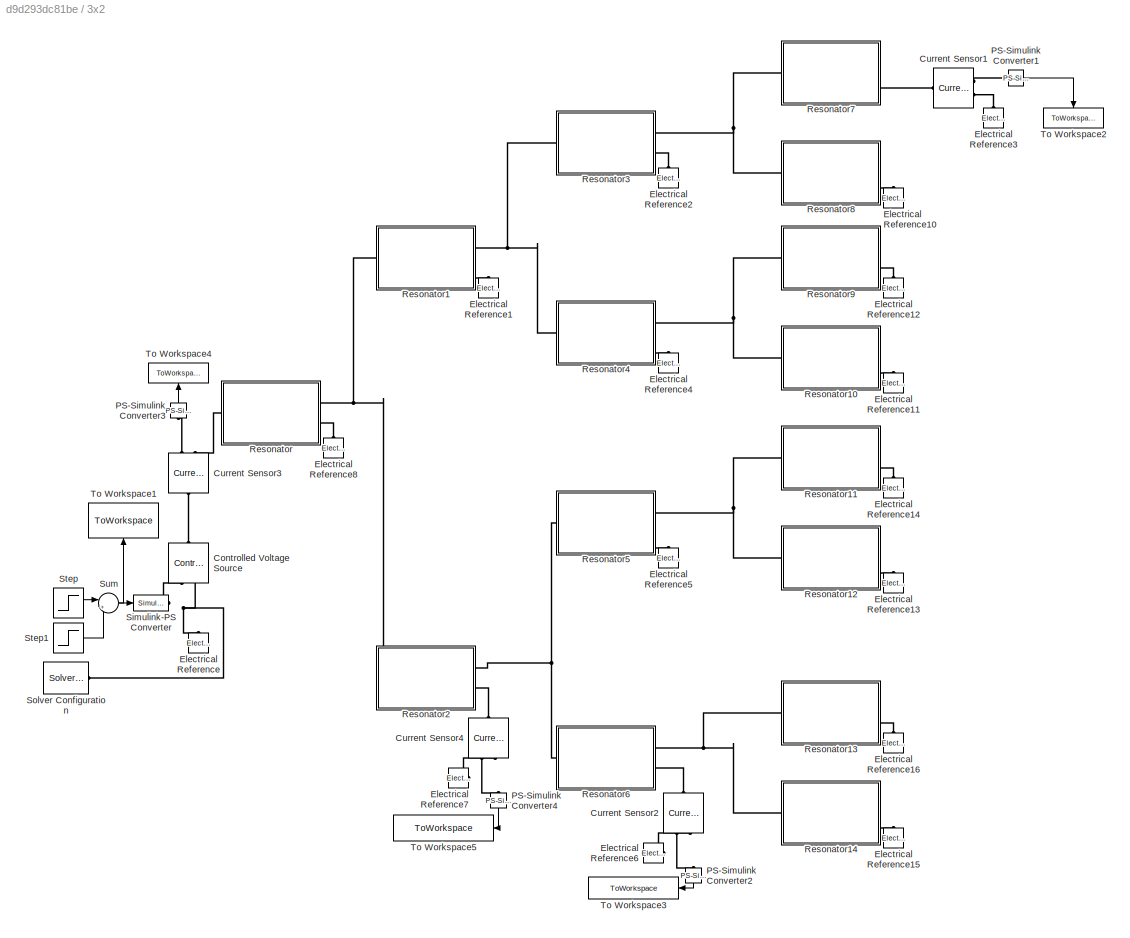
BLOCK [SubSystem] 3x2
  Ports = []
  RequestExecContextInheritance = off
BLOCK [Reference] 3x2/Controlled Voltage Source  REF=fl_lib/Electrical/Electrical Sources/Controlled Voltage
Source
  NameLocation = left
  Ports = [0, 0, 0, 0, 0, 1, 2]
  SourceBlock = fl_lib/Electrical/Electrical Sources/Controlled Voltage\nSource
  SourceProductBaseCode = SS
  SourceType = Controlled Voltage\nSource
BLOCK [Reference] 3x2/Current Sensor1  REF=fl_lib/Electrical/Electrical Sensors/Current Sensor
  Ports = [0, 0, 0, 0, 0, 1, 2]
  SourceBlock = fl_lib/Electrical/Electrical Sensors/Current Sensor
  SourceProductBaseCode = SS
  SourceType = Current Sensor
BLOCK [Reference] 3x2/Current Sensor2  REF=fl_lib/Electrical/Electrical Sensors/Current Sensor
  NameLocation = left
  Ports = [0, 0, 0, 0, 0, 1, 2]
  SourceBlock = fl_lib/Electrical/Electrical Sensors/Current Sensor
  SourceProductBaseCode = SS
  SourceType = Current Sensor
BLOCK [Reference] 3x2/Current Sensor3  REF=fl_lib/Electrical/Electrical Sensors/Current Sensor
  NameLocation = right
  Ports = [0, 0, 0, 0, 0, 1, 2]
  SourceBlock = fl_lib/Electrical/Electrical Sensors/Current Sensor
  SourceProductBaseCode = SS
  SourceType = Current Sensor
BLOCK [Reference] 3x2/Current Sensor4  REF=fl_lib/Electrical/Electrical Sensors/Current Sensor
  NameLocation = left
  Ports = [0, 0, 0, 0, 0, 1, 2]
  SourceBlock = fl_lib/Electrical/Electrical Sensors/Current Sensor
  SourceProductBaseCode = SS
  SourceType = Current Sensor
BLOCK [Reference] 3x2/Electrical Reference  REF=fl_lib/Electrical/Electrical Elements/Electrical Reference
  NameLocation = right
  Ports = [0, 0, 0, 0, 0, 1]
  SourceBlock = fl_lib/Electrical/Electrical Elements/Electrical Reference
  SourceProductBaseCode = SS
  SourceType = Electrical Reference
BLOCK [Reference] 3x2/Electrical Reference1  REF=fl_lib/Electrical/Electrical Elements/Electrical Reference
  NameLocation = right
  Ports = [0, 0, 0, 0, 0, 1]
  SourceBlock = fl_lib/Electrical/Electrical Elements/Electrical Reference
  SourceProductBaseCode = SS
  SourceType = Electrical Reference
BLOCK [Reference] 3x2/Electrical Reference10  REF=fl_lib/Electrical/Electrical Elements/Electrical Reference
  NameLocation = right
  Ports = [0, 0, 0, 0, 0, 1]
  SourceBlock = fl_lib/Electrical/Electrical Elements/Electrical Reference
  SourceProductBaseCode = SS
  SourceType = Electrical Reference
BLOCK [Reference] 3x2/Electrical Reference11  REF=fl_lib/Electrical/Electrical Elements/Electrical Reference
  NameLocation = right
  Ports = [0, 0, 0, 0, 0, 1]
  SourceBlock = fl_lib/Electrical/Electrical Elements/Electrical Reference
  SourceProductBaseCode = SS
  SourceType = Electrical Reference
BLOCK [Reference] 3x2/Electrical Reference12  REF=fl_lib/Electrical/Electrical Elements/Electrical Reference
  NameLocation = right
  Ports = [0, 0, 0, 0, 0, 1]
  SourceBlock = fl_lib/Electrical/Electrical Elements/Electrical Reference
  SourceProductBaseCode = SS
  SourceType = Electrical Reference
BLOCK [Reference] 3x2/Electrical Reference13  REF=fl_lib/Electrical/Electrical Elements/Electrical Reference
  NameLocation = right
  Ports = [0, 0, 0, 0, 0, 1]
  SourceBlock = fl_lib/Electrical/Electrical Elements/Electrical Reference
  SourceProductBaseCode = SS
  SourceType = Electrical Reference
BLOCK [Reference] 3x2/Electrical Reference14  REF=fl_lib/Electrical/Electrical Elements/Electrical Reference
  NameLocation = right
  Ports = [0, 0, 0, 0, 0, 1]
  SourceBlock = fl_lib/Electrical/Electrical Elements/Electrical Reference
  SourceProductBaseCode = SS
  SourceType = Electrical Reference
BLOCK [Reference] 3x2/Electrical Reference15  REF=fl_lib/Electrical/Electrical Elements/Electrical Reference
  NameLocation = right
  Ports = [0, 0, 0, 0, 0, 1]
  SourceBlock = fl_lib/Electrical/Electrical Elements/Electrical Reference
  SourceProductBaseCode = SS
  SourceType = Electrical Reference
BLOCK [Reference] 3x2/Electrical Reference16  REF=fl_lib/Electrical/Electrical Elements/Electrical Reference
  NameLocation = right
  Ports = [0, 0, 0, 0, 0, 1]
  SourceBlock = fl_lib/Electrical/Electrical Elements/Electrical Reference
  SourceProductBaseCode = SS
  SourceType = Electrical Reference
BLOCK [Reference] 3x2/Electrical Reference2  REF=fl_lib/Electrical/Electrical Elements/Electrical Reference
  NameLocation = right
  Ports = [0, 0, 0, 0, 0, 1]
  SourceBlock = fl_lib/Electrical/Electrical Elements/Electrical Reference
  SourceProductBaseCode = SS
  SourceType = Electrical Reference
BLOCK [Reference] 3x2/Electrical Reference3  REF=fl_lib/Electrical/Electrical Elements/Electrical Reference
  NameLocation = right
  Ports = [0, 0, 0, 0, 0, 1]
  SourceBlock = fl_lib/Electrical/Electrical Elements/Electrical Reference
  SourceProductBaseCode = SS
  SourceType = Electrical Reference
BLOCK [Reference] 3x2/Electrical Reference4  REF=fl_lib/Electrical/Electrical Elements/Electrical Reference
  NameLocation = right
  Ports = [0, 0, 0, 0, 0, 1]
  SourceBlock = fl_lib/Electrical/Electrical Elements/Electrical Reference
  SourceProductBaseCode = SS
  SourceType = Electrical Reference
BLOCK [Reference] 3x2/Electrical Reference5  REF=fl_lib/Electrical/Electrical Elements/Electrical Reference
  NameLocation = right
  Ports = [0, 0, 0, 0, 0, 1]
  SourceBlock = fl_lib/Electrical/Electrical Elements/Electrical Reference
  SourceProductBaseCode = SS
  SourceType = Electrical Reference
BLOCK [Reference] 3x2/Electrical Reference6  REF=fl_lib/Electrical/Electrical Elements/Electrical Reference
  Ports = [0, 0, 0, 0, 0, 1]
  SourceBlock = fl_lib/Electrical/Electrical Elements/Electrical Reference
  SourceProductBaseCode = SS
  SourceType = Electrical Reference
BLOCK [Reference] 3x2/Electrical Reference7  REF=fl_lib/Electrical/Electrical Elements/Electrical Reference
  Ports = [0, 0, 0, 0, 0, 1]
  SourceBlock = fl_lib/Electrical/Electrical Elements/Electrical Reference
  SourceProductBaseCode = SS
  SourceType = Electrical Reference
BLOCK [Reference] 3x2/Electrical Reference8  REF=fl_lib/Electrical/Electrical Elements/Electrical Reference
  NameLocation = right
  Ports = [0, 0, 0, 0, 0, 1]
  SourceBlock = fl_lib/Electrical/Electrical Elements/Electrical Reference
  SourceProductBaseCode = SS
  SourceType = Electrical Reference
BLOCK [Reference] 3x2/PS-Simulink Converter1  REF=nesl_utility/PS-Simulink
Converter
  Ports = [0, 1, 0, 0, 0, 1]
  SourceBlock = nesl_utility/PS-Simulink\nConverter
  SourceProductBaseCode = PW,SS
  SourceType = PS-Simulink\nConverter
BLOCK [Reference] 3x2/PS-Simulink Converter2  REF=nesl_utility/PS-Simulink
Converter
  NameLocation = left
  Ports = [0, 1, 0, 0, 0, 1]
  SourceBlock = nesl_utility/PS-Simulink\nConverter
  SourceProductBaseCode = PW,SS
  SourceType = PS-Simulink\nConverter
BLOCK [Reference] 3x2/PS-Simulink Converter3  REF=nesl_utility/PS-Simulink
Converter
  NameLocation = right
  Ports = [0, 1, 0, 0, 0, 1]
  SourceBlock = nesl_utility/PS-Simulink\nConverter
  SourceProductBaseCode = PW,SS
  SourceType = PS-Simulink\nConverter
BLOCK [Reference] 3x2/PS-Simulink Converter4  REF=nesl_utility/PS-Simulink
Converter
  NameLocation = left
  Ports = [0, 1, 0, 0, 0, 1]
  SourceBlock = nesl_utility/PS-Simulink\nConverter
  SourceProductBaseCode = PW,SS
  SourceType = PS-Simulink\nConverter
BLOCK [SubSystem] 3x2/Resonator
  Ports = [0, 0, 0, 0, 0, 1, 2]
  RequestExecContextInheritance = off
BLOCK [Reference] 3x2/Resonator/C  REF=fl_lib/Electrical/Electrical Elements/Capacitor
  NameLocation = left
  Ports = [0, 0, 0, 0, 0, 1, 1]
  SourceBlock = fl_lib/Electrical/Electrical Elements/Capacitor
  SourceProductBaseCode = SS
  SourceType = Capacitor
BLOCK [PMIOPort] 3x2/Resonator/Conn1
  Side = Left
BLOCK [PMIOPort] 3x2/Resonator/Conn2
  Port = 2
  Side = Right
BLOCK [PMIOPort] 3x2/Resonator/Conn3
  Port = 3
  Side = Right
BLOCK [Reference] 3x2/Resonator/L  REF=ee_lib/Passive/Inductor
  Ports = [0, 0, 0, 0, 0, 1, 1]
  SourceBlock = ee_lib/Passive/Inductor
  SourceProductBaseCode = PS
  SourceType = Inductor
BLOCK [Reference] 3x2/Resonator/R  REF=fl_lib/Electrical/Electrical Elements/Resistor
  Ports = [0, 0, 0, 0, 0, 1, 1]
  SourceBlock = fl_lib/Electrical/Electrical Elements/Resistor
  SourceProductBaseCode = SS
  SourceType = Resistor
BLOCK [SubSystem] 3x2/Resonator1
  Ports = [0, 0, 0, 0, 0, 1, 2]
  RequestExecContextInheritance = off
BLOCK [Reference] 3x2/Resonator1/C  REF=fl_lib/Electrical/Electrical Elements/Capacitor
  NameLocation = left
  Ports = [0, 0, 0, 0, 0, 1, 1]
  SourceBlock = fl_lib/Electrical/Electrical Elements/Capacitor
  SourceProductBaseCode = SS
  SourceType = Capacitor
BLOCK [PMIOPort] 3x2/Resonator1/Conn1
  Side = Left
BLOCK [PMIOPort] 3x2/Resonator1/Conn2
  Port = 2
  Side = Right
BLOCK [PMIOPort] 3x2/Resonator1/Conn3
  Port = 3
  Side = Right
BLOCK [Reference] 3x2/Resonator1/L  REF=ee_lib/Passive/Inductor
  Ports = [0, 0, 0, 0, 0, 1, 1]
  SourceBlock = ee_lib/Passive/Inductor
  SourceProductBaseCode = PS
  SourceType = Inductor
BLOCK [Reference] 3x2/Resonator1/R  REF=fl_lib/Electrical/Electrical Elements/Resistor
  Ports = [0, 0, 0, 0, 0, 1, 1]
  SourceBlock = fl_lib/Electrical/Electrical Elements/Resistor
  SourceProductBaseCode = SS
  SourceType = Resistor
BLOCK [SubSystem] 3x2/Resonator10
  Ports = [0, 0, 0, 0, 0, 1, 2]
  RequestExecContextInheritance = off
BLOCK [Reference] 3x2/Resonator10/C  REF=fl_lib/Electrical/Electrical Elements/Capacitor
  NameLocation = left
  Ports = [0, 0, 0, 0, 0, 1, 1]
  SourceBlock = fl_lib/Electrical/Electrical Elements/Capacitor
  SourceProductBaseCode = SS
  SourceType = Capacitor
BLOCK [PMIOPort] 3x2/Resonator10/Conn1
  Side = Left
BLOCK [PMIOPort] 3x2/Resonator10/Conn2
  Port = 2
  Side = Right
BLOCK [PMIOPort] 3x2/Resonator10/Conn3
  Port = 3
  Side = Right
BLOCK [Reference] 3x2/Resonator10/L  REF=ee_lib/Passive/Inductor
  Ports = [0, 0, 0, 0, 0, 1, 1]
  SourceBlock = ee_lib/Passive/Inductor
  SourceProductBaseCode = PS
  SourceType = Inductor
BLOCK [Reference] 3x2/Resonator10/R  REF=fl_lib/Electrical/Electrical Elements/Resistor
  Ports = [0, 0, 0, 0, 0, 1, 1]
  SourceBlock = fl_lib/Electrical/Electrical Elements/Resistor
  SourceProductBaseCode = SS
  SourceType = Resistor
BLOCK [SubSystem] 3x2/Resonator11
  Ports = [0, 0, 0, 0, 0, 1, 2]
  RequestExecContextInheritance = off
BLOCK [Reference] 3x2/Resonator11/C  REF=fl_lib/Electrical/Electrical Elements/Capacitor
  NameLocation = left
  Ports = [0, 0, 0, 0, 0, 1, 1]
  SourceBlock = fl_lib/Electrical/Electrical Elements/Capacitor
  SourceProductBaseCode = SS
  SourceType = Capacitor
BLOCK [PMIOPort] 3x2/Resonator11/Conn1
  Side = Left
BLOCK [PMIOPort] 3x2/Resonator11/Conn2
  Port = 2
  Side = Right
BLOCK [PMIOPort] 3x2/Resonator11/Conn3
  Port = 3
  Side = Right
BLOCK [Reference] 3x2/Resonator11/L  REF=ee_lib/Passive/Inductor
  Ports = [0, 0, 0, 0, 0, 1, 1]
  SourceBlock = ee_lib/Passive/Inductor
  SourceProductBaseCode = PS
  SourceType = Inductor
BLOCK [Reference] 3x2/Resonator11/R  REF=fl_lib/Electrical/Electrical Elements/Resistor
  Ports = [0, 0, 0, 0, 0, 1, 1]
  SourceBlock = fl_lib/Electrical/Electrical Elements/Resistor
  SourceProductBaseCode = SS
  SourceType = Resistor
BLOCK [SubSystem] 3x2/Resonator12
  Ports = [0, 0, 0, 0, 0, 1, 2]
  RequestExecContextInheritance = off
BLOCK [Reference] 3x2/Resonator12/C  REF=fl_lib/Electrical/Electrical Elements/Capacitor
  NameLocation = left
  Ports = [0, 0, 0, 0, 0, 1, 1]
  SourceBlock = fl_lib/Electrical/Electrical Elements/Capacitor
  SourceProductBaseCode = SS
  SourceType = Capacitor
BLOCK [PMIOPort] 3x2/Resonator12/Conn1
  Side = Left
BLOCK [PMIOPort] 3x2/Resonator12/Conn2
  Port = 2
  Side = Right
BLOCK [PMIOPort] 3x2/Resonator12/Conn3
  Port = 3
  Side = Right
BLOCK [Reference] 3x2/Resonator12/L  REF=ee_lib/Passive/Inductor
  Ports = [0, 0, 0, 0, 0, 1, 1]
  SourceBlock = ee_lib/Passive/Inductor
  SourceProductBaseCode = PS
  SourceType = Inductor
BLOCK [Reference] 3x2/Resonator12/R  REF=fl_lib/Electrical/Electrical Elements/Resistor
  Ports = [0, 0, 0, 0, 0, 1, 1]
  SourceBlock = fl_lib/Electrical/Electrical Elements/Resistor
  SourceProductBaseCode = SS
  SourceType = Resistor
BLOCK [SubSystem] 3x2/Resonator13
  Ports = [0, 0, 0, 0, 0, 1, 2]
  RequestExecContextInheritance = off
BLOCK [Reference] 3x2/Resonator13/C  REF=fl_lib/Electrical/Electrical Elements/Capacitor
  NameLocation = left
  Ports = [0, 0, 0, 0, 0, 1, 1]
  SourceBlock = fl_lib/Electrical/Electrical Elements/Capacitor
  SourceProductBaseCode = SS
  SourceType = Capacitor
BLOCK [PMIOPort] 3x2/Resonator13/Conn1
  Side = Left
BLOCK [PMIOPort] 3x2/Resonator13/Conn2
  Port = 2
  Side = Right
BLOCK [PMIOPort] 3x2/Resonator13/Conn3
  Port = 3
  Side = Right
BLOCK [Reference] 3x2/Resonator13/L  REF=ee_lib/Passive/Inductor
  Ports = [0, 0, 0, 0, 0, 1, 1]
  SourceBlock = ee_lib/Passive/Inductor
  SourceProductBaseCode = PS
  SourceType = Inductor
BLOCK [Reference] 3x2/Resonator13/R  REF=fl_lib/Electrical/Electrical Elements/Resistor
  Ports = [0, 0, 0, 0, 0, 1, 1]
  SourceBlock = fl_lib/Electrical/Electrical Elements/Resistor
  SourceProductBaseCode = SS
  SourceType = Resistor
BLOCK [SubSystem] 3x2/Resonator14
  Ports = [0, 0, 0, 0, 0, 1, 2]
  RequestExecContextInheritance = off
BLOCK [Reference] 3x2/Resonator14/C  REF=fl_lib/Electrical/Electrical Elements/Capacitor
  NameLocation = left
  Ports = [0, 0, 0, 0, 0, 1, 1]
  SourceBlock = fl_lib/Electrical/Electrical Elements/Capacitor
  SourceProductBaseCode = SS
  SourceType = Capacitor
BLOCK [PMIOPort] 3x2/Resonator14/Conn1
  Side = Left
BLOCK [PMIOPort] 3x2/Resonator14/Conn2
  Port = 2
  Side = Right
BLOCK [PMIOPort] 3x2/Resonator14/Conn3
  Port = 3
  Side = Right
BLOCK [Reference] 3x2/Resonator14/L  REF=ee_lib/Passive/Inductor
  Ports = [0, 0, 0, 0, 0, 1, 1]
  SourceBlock = ee_lib/Passive/Inductor
  SourceProductBaseCode = PS
  SourceType = Inductor
BLOCK [Reference] 3x2/Resonator14/R  REF=fl_lib/Electrical/Electrical Elements/Resistor
  Ports = [0, 0, 0, 0, 0, 1, 1]
  SourceBlock = fl_lib/Electrical/Electrical Elements/Resistor
  SourceProductBaseCode = SS
  SourceType = Resistor
BLOCK [SubSystem] 3x2/Resonator2
  Ports = [0, 0, 0, 0, 0, 1, 2]
  RequestExecContextInheritance = off
BLOCK [Reference] 3x2/Resonator2/C  REF=fl_lib/Electrical/Electrical Elements/Capacitor
  NameLocation = left
  Ports = [0, 0, 0, 0, 0, 1, 1]
  SourceBlock = fl_lib/Electrical/Electrical Elements/Capacitor
  SourceProductBaseCode = SS
  SourceType = Capacitor
BLOCK [PMIOPort] 3x2/Resonator2/Conn1
  Side = Left
BLOCK [PMIOPort] 3x2/Resonator2/Conn2
  Port = 2
  Side = Right
BLOCK [PMIOPort] 3x2/Resonator2/Conn3
  Port = 3
  Side = Right
BLOCK [Reference] 3x2/Resonator2/L  REF=ee_lib/Passive/Inductor
  Ports = [0, 0, 0, 0, 0, 1, 1]
  SourceBlock = ee_lib/Passive/Inductor
  SourceProductBaseCode = PS
  SourceType = Inductor
BLOCK [Reference] 3x2/Resonator2/R  REF=fl_lib/Electrical/Electrical Elements/Resistor
  Ports = [0, 0, 0, 0, 0, 1, 1]
  SourceBlock = fl_lib/Electrical/Electrical Elements/Resistor
  SourceProductBaseCode = SS
  SourceType = Resistor
BLOCK [SubSystem] 3x2/Resonator3
  Ports = [0, 0, 0, 0, 0, 1, 2]
  RequestExecContextInheritance = off
BLOCK [Reference] 3x2/Resonator3/C  REF=fl_lib/Electrical/Electrical Elements/Capacitor
  NameLocation = left
  Ports = [0, 0, 0, 0, 0, 1, 1]
  SourceBlock = fl_lib/Electrical/Electrical Elements/Capacitor
  SourceProductBaseCode = SS
  SourceType = Capacitor
BLOCK [PMIOPort] 3x2/Resonator3/Conn1
  Side = Left
BLOCK [PMIOPort] 3x2/Resonator3/Conn2
  Port = 2
  Side = Right
BLOCK [PMIOPort] 3x2/Resonator3/Conn3
  Port = 3
  Side = Right
BLOCK [Reference] 3x2/Resonator3/L  REF=ee_lib/Passive/Inductor
  Ports = [0, 0, 0, 0, 0, 1, 1]
  SourceBlock = ee_lib/Passive/Inductor
  SourceProductBaseCode = PS
  SourceType = Inductor
BLOCK [Reference] 3x2/Resonator3/R  REF=fl_lib/Electrical/Electrical Elements/Resistor
  Ports = [0, 0, 0, 0, 0, 1, 1]
  SourceBlock = fl_lib/Electrical/Electrical Elements/Resistor
  SourceProductBaseCode = SS
  SourceType = Resistor
BLOCK [SubSystem] 3x2/Resonator4
  Ports = [0, 0, 0, 0, 0, 1, 2]
  RequestExecContextInheritance = off
BLOCK [Reference] 3x2/Resonator4/C  REF=fl_lib/Electrical/Electrical Elements/Capacitor
  NameLocation = left
  Ports = [0, 0, 0, 0, 0, 1, 1]
  SourceBlock = fl_lib/Electrical/Electrical Elements/Capacitor
  SourceProductBaseCode = SS
  SourceType = Capacitor
BLOCK [PMIOPort] 3x2/Resonator4/Conn1
  Side = Left
BLOCK [PMIOPort] 3x2/Resonator4/Conn2
  Port = 2
  Side = Right
BLOCK [PMIOPort] 3x2/Resonator4/Conn3
  Port = 3
  Side = Right
BLOCK [Reference] 3x2/Resonator4/L  REF=ee_lib/Passive/Inductor
  Ports = [0, 0, 0, 0, 0, 1, 1]
  SourceBlock = ee_lib/Passive/Inductor
  SourceProductBaseCode = PS
  SourceType = Inductor
BLOCK [Reference] 3x2/Resonator4/R  REF=fl_lib/Electrical/Electrical Elements/Resistor
  Ports = [0, 0, 0, 0, 0, 1, 1]
  SourceBlock = fl_lib/Electrical/Electrical Elements/Resistor
  SourceProductBaseCode = SS
  SourceType = Resistor
BLOCK [SubSystem] 3x2/Resonator5
  Ports = [0, 0, 0, 0, 0, 1, 2]
  RequestExecContextInheritance = off
BLOCK [Reference] 3x2/Resonator5/C  REF=fl_lib/Electrical/Electrical Elements/Capacitor
  NameLocation = left
  Ports = [0, 0, 0, 0, 0, 1, 1]
  SourceBlock = fl_lib/Electrical/Electrical Elements/Capacitor
  SourceProductBaseCode = SS
  SourceType = Capacitor
BLOCK [PMIOPort] 3x2/Resonator5/Conn1
  Side = Left
BLOCK [PMIOPort] 3x2/Resonator5/Conn2
  Port = 2
  Side = Right
BLOCK [PMIOPort] 3x2/Resonator5/Conn3
  Port = 3
  Side = Right
BLOCK [Reference] 3x2/Resonator5/L  REF=ee_lib/Passive/Inductor
  Ports = [0, 0, 0, 0, 0, 1, 1]
  SourceBlock = ee_lib/Passive/Inductor
  SourceProductBaseCode = PS
  SourceType = Inductor
BLOCK [Reference] 3x2/Resonator5/R  REF=fl_lib/Electrical/Electrical Elements/Resistor
  Ports = [0, 0, 0, 0, 0, 1, 1]
  SourceBlock = fl_lib/Electrical/Electrical Elements/Resistor
  SourceProductBaseCode = SS
  SourceType = Resistor
BLOCK [SubSystem] 3x2/Resonator6
  Ports = [0, 0, 0, 0, 0, 1, 2]
  RequestExecContextInheritance = off
BLOCK [Reference] 3x2/Resonator6/C  REF=fl_lib/Electrical/Electrical Elements/Capacitor
  NameLocation = left
  Ports = [0, 0, 0, 0, 0, 1, 1]
  SourceBlock = fl_lib/Electrical/Electrical Elements/Capacitor
  SourceProductBaseCode = SS
  SourceType = Capacitor
BLOCK [PMIOPort] 3x2/Resonator6/Conn1
  Side = Left
BLOCK [PMIOPort] 3x2/Resonator6/Conn2
  Port = 2
  Side = Right
BLOCK [PMIOPort] 3x2/Resonator6/Conn3
  Port = 3
  Side = Right
BLOCK [Reference] 3x2/Resonator6/L  REF=ee_lib/Passive/Inductor
  Ports = [0, 0, 0, 0, 0, 1, 1]
  SourceBlock = ee_lib/Passive/Inductor
  SourceProductBaseCode = PS
  SourceType = Inductor
BLOCK [Reference] 3x2/Resonator6/R  REF=fl_lib/Electrical/Electrical Elements/Resistor
  Ports = [0, 0, 0, 0, 0, 1, 1]
  SourceBlock = fl_lib/Electrical/Electrical Elements/Resistor
  SourceProductBaseCode = SS
  SourceType = Resistor
BLOCK [SubSystem] 3x2/Resonator7
  Ports = [0, 0, 0, 0, 0, 1, 2]
  RequestExecContextInheritance = off
BLOCK [Reference] 3x2/Resonator7/C  REF=fl_lib/Electrical/Electrical Elements/Capacitor
  NameLocation = left
  Ports = [0, 0, 0, 0, 0, 1, 1]
  SourceBlock = fl_lib/Electrical/Electrical Elements/Capacitor
  SourceProductBaseCode = SS
  SourceType = Capacitor
BLOCK [PMIOPort] 3x2/Resonator7/Conn1
  Side = Left
BLOCK [PMIOPort] 3x2/Resonator7/Conn2
  Port = 2
  Side = Right
BLOCK [PMIOPort] 3x2/Resonator7/Conn3
  Port = 3
  Side = Right
BLOCK [Reference] 3x2/Resonator7/L  REF=ee_lib/Passive/Inductor
  Ports = [0, 0, 0, 0, 0, 1, 1]
  SourceBlock = ee_lib/Passive/Inductor
  SourceProductBaseCode = PS
  SourceType = Inductor
BLOCK [Reference] 3x2/Resonator7/R  REF=fl_lib/Electrical/Electrical Elements/Resistor
  Ports = [0, 0, 0, 0, 0, 1, 1]
  SourceBlock = fl_lib/Electrical/Electrical Elements/Resistor
  SourceProductBaseCode = SS
  SourceType = Resistor
BLOCK [SubSystem] 3x2/Resonator8
  Ports = [0, 0, 0, 0, 0, 1, 2]
  RequestExecContextInheritance = off
BLOCK [Reference] 3x2/Resonator8/C  REF=fl_lib/Electrical/Electrical Elements/Capacitor
  NameLocation = left
  Ports = [0, 0, 0, 0, 0, 1, 1]
  SourceBlock = fl_lib/Electrical/Electrical Elements/Capacitor
  SourceProductBaseCode = SS
  SourceType = Capacitor
BLOCK [PMIOPort] 3x2/Resonator8/Conn1
  Side = Left
BLOCK [PMIOPort] 3x2/Resonator8/Conn2
  Port = 2
  Side = Right
BLOCK [PMIOPort] 3x2/Resonator8/Conn3
  Port = 3
  Side = Right
BLOCK [Reference] 3x2/Resonator8/L  REF=ee_lib/Passive/Inductor
  Ports = [0, 0, 0, 0, 0, 1, 1]
  SourceBlock = ee_lib/Passive/Inductor
  SourceProductBaseCode = PS
  SourceType = Inductor
BLOCK [Reference] 3x2/Resonator8/R  REF=fl_lib/Electrical/Electrical Elements/Resistor
  Ports = [0, 0, 0, 0, 0, 1, 1]
  SourceBlock = fl_lib/Electrical/Electrical Elements/Resistor
  SourceProductBaseCode = SS
  SourceType = Resistor
BLOCK [SubSystem] 3x2/Resonator9
  Ports = [0, 0, 0, 0, 0, 1, 2]
  RequestExecContextInheritance = off
BLOCK [Reference] 3x2/Resonator9/C  REF=fl_lib/Electrical/Electrical Elements/Capacitor
  NameLocation = left
  Ports = [0, 0, 0, 0, 0, 1, 1]
  SourceBlock = fl_lib/Electrical/Electrical Elements/Capacitor
  SourceProductBaseCode = SS
  SourceType = Capacitor
BLOCK [PMIOPort] 3x2/Resonator9/Conn1
  Side = Left
BLOCK [PMIOPort] 3x2/Resonator9/Conn2
  Port = 2
  Side = Right
BLOCK [PMIOPort] 3x2/Resonator9/Conn3
  Port = 3
  Side = Right
BLOCK [Reference] 3x2/Resonator9/L  REF=ee_lib/Passive/Inductor
  Ports = [0, 0, 0, 0, 0, 1, 1]
  SourceBlock = ee_lib/Passive/Inductor
  SourceProductBaseCode = PS
  SourceType = Inductor
BLOCK [Reference] 3x2/Resonator9/R  REF=fl_lib/Electrical/Electrical Elements/Resistor
  Ports = [0, 0, 0, 0, 0, 1, 1]
  SourceBlock = fl_lib/Electrical/Electrical Elements/Resistor
  SourceProductBaseCode = SS
  SourceType = Resistor
BLOCK [Reference] 3x2/Simulink-PS Converter  REF=nesl_utility/Simulink-PS
Converter
  Ports = [1, 0, 0, 0, 0, 0, 1]
  SourceBlock = nesl_utility/Simulink-PS\nConverter
  SourceProductBaseCode = PW,SS
  SourceType = Simulink-PS\nConverter
BLOCK [Reference] 3x2/Solver Configuration  REF=nesl_utility/Solver
Configuration
  Ports = [0, 0, 0, 0, 0, 0, 1]
  SourceBlock = nesl_utility/Solver\nConfiguration
  SourceProductBaseCode = PW,SS
  SourceType = Solver\nConfiguration
BLOCK [Step] 3x2/Step
  SampleTime = 0
  Time = 1/Fs
BLOCK [Step] 3x2/Step1
  SampleTime = 0
  Time = 2/Fs
BLOCK [Sum] 3x2/Sum
  Inputs = |+-
  Ports = [2, 1]
BLOCK [ToWorkspace] 3x2/To Workspace1
  FixptAsFi = on
  MaxDataPoints = inf
  NameLocation = right
  Ports = [1]
  SampleTime = -1
  SaveFormat = Timeseries
  VariableName = in3x2
BLOCK [ToWorkspace] 3x2/To Workspace2
  FixptAsFi = on
  MaxDataPoints = inf
  NameLocation = left
  Ports = [1]
  SampleTime = -1
  SaveFormat = Timeseries
  VariableName = out3x2_3
BLOCK [ToWorkspace] 3x2/To Workspace3
  FixptAsFi = on
  MaxDataPoints = inf
  NameLocation = top
  Ports = [1]
  SampleTime = -1
  SaveFormat = Timeseries
  VariableName = out3x2_2
BLOCK [ToWorkspace] 3x2/To Workspace4
  FixptAsFi = on
  MaxDataPoints = inf
  NameLocation = right
  Ports = [1]
  SampleTime = -1
  SaveFormat = Timeseries
  VariableName = out3x2_0
BLOCK [ToWorkspace] 3x2/To Workspace5
  FixptAsFi = on
  MaxDataPoints = inf
  NameLocation = top
  Ports = [1]
  SampleTime = -1
  SaveFormat = Timeseries
  VariableName = out3x2_1
BLOCK [SubSystem] 3x2i
  Ports = []
  RequestExecContextInheritance = off
BLOCK [Reference] 3x2i/Controlled Voltage Source  REF=fl_lib/Electrical/Electrical Sources/Controlled Voltage
Source
  NameLocation = left
  Ports = [0, 0, 0, 0, 0, 1, 2]
  SourceBlock = fl_lib/Electrical/Electrical Sources/Controlled Voltage\nSource
  SourceProductBaseCode = SS
  SourceType = Controlled Voltage\nSource
BLOCK [Reference] 3x2i/Current Sensor1  REF=fl_lib/Electrical/Electrical Sensors/Current Sensor
  NameLocation = left
  Ports = [0, 0, 0, 0, 0, 1, 2]
  SourceBlock = fl_lib/Electrical/Electrical Sensors/Current Sensor
  SourceProductBaseCode = SS
  SourceType = Current Sensor
BLOCK [Reference] 3x2i/Current Sensor2  REF=fl_lib/Electrical/Electrical Sensors/Current Sensor
  NameLocation = left
  Ports = [0, 0, 0, 0, 0, 1, 2]
  SourceBlock = fl_lib/Electrical/Electrical Sensors/Current Sensor
  SourceProductBaseCode = SS
  SourceType = Current Sensor
BLOCK [Reference] 3x2i/Current Sensor3  REF=fl_lib/Electrical/Electrical Sensors/Current Sensor
  NameLocation = left
  Ports = [0, 0, 0, 0, 0, 1, 2]
  SourceBlock = fl_lib/Electrical/Electrical Sensors/Current Sensor
  SourceProductBaseCode = SS
  SourceType = Current Sensor
BLOCK [Reference] 3x2i/Current Sensor4  REF=fl_lib/Electrical/Electrical Sensors/Current Sensor
  NameLocation = left
  Ports = [0, 0, 0, 0, 0, 1, 2]
  SourceBlock = fl_lib/Electrical/Electrical Sensors/Current Sensor
  SourceProductBaseCode = SS
  SourceType = Current Sensor
BLOCK [Reference] 3x2i/Current Sensor5  REF=fl_lib/Electrical/Electrical Sensors/Current Sensor
  NameLocation = left
  Ports = [0, 0, 0, 0, 0, 1, 2]
  SourceBlock = fl_lib/Electrical/Electrical Sensors/Current Sensor
  SourceProductBaseCode = SS
  SourceType = Current Sensor
BLOCK [Reference] 3x2i/Current Sensor6  REF=fl_lib/Electrical/Electrical Sensors/Current Sensor
  NameLocation = left
  Ports = [0, 0, 0, 0, 0, 1, 2]
  SourceBlock = fl_lib/Electrical/Electrical Sensors/Current Sensor
  SourceProductBaseCode = SS
  SourceType = Current Sensor
BLOCK [Reference] 3x2i/Electrical Reference  REF=fl_lib/Electrical/Electrical Elements/Electrical Reference
  NameLocation = right
  Ports = [0, 0, 0, 0, 0, 1]
  SourceBlock = fl_lib/Electrical/Electrical Elements/Electrical Reference
  SourceProductBaseCode = SS
  SourceType = Electrical Reference
BLOCK [Reference] 3x2i/Electrical Reference1  REF=fl_lib/Electrical/Electrical Elements/Electrical Reference
  Ports = [0, 0, 0, 0, 0, 1]
  SourceBlock = fl_lib/Electrical/Electrical Elements/Electrical Reference
  SourceProductBaseCode = SS
  SourceType = Electrical Reference
BLOCK [Reference] 3x2i/Electrical Reference16  REF=fl_lib/Electrical/Electrical Elements/Electrical Reference
  NameLocation = right
  Ports = [0, 0, 0, 0, 0, 1]
  SourceBlock = fl_lib/Electrical/Electrical Elements/Electrical Reference
  SourceProductBaseCode = SS
  SourceType = Electrical Reference
BLOCK [Reference] 3x2i/Electrical Reference2  REF=fl_lib/Electrical/Electrical Elements/Electrical Reference
  Ports = [0, 0, 0, 0, 0, 1]
  SourceBlock = fl_lib/Electrical/Electrical Elements/Electrical Reference
  SourceProductBaseCode = SS
  SourceType = Electrical Reference
BLOCK [Reference] 3x2i/Electrical Reference3  REF=fl_lib/Electrical/Electrical Elements/Electrical Reference
  Ports = [0, 0, 0, 0, 0, 1]
  SourceBlock = fl_lib/Electrical/Electrical Elements/Electrical Reference
  SourceProductBaseCode = SS
  SourceType = Electrical Reference
BLOCK [Reference] 3x2i/Electrical Reference4  REF=fl_lib/Electrical/Electrical Elements/Electrical Reference
  Ports = [0, 0, 0, 0, 0, 1]
  SourceBlock = fl_lib/Electrical/Electrical Elements/Electrical Reference
  SourceProductBaseCode = SS
  SourceType = Electrical Reference
BLOCK [Reference] 3x2i/Electrical Reference6  REF=fl_lib/Electrical/Electrical Elements/Electrical Reference
  Ports = [0, 0, 0, 0, 0, 1]
  SourceBlock = fl_lib/Electrical/Electrical Elements/Electrical Reference
  SourceProductBaseCode = SS
  SourceType = Electrical Reference
BLOCK [Reference] 3x2i/Electrical Reference7  REF=fl_lib/Electrical/Electrical Elements/Electrical Reference
  Ports = [0, 0, 0, 0, 0, 1]
  SourceBlock = fl_lib/Electrical/Electrical Elements/Electrical Reference
  SourceProductBaseCode = SS
  SourceType = Electrical Reference
BLOCK [Reference] 3x2i/PS-Simulink Converter1  REF=nesl_utility/PS-Simulink
Converter
  NameLocation = left
  Ports = [0, 1, 0, 0, 0, 1]
  SourceBlock = nesl_utility/PS-Simulink\nConverter
  SourceProductBaseCode = PW,SS
  SourceType = PS-Simulink\nConverter
BLOCK [Reference] 3x2i/PS-Simulink Converter2  REF=nesl_utility/PS-Simulink
Converter
  NameLocation = left
  Ports = [0, 1, 0, 0, 0, 1]
  SourceBlock = nesl_utility/PS-Simulink\nConverter
  SourceProductBaseCode = PW,SS
  SourceType = PS-Simulink\nConverter
BLOCK [Reference] 3x2i/PS-Simulink Converter3  REF=nesl_utility/PS-Simulink
Converter
  NameLocation = left
  Ports = [0, 1, 0, 0, 0, 1]
  SourceBlock = nesl_utility/PS-Simulink\nConverter
  SourceProductBaseCode = PW,SS
  SourceType = PS-Simulink\nConverter
BLOCK [Reference] 3x2i/PS-Simulink Converter4  REF=nesl_utility/PS-Simulink
Converter
  NameLocation = left
  Ports = [0, 1, 0, 0, 0, 1]
  SourceBlock = nesl_utility/PS-Simulink\nConverter
  SourceProductBaseCode = PW,SS
  SourceType = PS-Simulink\nConverter
BLOCK [Reference] 3x2i/PS-Simulink Converter5  REF=nesl_utility/PS-Simulink
Converter
  NameLocation = left
  Ports = [0, 1, 0, 0, 0, 1]
  SourceBlock = nesl_utility/PS-Simulink\nConverter
  SourceProductBaseCode = PW,SS
  SourceType = PS-Simulink\nConverter
BLOCK [Reference] 3x2i/PS-Simulink Converter6  REF=nesl_utility/PS-Simulink
Converter
  NameLocation = left
  Ports = [0, 1, 0, 0, 0, 1]
  SourceBlock = nesl_utility/PS-Simulink\nConverter
  SourceProductBaseCode = PW,SS
  SourceType = PS-Simulink\nConverter
BLOCK [SubSystem] 3x2i/Resonator
  Ports = [0, 0, 0, 0, 0, 1, 2]
  RequestExecContextInheritance = off
BLOCK [Reference] 3x2i/Resonator/C  REF=fl_lib/Electrical/Electrical Elements/Capacitor
  NameLocation = left
  Ports = [0, 0, 0, 0, 0, 1, 1]
  SourceBlock = fl_lib/Electrical/Electrical Elements/Capacitor
  SourceProductBaseCode = SS
  SourceType = Capacitor
BLOCK [PMIOPort] 3x2i/Resonator/Conn1
  Side = Left
BLOCK [PMIOPort] 3x2i/Resonator/Conn2
  Port = 2
  Side = Right
BLOCK [PMIOPort] 3x2i/Resonator/Conn3
  Port = 3
  Side = Right
BLOCK [Reference] 3x2i/Resonator/L  REF=ee_lib/Passive/Inductor
  Ports = [0, 0, 0, 0, 0, 1, 1]
  SourceBlock = ee_lib/Passive/Inductor
  SourceProductBaseCode = PS
  SourceType = Inductor
BLOCK [Reference] 3x2i/Resonator/R  REF=fl_lib/Electrical/Electrical Elements/Resistor
  Ports = [0, 0, 0, 0, 0, 1, 1]
  SourceBlock = fl_lib/Electrical/Electrical Elements/Resistor
  SourceProductBaseCode = SS
  SourceType = Resistor
BLOCK [SubSystem] 3x2i/Resonator1
  Ports = [0, 0, 0, 0, 0, 1, 2]
  RequestExecContextInheritance = off
BLOCK [Reference] 3x2i/Resonator1/C  REF=fl_lib/Electrical/Electrical Elements/Capacitor
  NameLocation = left
  Ports = [0, 0, 0, 0, 0, 1, 1]
  SourceBlock = fl_lib/Electrical/Electrical Elements/Capacitor
  SourceProductBaseCode = SS
  SourceType = Capacitor
BLOCK [PMIOPort] 3x2i/Resonator1/Conn1
  Side = Left
BLOCK [PMIOPort] 3x2i/Resonator1/Conn2
  Port = 2
  Side = Right
BLOCK [PMIOPort] 3x2i/Resonator1/Conn3
  Port = 3
  Side = Right
BLOCK [Reference] 3x2i/Resonator1/L  REF=ee_lib/Passive/Inductor
  Ports = [0, 0, 0, 0, 0, 1, 1]
  SourceBlock = ee_lib/Passive/Inductor
  SourceProductBaseCode = PS
  SourceType = Inductor
BLOCK [Reference] 3x2i/Resonator1/R  REF=fl_lib/Electrical/Electrical Elements/Resistor
  Ports = [0, 0, 0, 0, 0, 1, 1]
  SourceBlock = fl_lib/Electrical/Electrical Elements/Resistor
  SourceProductBaseCode = SS
  SourceType = Resistor
BLOCK [SubSystem] 3x2i/Resonator13
  Ports = [0, 0, 0, 0, 0, 1, 2]
  RequestExecContextInheritance = off
BLOCK [Reference] 3x2i/Resonator13/C  REF=fl_lib/Electrical/Electrical Elements/Capacitor
  NameLocation = left
  Ports = [0, 0, 0, 0, 0, 1, 1]
  SourceBlock = fl_lib/Electrical/Electrical Elements/Capacitor
  SourceProductBaseCode = SS
  SourceType = Capacitor
BLOCK [PMIOPort] 3x2i/Resonator13/Conn1
  Side = Left
BLOCK [PMIOPort] 3x2i/Resonator13/Conn2
  Port = 2
  Side = Right
BLOCK [PMIOPort] 3x2i/Resonator13/Conn3
  Port = 3
  Side = Right
BLOCK [Reference] 3x2i/Resonator13/L  REF=ee_lib/Passive/Inductor
  Ports = [0, 0, 0, 0, 0, 1, 1]
  SourceBlock = ee_lib/Passive/Inductor
  SourceProductBaseCode = PS
  SourceType = Inductor
BLOCK [Reference] 3x2i/Resonator13/R  REF=fl_lib/Electrical/Electrical Elements/Resistor
  Ports = [0, 0, 0, 0, 0, 1, 1]
  SourceBlock = fl_lib/Electrical/Electrical Elements/Resistor
  SourceProductBaseCode = SS
  SourceType = Resistor
BLOCK [SubSystem] 3x2i/Resonator14
  Ports = [0, 0, 0, 0, 0, 1, 2]
  RequestExecContextInheritance = off
BLOCK [Reference] 3x2i/Resonator14/C  REF=fl_lib/Electrical/Electrical Elements/Capacitor
  NameLocation = left
  Ports = [0, 0, 0, 0, 0, 1, 1]
  SourceBlock = fl_lib/Electrical/Electrical Elements/Capacitor
  SourceProductBaseCode = SS
  SourceType = Capacitor
BLOCK [PMIOPort] 3x2i/Resonator14/Conn1
  Side = Left
BLOCK [PMIOPort] 3x2i/Resonator14/Conn2
  Port = 2
  Side = Right
BLOCK [PMIOPort] 3x2i/Resonator14/Conn3
  Port = 3
  Side = Right
BLOCK [Reference] 3x2i/Resonator14/L  REF=ee_lib/Passive/Inductor
  Ports = [0, 0, 0, 0, 0, 1, 1]
  SourceBlock = ee_lib/Passive/Inductor
  SourceProductBaseCode = PS
  SourceType = Inductor
BLOCK [Reference] 3x2i/Resonator14/R  REF=fl_lib/Electrical/Electrical Elements/Resistor
  Ports = [0, 0, 0, 0, 0, 1, 1]
  SourceBlock = fl_lib/Electrical/Electrical Elements/Resistor
  SourceProductBaseCode = SS
  SourceType = Resistor
BLOCK [SubSystem] 3x2i/Resonator2
  Ports = [0, 0, 0, 0, 0, 1, 2]
  RequestExecContextInheritance = off
BLOCK [Reference] 3x2i/Resonator2/C  REF=fl_lib/Electrical/Electrical Elements/Capacitor
  NameLocation = left
  Ports = [0, 0, 0, 0, 0, 1, 1]
  SourceBlock = fl_lib/Electrical/Electrical Elements/Capacitor
  SourceProductBaseCode = SS
  SourceType = Capacitor
BLOCK [PMIOPort] 3x2i/Resonator2/Conn1
  Side = Left
BLOCK [PMIOPort] 3x2i/Resonator2/Conn2
  Port = 2
  Side = Right
BLOCK [PMIOPort] 3x2i/Resonator2/Conn3
  Port = 3
  Side = Right
BLOCK [Reference] 3x2i/Resonator2/L  REF=ee_lib/Passive/Inductor
  Ports = [0, 0, 0, 0, 0, 1, 1]
  SourceBlock = ee_lib/Passive/Inductor
  SourceProductBaseCode = PS
  SourceType = Inductor
BLOCK [Reference] 3x2i/Resonator2/R  REF=fl_lib/Electrical/Electrical Elements/Resistor
  Ports = [0, 0, 0, 0, 0, 1, 1]
  SourceBlock = fl_lib/Electrical/Electrical Elements/Resistor
  SourceProductBaseCode = SS
  SourceType = Resistor
BLOCK [SubSystem] 3x2i/Resonator5
  Ports = [0, 0, 0, 0, 0, 1, 2]
  RequestExecContextInheritance = off
BLOCK [Reference] 3x2i/Resonator5/C  REF=fl_lib/Electrical/Electrical Elements/Capacitor
  NameLocation = left
  Ports = [0, 0, 0, 0, 0, 1, 1]
  SourceBlock = fl_lib/Electrical/Electrical Elements/Capacitor
  SourceProductBaseCode = SS
  SourceType = Capacitor
BLOCK [PMIOPort] 3x2i/Resonator5/Conn1
  Side = Left
BLOCK [PMIOPort] 3x2i/Resonator5/Conn2
  Port = 2
  Side = Right
BLOCK [PMIOPort] 3x2i/Resonator5/Conn3
  Port = 3
  Side = Right
BLOCK [Reference] 3x2i/Resonator5/L  REF=ee_lib/Passive/Inductor
  Ports = [0, 0, 0, 0, 0, 1, 1]
  SourceBlock = ee_lib/Passive/Inductor
  SourceProductBaseCode = PS
  SourceType = Inductor
BLOCK [Reference] 3x2i/Resonator5/R  REF=fl_lib/Electrical/Electrical Elements/Resistor
  Ports = [0, 0, 0, 0, 0, 1, 1]
  SourceBlock = fl_lib/Electrical/Electrical Elements/Resistor
  SourceProductBaseCode = SS
  SourceType = Resistor
BLOCK [SubSystem] 3x2i/Resonator6
  Ports = [0, 0, 0, 0, 0, 1, 2]
  RequestExecContextInheritance = off
BLOCK [Reference] 3x2i/Resonator6/C  REF=fl_lib/Electrical/Electrical Elements/Capacitor
  NameLocation = left
  Ports = [0, 0, 0, 0, 0, 1, 1]
  SourceBlock = fl_lib/Electrical/Electrical Elements/Capacitor
  SourceProductBaseCode = SS
  SourceType = Capacitor
BLOCK [PMIOPort] 3x2i/Resonator6/Conn1
  Side = Left
BLOCK [PMIOPort] 3x2i/Resonator6/Conn2
  Port = 2
  Side = Right
BLOCK [PMIOPort] 3x2i/Resonator6/Conn3
  Port = 3
  Side = Right
BLOCK [Reference] 3x2i/Resonator6/L  REF=ee_lib/Passive/Inductor
  Ports = [0, 0, 0, 0, 0, 1, 1]
  SourceBlock = ee_lib/Passive/Inductor
  SourceProductBaseCode = PS
  SourceType = Inductor
BLOCK [Reference] 3x2i/Resonator6/R  REF=fl_lib/Electrical/Electrical Elements/Resistor
  Ports = [0, 0, 0, 0, 0, 1, 1]
  SourceBlock = fl_lib/Electrical/Electrical Elements/Resistor
  SourceProductBaseCode = SS
  SourceType = Resistor
BLOCK [Reference] 3x2i/Simulink-PS Converter  REF=nesl_utility/Simulink-PS
Converter
  Ports = [1, 0, 0, 0, 0, 0, 1]
  SourceBlock = nesl_utility/Simulink-PS\nConverter
  SourceProductBaseCode = PW,SS
  SourceType = Simulink-PS\nConverter
BLOCK [Reference] 3x2i/Solver Configuration  REF=nesl_utility/Solver
Configuration
  Ports = [0, 0, 0, 0, 0, 0, 1]
  SourceBlock = nesl_utility/Solver\nConfiguration
  SourceProductBaseCode = PW,SS
  SourceType = Solver\nConfiguration
BLOCK [Step] 3x2i/Step
  SampleTime = 0
  Time = 1/Fs
BLOCK [Step] 3x2i/Step1
  SampleTime = 0
  Time = 2/Fs
BLOCK [Sum] 3x2i/Sum
  Inputs = |+-
  Ports = [2, 1]
BLOCK [ToWorkspace] 3x2i/To Workspace1
  FixptAsFi = on
  MaxDataPoints = inf
  NameLocation = right
  Ports = [1]
  SampleTime = -1
  SaveFormat = Timeseries
  VariableName = in3x2i
BLOCK [ToWorkspace] 3x2i/To Workspace2
  FixptAsFi = on
  MaxDataPoints = inf
  NameLocation = top
  Ports = [1]
  SampleTime = -1
  SaveFormat = Timeseries
  VariableName = out3x2i_5
BLOCK [ToWorkspace] 3x2i/To Workspace3
  FixptAsFi = on
  MaxDataPoints = inf
  NameLocation = top
  Ports = [1]
  SampleTime = -1
  SaveFormat = Timeseries
  VariableName = out3x2i_3
BLOCK [ToWorkspace] 3x2i/To Workspace4
  FixptAsFi = on
  MaxDataPoints = inf
  NameLocation = left
  Ports = [1]
  SampleTime = -1
  SaveFormat = Timeseries
  VariableName = out3x2i_0
BLOCK [ToWorkspace] 3x2i/To Workspace5
  FixptAsFi = on
  MaxDataPoints = inf
  NameLocation = top
  Ports = [1]
  SampleTime = -1
  SaveFormat = Timeseries
  VariableName = out3x2i_1
BLOCK [ToWorkspace] 3x2i/To Workspace6
  FixptAsFi = on
  MaxDataPoints = inf
  NameLocation = top
  Ports = [1]
  SampleTime = -1
  SaveFormat = Timeseries
  VariableName = out3x2i_2
BLOCK [ToWorkspace] 3x2i/To Workspace7
  FixptAsFi = on
  MaxDataPoints = inf
  NameLocation = top
  Ports = [1]
  SampleTime = -1
  SaveFormat = Timeseries
  VariableName = out3x2i_4
BLOCK [SubSystem] general
  Ports = []
  RequestExecContextInheritance = off
BLOCK [Reference] general/Controlled Voltage Source  REF=fl_lib/Electrical/Electrical Sources/Controlled Voltage
Source
  NameLocation = left
  Ports = [0, 0, 0, 0, 0, 1, 2]
  SourceBlock = fl_lib/Electrical/Electrical Sources/Controlled Voltage\nSource
  SourceProductBaseCode = SS
  SourceType = Controlled Voltage\nSource
BLOCK [Reference] general/Current Sensor1  REF=fl_lib/Electrical/Electrical Sensors/Current Sensor
  Ports = [0, 0, 0, 0, 0, 1, 2]
  SourceBlock = fl_lib/Electrical/Electrical Sensors/Current Sensor
  SourceProductBaseCode = SS
  SourceType = Current Sensor
BLOCK [Reference] general/Current Sensor2  REF=fl_lib/Electrical/Electrical Sensors/Current Sensor
  Ports = [0, 0, 0, 0, 0, 1, 2]
  SourceBlock = fl_lib/Electrical/Electrical Sensors/Current Sensor
  SourceProductBaseCode = SS
  SourceType = Current Sensor
BLOCK [Reference] general/Current Sensor3  REF=fl_lib/Electrical/Electrical Sensors/Current Sensor
  Ports = [0, 0, 0, 0, 0, 1, 2]
  SourceBlock = fl_lib/Electrical/Electrical Sensors/Current Sensor
  SourceProductBaseCode = SS
  SourceType = Current Sensor
BLOCK [Reference] general/Current Sensor4  REF=fl_lib/Electrical/Electrical Sensors/Current Sensor
  Ports = [0, 0, 0, 0, 0, 1, 2]
  SourceBlock = fl_lib/Electrical/Electrical Sensors/Current Sensor
  SourceProductBaseCode = SS
  SourceType = Current Sensor
BLOCK [Reference] general/Current Sensor5  REF=fl_lib/Electrical/Electrical Sensors/Current Sensor
  Ports = [0, 0, 0, 0, 0, 1, 2]
  SourceBlock = fl_lib/Electrical/Electrical Sensors/Current Sensor
  SourceProductBaseCode = SS
  SourceType = Current Sensor
BLOCK [Reference] general/Current Sensor6  REF=fl_lib/Electrical/Electrical Sensors/Current Sensor
  Ports = [0, 0, 0, 0, 0, 1, 2]
  SourceBlock = fl_lib/Electrical/Electrical Sensors/Current Sensor
  SourceProductBaseCode = SS
  SourceType = Current Sensor
BLOCK [Reference] general/Electrical Reference  REF=fl_lib/Electrical/Electrical Elements/Electrical Reference
  NameLocation = right
  Ports = [0, 0, 0, 0, 0, 1]
  SourceBlock = fl_lib/Electrical/Electrical Elements/Electrical Reference
  SourceProductBaseCode = SS
  SourceType = Electrical Reference
BLOCK [Reference] general/Electrical Reference1  REF=fl_lib/Electrical/Electrical Elements/Electrical Reference
  NameLocation = right
  Ports = [0, 0, 0, 0, 0, 1]
  SourceBlock = fl_lib/Electrical/Electrical Elements/Electrical Reference
  SourceProductBaseCode = SS
  SourceType = Electrical Reference
BLOCK [Reference] general/Electrical Reference2  REF=fl_lib/Electrical/Electrical Elements/Electrical Reference
  NameLocation = right
  Ports = [0, 0, 0, 0, 0, 1]
  SourceBlock = fl_lib/Electrical/Electrical Elements/Electrical Reference
  SourceProductBaseCode = SS
  SourceType = Electrical Reference
BLOCK [Reference] general/Electrical Reference3  REF=fl_lib/Electrical/Electrical Elements/Electrical Reference
  NameLocation = right
  Ports = [0, 0, 0, 0, 0, 1]
  SourceBlock = fl_lib/Electrical/Electrical Elements/Electrical Reference
  SourceProductBaseCode = SS
  SourceType = Electrical Reference
BLOCK [Reference] general/Electrical Reference4  REF=fl_lib/Electrical/Electrical Elements/Electrical Reference
  NameLocation = right
  Ports = [0, 0, 0, 0, 0, 1]
  SourceBlock = fl_lib/Electrical/Electrical Elements/Electrical Reference
  SourceProductBaseCode = SS
  SourceType = Electrical Reference
BLOCK [Reference] general/Electrical Reference5  REF=fl_lib/Electrical/Electrical Elements/Electrical Reference
  NameLocation = right
  Ports = [0, 0, 0, 0, 0, 1]
  SourceBlock = fl_lib/Electrical/Electrical Elements/Electrical Reference
  SourceProductBaseCode = SS
  SourceType = Electrical Reference
BLOCK [Reference] general/Electrical Reference6  REF=fl_lib/Electrical/Electrical Elements/Electrical Reference
  NameLocation = right
  Ports = [0, 0, 0, 0, 0, 1]
  SourceBlock = fl_lib/Electrical/Electrical Elements/Electrical Reference
  SourceProductBaseCode = SS
  SourceType = Electrical Reference
BLOCK [Reference] general/Electrical Reference7  REF=fl_lib/Electrical/Electrical Elements/Electrical Reference
  NameLocation = right
  Ports = [0, 0, 0, 0, 0, 1]
  SourceBlock = fl_lib/Electrical/Electrical Elements/Electrical Reference
  SourceProductBaseCode = SS
  SourceType = Electrical Reference
BLOCK [Reference] general/PS-Simulink Converter1  REF=nesl_utility/PS-Simulink
Converter
  Ports = [0, 1, 0, 0, 0, 1]
  SourceBlock = nesl_utility/PS-Simulink\nConverter
  SourceProductBaseCode = PW,SS
  SourceType = PS-Simulink\nConverter
BLOCK [Reference] general/PS-Simulink Converter2  REF=nesl_utility/PS-Simulink
Converter
  Ports = [0, 1, 0, 0, 0, 1]
  SourceBlock = nesl_utility/PS-Simulink\nConverter
  SourceProductBaseCode = PW,SS
  SourceType = PS-Simulink\nConverter
BLOCK [Reference] general/PS-Simulink Converter3  REF=nesl_utility/PS-Simulink
Converter
  Ports = [0, 1, 0, 0, 0, 1]
  SourceBlock = nesl_utility/PS-Simulink\nConverter
  SourceProductBaseCode = PW,SS
  SourceType = PS-Simulink\nConverter
BLOCK [Reference] general/PS-Simulink Converter4  REF=nesl_utility/PS-Simulink
Converter
  Ports = [0, 1, 0, 0, 0, 1]
  SourceBlock = nesl_utility/PS-Simulink\nConverter
  SourceProductBaseCode = PW,SS
  SourceType = PS-Simulink\nConverter
BLOCK [Reference] general/PS-Simulink Converter5  REF=nesl_utility/PS-Simulink
Converter
  Ports = [0, 1, 0, 0, 0, 1]
  SourceBlock = nesl_utility/PS-Simulink\nConverter
  SourceProductBaseCode = PW,SS
  SourceType = PS-Simulink\nConverter
BLOCK [Reference] general/PS-Simulink Converter6  REF=nesl_utility/PS-Simulink
Converter
  Ports = [0, 1, 0, 0, 0, 1]
  SourceBlock = nesl_utility/PS-Simulink\nConverter
  SourceProductBaseCode = PW,SS
  SourceType = PS-Simulink\nConverter
BLOCK [SubSystem] general/Resonator
  Ports = [0, 0, 0, 0, 0, 1, 2]
  RequestExecContextInheritance = off
BLOCK [Reference] general/Resonator/C  REF=fl_lib/Electrical/Electrical Elements/Capacitor
  NameLocation = left
  Ports = [0, 0, 0, 0, 0, 1, 1]
  SourceBlock = fl_lib/Electrical/Electrical Elements/Capacitor
  SourceProductBaseCode = SS
  SourceType = Capacitor
BLOCK [PMIOPort] general/Resonator/Conn1
  Side = Left
BLOCK [PMIOPort] general/Resonator/Conn2
  Port = 2
  Side = Right
BLOCK [PMIOPort] general/Resonator/Conn3
  Port = 3
  Side = Right
BLOCK [Reference] general/Resonator/L  REF=ee_lib/Passive/Inductor
  Ports = [0, 0, 0, 0, 0, 1, 1]
  SourceBlock = ee_lib/Passive/Inductor
  SourceProductBaseCode = PS
  SourceType = Inductor
BLOCK [Reference] general/Resonator/R  REF=fl_lib/Electrical/Electrical Elements/Resistor
  Ports = [0, 0, 0, 0, 0, 1, 1]
  SourceBlock = fl_lib/Electrical/Electrical Elements/Resistor
  SourceProductBaseCode = SS
  SourceType = Resistor
BLOCK [SubSystem] general/Resonator1
  Ports = [0, 0, 0, 0, 0, 1, 2]
  RequestExecContextInheritance = off
BLOCK [Reference] general/Resonator1/C  REF=fl_lib/Electrical/Electrical Elements/Capacitor
  NameLocation = left
  Ports = [0, 0, 0, 0, 0, 1, 1]
  SourceBlock = fl_lib/Electrical/Electrical Elements/Capacitor
  SourceProductBaseCode = SS
  SourceType = Capacitor
BLOCK [PMIOPort] general/Resonator1/Conn1
  Side = Left
BLOCK [PMIOPort] general/Resonator1/Conn2
  Port = 2
  Side = Right
BLOCK [PMIOPort] general/Resonator1/Conn3
  Port = 3
  Side = Right
BLOCK [Reference] general/Resonator1/L  REF=ee_lib/Passive/Inductor
  Ports = [0, 0, 0, 0, 0, 1, 1]
  SourceBlock = ee_lib/Passive/Inductor
  SourceProductBaseCode = PS
  SourceType = Inductor
BLOCK [Reference] general/Resonator1/R  REF=fl_lib/Electrical/Electrical Elements/Resistor
  Ports = [0, 0, 0, 0, 0, 1, 1]
  SourceBlock = fl_lib/Electrical/Electrical Elements/Resistor
  SourceProductBaseCode = SS
  SourceType = Resistor
BLOCK [SubSystem] general/Resonator2
  Ports = [0, 0, 0, 0, 0, 1, 2]
  RequestExecContextInheritance = off
BLOCK [Reference] general/Resonator2/C  REF=fl_lib/Electrical/Electrical Elements/Capacitor
  NameLocation = left
  Ports = [0, 0, 0, 0, 0, 1, 1]
  SourceBlock = fl_lib/Electrical/Electrical Elements/Capacitor
  SourceProductBaseCode = SS
  SourceType = Capacitor
BLOCK [PMIOPort] general/Resonator2/Conn1
  Side = Left
BLOCK [PMIOPort] general/Resonator2/Conn2
  Port = 2
  Side = Right
BLOCK [PMIOPort] general/Resonator2/Conn3
  Port = 3
  Side = Right
BLOCK [Reference] general/Resonator2/L  REF=ee_lib/Passive/Inductor
  Ports = [0, 0, 0, 0, 0, 1, 1]
  SourceBlock = ee_lib/Passive/Inductor
  SourceProductBaseCode = PS
  SourceType = Inductor
BLOCK [Reference] general/Resonator2/R  REF=fl_lib/Electrical/Electrical Elements/Resistor
  Ports = [0, 0, 0, 0, 0, 1, 1]
  SourceBlock = fl_lib/Electrical/Electrical Elements/Resistor
  SourceProductBaseCode = SS
  SourceType = Resistor
BLOCK [SubSystem] general/Resonator4
  Ports = [0, 0, 0, 0, 0, 1, 2]
  RequestExecContextInheritance = off
BLOCK [Reference] general/Resonator4/C  REF=fl_lib/Electrical/Electrical Elements/Capacitor
  NameLocation = left
  Ports = [0, 0, 0, 0, 0, 1, 1]
  SourceBlock = fl_lib/Electrical/Electrical Elements/Capacitor
  SourceProductBaseCode = SS
  SourceType = Capacitor
BLOCK [PMIOPort] general/Resonator4/Conn1
  Side = Left
BLOCK [PMIOPort] general/Resonator4/Conn2
  Port = 2
  Side = Right
BLOCK [PMIOPort] general/Resonator4/Conn3
  Port = 3
  Side = Right
BLOCK [Reference] general/Resonator4/L  REF=ee_lib/Passive/Inductor
  Ports = [0, 0, 0, 0, 0, 1, 1]
  SourceBlock = ee_lib/Passive/Inductor
  SourceProductBaseCode = PS
  SourceType = Inductor
BLOCK [Reference] general/Resonator4/R  REF=fl_lib/Electrical/Electrical Elements/Resistor
  Ports = [0, 0, 0, 0, 0, 1, 1]
  SourceBlock = fl_lib/Electrical/Electrical Elements/Resistor
  SourceProductBaseCode = SS
  SourceType = Resistor
BLOCK [SubSystem] general/Resonator5
  Ports = [0, 0, 0, 0, 0, 1, 2]
  RequestExecContextInheritance = off
BLOCK [Reference] general/Resonator5/C  REF=fl_lib/Electrical/Electrical Elements/Capacitor
  NameLocation = left
  Ports = [0, 0, 0, 0, 0, 1, 1]
  SourceBlock = fl_lib/Electrical/Electrical Elements/Capacitor
  SourceProductBaseCode = SS
  SourceType = Capacitor
BLOCK [PMIOPort] general/Resonator5/Conn1
  Side = Left
BLOCK [PMIOPort] general/Resonator5/Conn2
  Port = 2
  Side = Right
BLOCK [PMIOPort] general/Resonator5/Conn3
  Port = 3
  Side = Right
BLOCK [Reference] general/Resonator5/L  REF=ee_lib/Passive/Inductor
  Ports = [0, 0, 0, 0, 0, 1, 1]
  SourceBlock = ee_lib/Passive/Inductor
  SourceProductBaseCode = PS
  SourceType = Inductor
BLOCK [Reference] general/Resonator5/R  REF=fl_lib/Electrical/Electrical Elements/Resistor
  Ports = [0, 0, 0, 0, 0, 1, 1]
  SourceBlock = fl_lib/Electrical/Electrical Elements/Resistor
  SourceProductBaseCode = SS
  SourceType = Resistor
BLOCK [SubSystem] general/Resonator6
  Ports = [0, 0, 0, 0, 0, 1, 2]
  RequestExecContextInheritance = off
BLOCK [Reference] general/Resonator6/C  REF=fl_lib/Electrical/Electrical Elements/Capacitor
  NameLocation = left
  Ports = [0, 0, 0, 0, 0, 1, 1]
  SourceBlock = fl_lib/Electrical/Electrical Elements/Capacitor
  SourceProductBaseCode = SS
  SourceType = Capacitor
BLOCK [PMIOPort] general/Resonator6/Conn1
  Side = Left
BLOCK [PMIOPort] general/Resonator6/Conn2
  Port = 2
  Side = Right
BLOCK [PMIOPort] general/Resonator6/Conn3
  Port = 3
  Side = Right
BLOCK [Reference] general/Resonator6/L  REF=ee_lib/Passive/Inductor
  Ports = [0, 0, 0, 0, 0, 1, 1]
  SourceBlock = ee_lib/Passive/Inductor
  SourceProductBaseCode = PS
  SourceType = Inductor
BLOCK [Reference] general/Resonator6/R  REF=fl_lib/Electrical/Electrical Elements/Resistor
  Ports = [0, 0, 0, 0, 0, 1, 1]
  SourceBlock = fl_lib/Electrical/Electrical Elements/Resistor
  SourceProductBaseCode = SS
  SourceType = Resistor
BLOCK [SubSystem] general/Resonator7
  Ports = [0, 0, 0, 0, 0, 1, 2]
  RequestExecContextInheritance = off
BLOCK [Reference] general/Resonator7/C  REF=fl_lib/Electrical/Electrical Elements/Capacitor
  NameLocation = left
  Ports = [0, 0, 0, 0, 0, 1, 1]
  SourceBlock = fl_lib/Electrical/Electrical Elements/Capacitor
  SourceProductBaseCode = SS
  SourceType = Capacitor
BLOCK [PMIOPort] general/Resonator7/Conn1
  Side = Left
BLOCK [PMIOPort] general/Resonator7/Conn2
  Port = 2
  Side = Right
BLOCK [PMIOPort] general/Resonator7/Conn3
  Port = 3
  Side = Right
BLOCK [Reference] general/Resonator7/L  REF=ee_lib/Passive/Inductor
  Ports = [0, 0, 0, 0, 0, 1, 1]
  SourceBlock = ee_lib/Passive/Inductor
  SourceProductBaseCode = PS
  SourceType = Inductor
BLOCK [Reference] general/Resonator7/R  REF=fl_lib/Electrical/Electrical Elements/Resistor
  Ports = [0, 0, 0, 0, 0, 1, 1]
  SourceBlock = fl_lib/Electrical/Electrical Elements/Resistor
  SourceProductBaseCode = SS
  SourceType = Resistor
BLOCK [Reference] general/Simulink-PS Converter  REF=nesl_utility/Simulink-PS
Converter
  Ports = [1, 0, 0, 0, 0, 0, 1]
  SourceBlock = nesl_utility/Simulink-PS\nConverter
  SourceProductBaseCode = PW,SS
  SourceType = Simulink-PS\nConverter
BLOCK [Reference] general/Solver Configuration  REF=nesl_utility/Solver
Configuration
  Ports = [0, 0, 0, 0, 0, 0, 1]
  SourceBlock = nesl_utility/Solver\nConfiguration
  SourceProductBaseCode = PW,SS
  SourceType = Solver\nConfiguration
BLOCK [Step] general/Step
  SampleTime = 0
  Time = 1/Fs
BLOCK [Step] general/Step1
  SampleTime = 0
  Time = 2/Fs
BLOCK [Sum] general/Sum
  Inputs = |+-
  Ports = [2, 1]
BLOCK [ToWorkspace] general/To Workspace1
  FixptAsFi = on
  MaxDataPoints = inf
  Ports = [1]
  SampleTime = -1
  SaveFormat = Timeseries
  VariableName = in_test
BLOCK [ToWorkspace] general/To Workspace2
  FixptAsFi = on
  MaxDataPoints = inf
  Ports = [1]
  SampleTime = -1
  SaveFormat = Timeseries
  VariableName = out_test1
BLOCK [ToWorkspace] general/To Workspace3
  FixptAsFi = on
  MaxDataPoints = inf
  Ports = [1]
  SampleTime = -1
  SaveFormat = Timeseries
  VariableName = out_test4
BLOCK [ToWorkspace] general/To Workspace4
  FixptAsFi = on
  MaxDataPoints = inf
  Ports = [1]
  SampleTime = -1
  SaveFormat = Timeseries
  VariableName = out_test5
BLOCK [ToWorkspace] general/To Workspace5
  FixptAsFi = on
  MaxDataPoints = inf
  Ports = [1]
  SampleTime = -1
  SaveFormat = Timeseries
  VariableName = out_test6
BLOCK [ToWorkspace] general/To Workspace6
  FixptAsFi = on
  MaxDataPoints = inf
  Ports = [1]
  SampleTime = -1
  SaveFormat = Timeseries
  VariableName = out_test2
BLOCK [ToWorkspace] general/To Workspace7
  FixptAsFi = on
  MaxDataPoints = inf
  Ports = [1]
  SampleTime = -1
  SaveFormat = Timeseries
  VariableName = out_test3
ANNOTATION (root): 3x2 and 3x2i with multiple sensors
ANNOTATION (root): Ex 2.b and 2.c Try different gemoetries and measure at different points
NET 1x1/PS-Simulink Converter1:1 -> 1x1/Scope:2, 1x1/To Workspace1:1
NET 1x1/PS-Simulink Converter:1 -> 1x1/Scope:1, 1x1/To Workspace:1
LINE 1x1/Step1:1 -> 1x1/Sum:2
LINE 1x1/Step:1 -> 1x1/Sum:1
LINE 1x1/Sum:1 -> 1x1/Simulink-PS Converter:1
LINE 2x2/PS-Simulink Converter1:1 -> 2x2/To Workspace2:1
LINE 2x2/Step1:1 -> 2x2/Sum:2
LINE 2x2/Step:1 -> 2x2/Sum:1
NET 2x2/Sum:1 -> 2x2/Simulink-PS Converter:1, 2x2/To Workspace1:1
LINE 2x3/PS-Simulink Converter:1 -> 2x3/To Workspace:1
LINE 2x3/Step1:1 -> 2x3/Sum:2
LINE 2x3/Step:1 -> 2x3/Sum:1
NET 2x3/Sum:1 -> 2x3/Simulink-PS Converter:1, 2x3/To Workspace1:1
LINE 2x5/PS-Simulink Converter4:1 -> 2x5/To Workspace5:1
LINE 2x5/Step1:1 -> 2x5/Sum:2
LINE 2x5/Step:1 -> 2x5/Sum:1
NET 2x5/Sum:1 -> 2x5/Simulink-PS Converter:1, 2x5/To Workspace1:1
LINE 3x2/PS-Simulink Converter1:1 -> 3x2/To Workspace2:1
LINE 3x2/PS-Simulink Converter2:1 -> 3x2/To Workspace3:1
LINE 3x2/PS-Simulink Converter3:1 -> 3x2/To Workspace4:1
LINE 3x2/PS-Simulink Converter4:1 -> 3x2/To Workspace5:1
LINE 3x2/Step1:1 -> 3x2/Sum:2
LINE 3x2/Step:1 -> 3x2/Sum:1
NET 3x2/Sum:1 -> 3x2/Simulink-PS Converter:1, 3x2/To Workspace1:1
LINE 3x2i/PS-Simulink Converter1:1 -> 3x2i/To Workspace2:1
LINE 3x2i/PS-Simulink Converter2:1 -> 3x2i/To Workspace3:1
LINE 3x2i/PS-Simulink Converter3:1 -> 3x2i/To Workspace4:1
LINE 3x2i/PS-Simulink Converter4:1 -> 3x2i/To Workspace5:1
LINE 3x2i/PS-Simulink Converter5:1 -> 3x2i/To Workspace6:1
LINE 3x2i/PS-Simulink Converter6:1 -> 3x2i/To Workspace7:1
LINE 3x2i/Step1:1 -> 3x2i/Sum:2
LINE 3x2i/Step:1 -> 3x2i/Sum:1
NET 3x2i/Sum:1 -> 3x2i/Simulink-PS Converter:1, 3x2i/To Workspace1:1
LINE general/PS-Simulink Converter1:1 -> general/To Workspace2:1
LINE general/PS-Simulink Converter2:1 -> general/To Workspace3:1
LINE general/PS-Simulink Converter3:1 -> general/To Workspace4:1
LINE general/PS-Simulink Converter4:1 -> general/To Workspace5:1
LINE general/PS-Simulink Converter5:1 -> general/To Workspace6:1
LINE general/PS-Simulink Converter6:1 -> general/To Workspace7:1
LINE general/Step1:1 -> general/Sum:2
LINE general/Step:1 -> general/Sum:1
NET general/Sum:1 -> general/Simulink-PS Converter:1, general/To Workspace1:1
PLINE 1x1/Conn1:RConn1 -- 1x1/Resonator:RConn1
PNET net1: 1x1/Controlled Voltage Source:LConn1 -- 1x1/Current Sensor:LConn1 -- 1x1/Voltage Sensor:LConn1
PLINE 1x1/Controlled Voltage Source:RConn1 -- 1x1/Simulink-PS Converter:RConn1
PNET net2: 1x1/Controlled Voltage Source:RConn2 -- 1x1/Electrical Reference:LConn1 -- 1x1/Resonator:RConn2 -- 1x1/Solver Configuration:RConn1 -- 1x1/Voltage Sensor:RConn2
PLINE 1x1/Current Sensor:RConn1 -- 1x1/PS-Simulink Converter:LConn1
PLINE 1x1/Current Sensor:RConn2 -- 1x1/Resonator:LConn1
PLINE 1x1/PS-Simulink Converter1:LConn1 -- 1x1/Voltage Sensor:RConn1
PNET net3: 1x1/Resonator/C:LConn1 -- 1x1/Resonator/Conn2:RConn1 -- 1x1/Resonator/L:RConn1
PLINE 1x1/Resonator/C:RConn1 -- 1x1/Resonator/Conn3:RConn1
PLINE 1x1/Resonator/Conn1:RConn1 -- 1x1/Resonator/R:LConn1
PLINE 1x1/Resonator/L:LConn1 -- 1x1/Resonator/R:RConn1
PLINE 2x2/Controlled Voltage Source:LConn1 -- 2x2/Resonator:LConn1
PLINE 2x2/Controlled Voltage Source:RConn1 -- 2x2/Simulink-PS Converter:RConn1
PNET net4: 2x2/Controlled Voltage Source:RConn2 -- 2x2/Electrical Reference:LConn1 -- 2x2/Solver Configuration:RConn1
PLINE 2x2/Current Sensor1:LConn1 -- 2x2/Resonator3:RConn2
PLINE 2x2/Current Sensor1:RConn1 -- 2x2/PS-Simulink Converter1:LConn1
PLINE 2x2/Current Sensor1:RConn2 -- 2x2/Electrical Reference3:LConn1
PLINE 2x2/Electrical Reference1:LConn1 -- 2x2/Resonator1:RConn2
PLINE 2x2/Electrical Reference2:LConn1 -- 2x2/Resonator:RConn2
PLINE 2x2/Electrical Reference4:LConn1 -- 2x2/Resonator4:RConn2
PLINE 2x2/Electrical Reference5:LConn1 -- 2x2/Resonator5:RConn2
PLINE 2x2/Electrical Reference6:LConn1 -- 2x2/Resonator6:RConn2
PLINE 2x2/Electrical Reference7:LConn1 -- 2x2/Resonator2:RConn2
PNET net5: 2x2/Resonator/C:LConn1 -- 2x2/Resonator/Conn2:RConn1 -- 2x2/Resonator/L:RConn1
PLINE 2x2/Resonator/C:RConn1 -- 2x2/Resonator/Conn3:RConn1
PLINE 2x2/Resonator/Conn1:RConn1 -- 2x2/Resonator/R:LConn1
PLINE 2x2/Resonator/L:LConn1 -- 2x2/Resonator/R:RConn1
PNET net6: 2x2/Resonator1/C:LConn1 -- 2x2/Resonator1/Conn2:RConn1 -- 2x2/Resonator1/L:RConn1
PLINE 2x2/Resonator1/C:RConn1 -- 2x2/Resonator1/Conn3:RConn1
PLINE 2x2/Resonator1/Conn1:RConn1 -- 2x2/Resonator1/R:LConn1
PLINE 2x2/Resonator1/L:LConn1 -- 2x2/Resonator1/R:RConn1
PNET net7: 2x2/Resonator1:LConn1 -- 2x2/Resonator2:LConn1 -- 2x2/Resonator:RConn1
PNET net8: 2x2/Resonator1:RConn1 -- 2x2/Resonator3:LConn1 -- 2x2/Resonator4:LConn1
PNET net9: 2x2/Resonator2/C:LConn1 -- 2x2/Resonator2/Conn2:RConn1 -- 2x2/Resonator2/L:RConn1
PLINE 2x2/Resonator2/C:RConn1 -- 2x2/Resonator2/Conn3:RConn1
PLINE 2x2/Resonator2/Conn1:RConn1 -- 2x2/Resonator2/R:LConn1
PLINE 2x2/Resonator2/L:LConn1 -- 2x2/Resonator2/R:RConn1
PNET net10: 2x2/Resonator2:RConn1 -- 2x2/Resonator5:LConn1 -- 2x2/Resonator6:LConn1
PNET net11: 2x2/Resonator3/C:LConn1 -- 2x2/Resonator3/Conn2:RConn1 -- 2x2/Resonator3/L:RConn1
PLINE 2x2/Resonator3/C:RConn1 -- 2x2/Resonator3/Conn3:RConn1
PLINE 2x2/Resonator3/Conn1:RConn1 -- 2x2/Resonator3/R:LConn1
PLINE 2x2/Resonator3/L:LConn1 -- 2x2/Resonator3/R:RConn1
PNET net12: 2x2/Resonator4/C:LConn1 -- 2x2/Resonator4/Conn2:RConn1 -- 2x2/Resonator4/L:RConn1
PLINE 2x2/Resonator4/C:RConn1 -- 2x2/Resonator4/Conn3:RConn1
PLINE 2x2/Resonator4/Conn1:RConn1 -- 2x2/Resonator4/R:LConn1
PLINE 2x2/Resonator4/L:LConn1 -- 2x2/Resonator4/R:RConn1
PNET net13: 2x2/Resonator5/C:LConn1 -- 2x2/Resonator5/Conn2:RConn1 -- 2x2/Resonator5/L:RConn1
PLINE 2x2/Resonator5/C:RConn1 -- 2x2/Resonator5/Conn3:RConn1
PLINE 2x2/Resonator5/Conn1:RConn1 -- 2x2/Resonator5/R:LConn1
PLINE 2x2/Resonator5/L:LConn1 -- 2x2/Resonator5/R:RConn1
PNET net14: 2x2/Resonator6/C:LConn1 -- 2x2/Resonator6/Conn2:RConn1 -- 2x2/Resonator6/L:RConn1
PLINE 2x2/Resonator6/C:RConn1 -- 2x2/Resonator6/Conn3:RConn1
PLINE 2x2/Resonator6/Conn1:RConn1 -- 2x2/Resonator6/R:LConn1
PLINE 2x2/Resonator6/L:LConn1 -- 2x2/Resonator6/R:RConn1
PLINE 2x3/Conn1:RConn1 -- 2x3/Resonator10:RConn1
PLINE 2x3/Conn2:RConn1 -- 2x3/Resonator11:RConn1
PLINE 2x3/Conn3:RConn1 -- 2x3/Resonator12:RConn1
PLINE 2x3/Conn4:RConn1 -- 2x3/Resonator7:RConn1
PLINE 2x3/Conn5:RConn1 -- 2x3/Resonator8:RConn1
PLINE 2x3/Conn6:RConn1 -- 2x3/Resonator9:RConn1
PLINE 2x3/Conn7:RConn1 -- 2x3/Resonator4:RConn1
PLINE 2x3/Conn8:RConn1 -- 2x3/Resonator5:RConn1
PLINE 2x3/Conn9:RConn1 -- 2x3/Resonator6:RConn1
PNET net15: 2x3/Controlled Voltage Source:LConn1 -- 2x3/Resonator:LConn1 -- 2x3/Solver Configuration:RConn1
PLINE 2x3/Controlled Voltage Source:RConn1 -- 2x3/Simulink-PS Converter:RConn1
PLINE 2x3/Controlled Voltage Source:RConn2 -- 2x3/Electrical Reference:LConn1
PLINE 2x3/Current Sensor:LConn1 -- 2x3/Resonator10:RConn2
PLINE 2x3/Current Sensor:RConn1 -- 2x3/PS-Simulink Converter:LConn1
PLINE 2x3/Current Sensor:RConn2 -- 2x3/Electrical Reference12:LConn1
PLINE 2x3/Electrical Reference10:LConn1 -- 2x3/Resonator12:RConn2
PLINE 2x3/Electrical Reference11:LConn1 -- 2x3/Resonator11:RConn2
PLINE 2x3/Electrical Reference13:LConn1 -- 2x3/Resonator:RConn2
PLINE 2x3/Electrical Reference1:LConn1 -- 2x3/Resonator3:RConn2
PLINE 2x3/Electrical Reference2:LConn1 -- 2x3/Resonator2:RConn2
PLINE 2x3/Electrical Reference3:LConn1 -- 2x3/Resonator1:RConn2
PLINE 2x3/Electrical Reference4:LConn1 -- 2x3/Resonator6:RConn2
PLINE 2x3/Electrical Reference5:LConn1 -- 2x3/Resonator5:RConn2
PLINE 2x3/Electrical Reference6:LConn1 -- 2x3/Resonator4:RConn2
PLINE 2x3/Electrical Reference7:LConn1 -- 2x3/Resonator9:RConn2
PLINE 2x3/Electrical Reference8:LConn1 -- 2x3/Resonator8:RConn2
PLINE 2x3/Electrical Reference9:LConn1 -- 2x3/Resonator7:RConn2
PNET net16: 2x3/Resonator/C:LConn1 -- 2x3/Resonator/Conn2:RConn1 -- 2x3/Resonator/L:RConn1
PLINE 2x3/Resonator/C:RConn1 -- 2x3/Resonator/Conn3:RConn1
PLINE 2x3/Resonator/Conn1:RConn1 -- 2x3/Resonator/R:LConn1
PLINE 2x3/Resonator/L:LConn1 -- 2x3/Resonator/R:RConn1
PNET net17: 2x3/Resonator1/C:LConn1 -- 2x3/Resonator1/Conn2:RConn1 -- 2x3/Resonator1/L:RConn1
PLINE 2x3/Resonator1/C:RConn1 -- 2x3/Resonator1/Conn3:RConn1
PLINE 2x3/Resonator1/Conn1:RConn1 -- 2x3/Resonator1/R:LConn1
PLINE 2x3/Resonator1/L:LConn1 -- 2x3/Resonator1/R:RConn1
PNET net18: 2x3/Resonator10/C:LConn1 -- 2x3/Resonator10/Conn2:RConn1 -- 2x3/Resonator10/L:RConn1
PLINE 2x3/Resonator10/C:RConn1 -- 2x3/Resonator10/Conn3:RConn1
PLINE 2x3/Resonator10/Conn1:RConn1 -- 2x3/Resonator10/R:LConn1
PLINE 2x3/Resonator10/L:LConn1 -- 2x3/Resonator10/R:RConn1
PNET net19: 2x3/Resonator10:LConn1 -- 2x3/Resonator11:LConn1 -- 2x3/Resonator12:LConn1 -- 2x3/Resonator3:RConn1
PNET net20: 2x3/Resonator11/C:LConn1 -- 2x3/Resonator11/Conn2:RConn1 -- 2x3/Resonator11/L:RConn1
PLINE 2x3/Resonator11/C:RConn1 -- 2x3/Resonator11/Conn3:RConn1
PLINE 2x3/Resonator11/Conn1:RConn1 -- 2x3/Resonator11/R:LConn1
PLINE 2x3/Resonator11/L:LConn1 -- 2x3/Resonator11/R:RConn1
PNET net21: 2x3/Resonator12/C:LConn1 -- 2x3/Resonator12/Conn2:RConn1 -- 2x3/Resonator12/L:RConn1
PLINE 2x3/Resonator12/C:RConn1 -- 2x3/Resonator12/Conn3:RConn1
PLINE 2x3/Resonator12/Conn1:RConn1 -- 2x3/Resonator12/R:LConn1
PLINE 2x3/Resonator12/L:LConn1 -- 2x3/Resonator12/R:RConn1
PNET net22: 2x3/Resonator1:LConn1 -- 2x3/Resonator2:LConn1 -- 2x3/Resonator3:LConn1 -- 2x3/Resonator:RConn1
PNET net23: 2x3/Resonator1:RConn1 -- 2x3/Resonator4:LConn1 -- 2x3/Resonator5:LConn1 -- 2x3/Resonator6:LConn1
PNET net24: 2x3/Resonator2/C:LConn1 -- 2x3/Resonator2/Conn2:RConn1 -- 2x3/Resonator2/L:RConn1
PLINE 2x3/Resonator2/C:RConn1 -- 2x3/Resonator2/Conn3:RConn1
PLINE 2x3/Resonator2/Conn1:RConn1 -- 2x3/Resonator2/R:LConn1
PLINE 2x3/Resonator2/L:LConn1 -- 2x3/Resonator2/R:RConn1
PNET net25: 2x3/Resonator2:RConn1 -- 2x3/Resonator7:LConn1 -- 2x3/Resonator8:LConn1 -- 2x3/Resonator9:LConn1
PNET net26: 2x3/Resonator3/C:LConn1 -- 2x3/Resonator3/Conn2:RConn1 -- 2x3/Resonator3/L:RConn1
PLINE 2x3/Resonator3/C:RConn1 -- 2x3/Resonator3/Conn3:RConn1
PLINE 2x3/Resonator3/Conn1:RConn1 -- 2x3/Resonator3/R:LConn1
PLINE 2x3/Resonator3/L:LConn1 -- 2x3/Resonator3/R:RConn1
PNET net27: 2x3/Resonator4/C:LConn1 -- 2x3/Resonator4/Conn2:RConn1 -- 2x3/Resonator4/L:RConn1
PLINE 2x3/Resonator4/C:RConn1 -- 2x3/Resonator4/Conn3:RConn1
PLINE 2x3/Resonator4/Conn1:RConn1 -- 2x3/Resonator4/R:LConn1
PLINE 2x3/Resonator4/L:LConn1 -- 2x3/Resonator4/R:RConn1
PNET net28: 2x3/Resonator5/C:LConn1 -- 2x3/Resonator5/Conn2:RConn1 -- 2x3/Resonator5/L:RConn1
PLINE 2x3/Resonator5/C:RConn1 -- 2x3/Resonator5/Conn3:RConn1
PLINE 2x3/Resonator5/Conn1:RConn1 -- 2x3/Resonator5/R:LConn1
PLINE 2x3/Resonator5/L:LConn1 -- 2x3/Resonator5/R:RConn1
PNET net29: 2x3/Resonator6/C:LConn1 -- 2x3/Resonator6/Conn2:RConn1 -- 2x3/Resonator6/L:RConn1
PLINE 2x3/Resonator6/C:RConn1 -- 2x3/Resonator6/Conn3:RConn1
PLINE 2x3/Resonator6/Conn1:RConn1 -- 2x3/Resonator6/R:LConn1
PLINE 2x3/Resonator6/L:LConn1 -- 2x3/Resonator6/R:RConn1
PNET net30: 2x3/Resonator7/C:LConn1 -- 2x3/Resonator7/Conn2:RConn1 -- 2x3/Resonator7/L:RConn1
PLINE 2x3/Resonator7/C:RConn1 -- 2x3/Resonator7/Conn3:RConn1
PLINE 2x3/Resonator7/Conn1:RConn1 -- 2x3/Resonator7/R:LConn1
PLINE 2x3/Resonator7/L:LConn1 -- 2x3/Resonator7/R:RConn1
PNET net31: 2x3/Resonator8/C:LConn1 -- 2x3/Resonator8/Conn2:RConn1 -- 2x3/Resonator8/L:RConn1
PLINE 2x3/Resonator8/C:RConn1 -- 2x3/Resonator8/Conn3:RConn1
PLINE 2x3/Resonator8/Conn1:RConn1 -- 2x3/Resonator8/R:LConn1
PLINE 2x3/Resonator8/L:LConn1 -- 2x3/Resonator8/R:RConn1
PNET net32: 2x3/Resonator9/C:LConn1 -- 2x3/Resonator9/Conn2:RConn1 -- 2x3/Resonator9/L:RConn1
PLINE 2x3/Resonator9/C:RConn1 -- 2x3/Resonator9/Conn3:RConn1
PLINE 2x3/Resonator9/Conn1:RConn1 -- 2x3/Resonator9/R:LConn1
PLINE 2x3/Resonator9/L:LConn1 -- 2x3/Resonator9/R:RConn1
PLINE 2x5/Controlled Voltage Source:LConn1 -- 2x5/Resonator:LConn1
PLINE 2x5/Controlled Voltage Source:RConn1 -- 2x5/Simulink-PS Converter:RConn1
PNET net33: 2x5/Controlled Voltage Source:RConn2 -- 2x5/Electrical Reference:LConn1 -- 2x5/Solver Configuration:RConn1
PLINE 2x5/Current Sensor4:LConn1 -- 2x5/Resonator16:RConn2
PLINE 2x5/Current Sensor4:RConn1 -- 2x5/PS-Simulink Converter4:LConn1
PLINE 2x5/Current Sensor4:RConn2 -- 2x5/Electrical Reference4:LConn1
PLINE 2x5/Electrical Reference10:LConn1 -- 2x5/Resonator17:RConn2
PLINE 2x5/Electrical Reference11:LConn1 -- 2x5/Resonator9:RConn2
PLINE 2x5/Electrical Reference12:LConn1 -- 2x5/Resonator8:RConn2
PLINE 2x5/Electrical Reference13:LConn1 -- 2x5/Resonator11:RConn2
PLINE 2x5/Electrical Reference14:LConn1 -- 2x5/Resonator15:RConn2
PLINE 2x5/Electrical Reference15:LConn1 -- 2x5/Resonator14:RConn2
PLINE 2x5/Electrical Reference16:LConn1 -- 2x5/Resonator10:RConn2
PLINE 2x5/Electrical Reference17:LConn1 -- 2x5/Resonator13:RConn2
PLINE 2x5/Electrical Reference18:LConn1 -- 2x5/Resonator12:RConn2
PLINE 2x5/Electrical Reference19:LConn1 -- 2x5/Resonator6:RConn2
PLINE 2x5/Electrical Reference1:LConn1 -- 2x5/Resonator1:RConn2
PLINE 2x5/Electrical Reference21:LConn1 -- 2x5/Resonator7:RConn2
PLINE 2x5/Electrical Reference22:LConn1 -- 2x5/Resonator19:RConn2
PLINE 2x5/Electrical Reference23:LConn1 -- 2x5/Resonator24:RConn2
PLINE 2x5/Electrical Reference24:LConn1 -- 2x5/Resonator23:RConn2
PLINE 2x5/Electrical Reference25:LConn1 -- 2x5/Resonator20:RConn2
PLINE 2x5/Electrical Reference26:LConn1 -- 2x5/Resonator22:RConn2
PLINE 2x5/Electrical Reference27:LConn1 -- 2x5/Resonator21:RConn2
PLINE 2x5/Electrical Reference28:LConn1 -- 2x5/Resonator25:RConn2
PLINE 2x5/Electrical Reference29:LConn1 -- 2x5/Resonator30:RConn2
PLINE 2x5/Electrical Reference2:LConn1 -- 2x5/Resonator3:RConn2
PLINE 2x5/Electrical Reference30:LConn1 -- 2x5/Resonator29:RConn2
PLINE 2x5/Electrical Reference31:LConn1 -- 2x5/Resonator26:RConn2
PLINE 2x5/Electrical Reference32:LConn1 -- 2x5/Resonator28:RConn2
PLINE 2x5/Electrical Reference33:LConn1 -- 2x5/Resonator27:RConn2
PLINE 2x5/Electrical Reference3:LConn1 -- 2x5/Resonator5:RConn2
PLINE 2x5/Electrical Reference5:LConn1 -- 2x5/Resonator4:RConn2
PLINE 2x5/Electrical Reference6:LConn1 -- 2x5/Resonator:RConn2
PLINE 2x5/Electrical Reference7:LConn1 -- 2x5/Resonator2:RConn2
PLINE 2x5/Electrical Reference9:LConn1 -- 2x5/Resonator18:RConn2
PNET net34: 2x5/Resonator/C:LConn1 -- 2x5/Resonator/Conn2:RConn1 -- 2x5/Resonator/L:RConn1
PLINE 2x5/Resonator/C:RConn1 -- 2x5/Resonator/Conn3:RConn1
PLINE 2x5/Resonator/Conn1:RConn1 -- 2x5/Resonator/R:LConn1
PLINE 2x5/Resonator/L:LConn1 -- 2x5/Resonator/R:RConn1
PNET net35: 2x5/Resonator1/C:LConn1 -- 2x5/Resonator1/Conn2:RConn1 -- 2x5/Resonator1/L:RConn1
PLINE 2x5/Resonator1/C:RConn1 -- 2x5/Resonator1/Conn3:RConn1
PLINE 2x5/Resonator1/Conn1:RConn1 -- 2x5/Resonator1/R:LConn1
PLINE 2x5/Resonator1/L:LConn1 -- 2x5/Resonator1/R:RConn1
PNET net36: 2x5/Resonator10/C:LConn1 -- 2x5/Resonator10/Conn2:RConn1 -- 2x5/Resonator10/L:RConn1
PLINE 2x5/Resonator10/C:RConn1 -- 2x5/Resonator10/Conn3:RConn1
PLINE 2x5/Resonator10/Conn1:RConn1 -- 2x5/Resonator10/R:LConn1
PLINE 2x5/Resonator10/L:LConn1 -- 2x5/Resonator10/R:RConn1
PNET net37: 2x5/Resonator10:LConn1 -- 2x5/Resonator12:LConn1 -- 2x5/Resonator13:LConn1 -- 2x5/Resonator14:LConn1 -- 2x5/Resonator15:LConn1 -- 2x5/Resonator1:RConn1
PNET net38: 2x5/Resonator11/C:LConn1 -- 2x5/Resonator11/Conn2:RConn1 -- 2x5/Resonator11/L:RConn1
PLINE 2x5/Resonator11/C:RConn1 -- 2x5/Resonator11/Conn3:RConn1
PLINE 2x5/Resonator11/Conn1:RConn1 -- 2x5/Resonator11/R:LConn1
PLINE 2x5/Resonator11/L:LConn1 -- 2x5/Resonator11/R:RConn1
PNET net39: 2x5/Resonator11:LConn1 -- 2x5/Resonator2:RConn1 -- 2x5/Resonator4:LConn1 -- 2x5/Resonator5:LConn1 -- 2x5/Resonator8:LConn1 -- 2x5/Resonator9:LConn1
PNET net40: 2x5/Resonator12/C:LConn1 -- 2x5/Resonator12/Conn2:RConn1 -- 2x5/Resonator12/L:RConn1
PLINE 2x5/Resonator12/C:RConn1 -- 2x5/Resonator12/Conn3:RConn1
PLINE 2x5/Resonator12/Conn1:RConn1 -- 2x5/Resonator12/R:LConn1
PLINE 2x5/Resonator12/L:LConn1 -- 2x5/Resonator12/R:RConn1
PNET net41: 2x5/Resonator13/C:LConn1 -- 2x5/Resonator13/Conn2:RConn1 -- 2x5/Resonator13/L:RConn1
PLINE 2x5/Resonator13/C:RConn1 -- 2x5/Resonator13/Conn3:RConn1
PLINE 2x5/Resonator13/Conn1:RConn1 -- 2x5/Resonator13/R:LConn1
PLINE 2x5/Resonator13/L:LConn1 -- 2x5/Resonator13/R:RConn1
PNET net42: 2x5/Resonator14/C:LConn1 -- 2x5/Resonator14/Conn2:RConn1 -- 2x5/Resonator14/L:RConn1
PLINE 2x5/Resonator14/C:RConn1 -- 2x5/Resonator14/Conn3:RConn1
PLINE 2x5/Resonator14/Conn1:RConn1 -- 2x5/Resonator14/R:LConn1
PLINE 2x5/Resonator14/L:LConn1 -- 2x5/Resonator14/R:RConn1
PNET net43: 2x5/Resonator15/C:LConn1 -- 2x5/Resonator15/Conn2:RConn1 -- 2x5/Resonator15/L:RConn1
PLINE 2x5/Resonator15/C:RConn1 -- 2x5/Resonator15/Conn3:RConn1
PLINE 2x5/Resonator15/Conn1:RConn1 -- 2x5/Resonator15/R:LConn1
PLINE 2x5/Resonator15/L:LConn1 -- 2x5/Resonator15/R:RConn1
PNET net44: 2x5/Resonator16/C:LConn1 -- 2x5/Resonator16/Conn2:RConn1 -- 2x5/Resonator16/L:RConn1
PLINE 2x5/Resonator16/C:RConn1 -- 2x5/Resonator16/Conn3:RConn1
PLINE 2x5/Resonator16/Conn1:RConn1 -- 2x5/Resonator16/R:LConn1
PLINE 2x5/Resonator16/L:LConn1 -- 2x5/Resonator16/R:RConn1
PNET net45: 2x5/Resonator16:LConn1 -- 2x5/Resonator17:LConn1 -- 2x5/Resonator18:LConn1 -- 2x5/Resonator3:RConn1 -- 2x5/Resonator6:LConn1 -- 2x5/Resonator7:LConn1
PNET net46: 2x5/Resonator17/C:LConn1 -- 2x5/Resonator17/Conn2:RConn1 -- 2x5/Resonator17/L:RConn1
PLINE 2x5/Resonator17/C:RConn1 -- 2x5/Resonator17/Conn3:RConn1
PLINE 2x5/Resonator17/Conn1:RConn1 -- 2x5/Resonator17/R:LConn1
PLINE 2x5/Resonator17/L:LConn1 -- 2x5/Resonator17/R:RConn1
PNET net47: 2x5/Resonator18/C:LConn1 -- 2x5/Resonator18/Conn2:RConn1 -- 2x5/Resonator18/L:RConn1
PLINE 2x5/Resonator18/C:RConn1 -- 2x5/Resonator18/Conn3:RConn1
PLINE 2x5/Resonator18/Conn1:RConn1 -- 2x5/Resonator18/R:LConn1
PLINE 2x5/Resonator18/L:LConn1 -- 2x5/Resonator18/R:RConn1
PNET net48: 2x5/Resonator19/C:LConn1 -- 2x5/Resonator19/Conn2:RConn1 -- 2x5/Resonator19/L:RConn1
PLINE 2x5/Resonator19/C:RConn1 -- 2x5/Resonator19/Conn3:RConn1
PLINE 2x5/Resonator19/Conn1:RConn1 -- 2x5/Resonator19/R:LConn1
PLINE 2x5/Resonator19/L:LConn1 -- 2x5/Resonator19/R:RConn1
PNET net49: 2x5/Resonator19:LConn1 -- 2x5/Resonator1:LConn1 -- 2x5/Resonator25:LConn1 -- 2x5/Resonator2:LConn1 -- 2x5/Resonator3:LConn1 -- 2x5/Resonator:RConn1
PNET net50: 2x5/Resonator19:RConn1 -- 2x5/Resonator20:LConn1 -- 2x5/Resonator21:LConn1 -- 2x5/Resonator22:LConn1 -- 2x5/Resonator23:LConn1 -- 2x5/Resonator24:LConn1
PNET net51: 2x5/Resonator2/C:LConn1 -- 2x5/Resonator2/Conn2:RConn1 -- 2x5/Resonator2/L:RConn1
PLINE 2x5/Resonator2/C:RConn1 -- 2x5/Resonator2/Conn3:RConn1
PLINE 2x5/Resonator2/Conn1:RConn1 -- 2x5/Resonator2/R:LConn1
PLINE 2x5/Resonator2/L:LConn1 -- 2x5/Resonator2/R:RConn1
PNET net52: 2x5/Resonator20/C:LConn1 -- 2x5/Resonator20/Conn2:RConn1 -- 2x5/Resonator20/L:RConn1
PLINE 2x5/Resonator20/C:RConn1 -- 2x5/Resonator20/Conn3:RConn1
PLINE 2x5/Resonator20/Conn1:RConn1 -- 2x5/Resonator20/R:LConn1
PLINE 2x5/Resonator20/L:LConn1 -- 2x5/Resonator20/R:RConn1
PNET net53: 2x5/Resonator21/C:LConn1 -- 2x5/Resonator21/Conn2:RConn1 -- 2x5/Resonator21/L:RConn1
PLINE 2x5/Resonator21/C:RConn1 -- 2x5/Resonator21/Conn3:RConn1
PLINE 2x5/Resonator21/Conn1:RConn1 -- 2x5/Resonator21/R:LConn1
PLINE 2x5/Resonator21/L:LConn1 -- 2x5/Resonator21/R:RConn1
PNET net54: 2x5/Resonator22/C:LConn1 -- 2x5/Resonator22/Conn2:RConn1 -- 2x5/Resonator22/L:RConn1
PLINE 2x5/Resonator22/C:RConn1 -- 2x5/Resonator22/Conn3:RConn1
PLINE 2x5/Resonator22/Conn1:RConn1 -- 2x5/Resonator22/R:LConn1
PLINE 2x5/Resonator22/L:LConn1 -- 2x5/Resonator22/R:RConn1
PNET net55: 2x5/Resonator23/C:LConn1 -- 2x5/Resonator23/Conn2:RConn1 -- 2x5/Resonator23/L:RConn1
PLINE 2x5/Resonator23/C:RConn1 -- 2x5/Resonator23/Conn3:RConn1
PLINE 2x5/Resonator23/Conn1:RConn1 -- 2x5/Resonator23/R:LConn1
PLINE 2x5/Resonator23/L:LConn1 -- 2x5/Resonator23/R:RConn1
PNET net56: 2x5/Resonator24/C:LConn1 -- 2x5/Resonator24/Conn2:RConn1 -- 2x5/Resonator24/L:RConn1
PLINE 2x5/Resonator24/C:RConn1 -- 2x5/Resonator24/Conn3:RConn1
PLINE 2x5/Resonator24/Conn1:RConn1 -- 2x5/Resonator24/R:LConn1
PLINE 2x5/Resonator24/L:LConn1 -- 2x5/Resonator24/R:RConn1
PNET net57: 2x5/Resonator25/C:LConn1 -- 2x5/Resonator25/Conn2:RConn1 -- 2x5/Resonator25/L:RConn1
PLINE 2x5/Resonator25/C:RConn1 -- 2x5/Resonator25/Conn3:RConn1
PLINE 2x5/Resonator25/Conn1:RConn1 -- 2x5/Resonator25/R:LConn1
PLINE 2x5/Resonator25/L:LConn1 -- 2x5/Resonator25/R:RConn1
PNET net58: 2x5/Resonator25:RConn1 -- 2x5/Resonator26:LConn1 -- 2x5/Resonator27:LConn1 -- 2x5/Resonator28:LConn1 -- 2x5/Resonator29:LConn1 -- 2x5/Resonator30:LConn1
PNET net59: 2x5/Resonator26/C:LConn1 -- 2x5/Resonator26/Conn2:RConn1 -- 2x5/Resonator26/L:RConn1
PLINE 2x5/Resonator26/C:RConn1 -- 2x5/Resonator26/Conn3:RConn1
PLINE 2x5/Resonator26/Conn1:RConn1 -- 2x5/Resonator26/R:LConn1
PLINE 2x5/Resonator26/L:LConn1 -- 2x5/Resonator26/R:RConn1
PNET net60: 2x5/Resonator27/C:LConn1 -- 2x5/Resonator27/Conn2:RConn1 -- 2x5/Resonator27/L:RConn1
PLINE 2x5/Resonator27/C:RConn1 -- 2x5/Resonator27/Conn3:RConn1
PLINE 2x5/Resonator27/Conn1:RConn1 -- 2x5/Resonator27/R:LConn1
PLINE 2x5/Resonator27/L:LConn1 -- 2x5/Resonator27/R:RConn1
PNET net61: 2x5/Resonator28/C:LConn1 -- 2x5/Resonator28/Conn2:RConn1 -- 2x5/Resonator28/L:RConn1
PLINE 2x5/Resonator28/C:RConn1 -- 2x5/Resonator28/Conn3:RConn1
PLINE 2x5/Resonator28/Conn1:RConn1 -- 2x5/Resonator28/R:LConn1
PLINE 2x5/Resonator28/L:LConn1 -- 2x5/Resonator28/R:RConn1
PNET net62: 2x5/Resonator29/C:LConn1 -- 2x5/Resonator29/Conn2:RConn1 -- 2x5/Resonator29/L:RConn1
PLINE 2x5/Resonator29/C:RConn1 -- 2x5/Resonator29/Conn3:RConn1
PLINE 2x5/Resonator29/Conn1:RConn1 -- 2x5/Resonator29/R:LConn1
PLINE 2x5/Resonator29/L:LConn1 -- 2x5/Resonator29/R:RConn1
PNET net63: 2x5/Resonator3/C:LConn1 -- 2x5/Resonator3/Conn2:RConn1 -- 2x5/Resonator3/L:RConn1
PLINE 2x5/Resonator3/C:RConn1 -- 2x5/Resonator3/Conn3:RConn1
PLINE 2x5/Resonator3/Conn1:RConn1 -- 2x5/Resonator3/R:LConn1
PLINE 2x5/Resonator3/L:LConn1 -- 2x5/Resonator3/R:RConn1
PNET net64: 2x5/Resonator30/C:LConn1 -- 2x5/Resonator30/Conn2:RConn1 -- 2x5/Resonator30/L:RConn1
PLINE 2x5/Resonator30/C:RConn1 -- 2x5/Resonator30/Conn3:RConn1
PLINE 2x5/Resonator30/Conn1:RConn1 -- 2x5/Resonator30/R:LConn1
PLINE 2x5/Resonator30/L:LConn1 -- 2x5/Resonator30/R:RConn1
PNET net65: 2x5/Resonator4/C:LConn1 -- 2x5/Resonator4/Conn2:RConn1 -- 2x5/Resonator4/L:RConn1
PLINE 2x5/Resonator4/C:RConn1 -- 2x5/Resonator4/Conn3:RConn1
PLINE 2x5/Resonator4/Conn1:RConn1 -- 2x5/Resonator4/R:LConn1
PLINE 2x5/Resonator4/L:LConn1 -- 2x5/Resonator4/R:RConn1
PNET net66: 2x5/Resonator5/C:LConn1 -- 2x5/Resonator5/Conn2:RConn1 -- 2x5/Resonator5/L:RConn1
PLINE 2x5/Resonator5/C:RConn1 -- 2x5/Resonator5/Conn3:RConn1
PLINE 2x5/Resonator5/Conn1:RConn1 -- 2x5/Resonator5/R:LConn1
PLINE 2x5/Resonator5/L:LConn1 -- 2x5/Resonator5/R:RConn1
PNET net67: 2x5/Resonator6/C:LConn1 -- 2x5/Resonator6/Conn2:RConn1 -- 2x5/Resonator6/L:RConn1
PLINE 2x5/Resonator6/C:RConn1 -- 2x5/Resonator6/Conn3:RConn1
PLINE 2x5/Resonator6/Conn1:RConn1 -- 2x5/Resonator6/R:LConn1
PLINE 2x5/Resonator6/L:LConn1 -- 2x5/Resonator6/R:RConn1
PNET net68: 2x5/Resonator7/C:LConn1 -- 2x5/Resonator7/Conn2:RConn1 -- 2x5/Resonator7/L:RConn1
PLINE 2x5/Resonator7/C:RConn1 -- 2x5/Resonator7/Conn3:RConn1
PLINE 2x5/Resonator7/Conn1:RConn1 -- 2x5/Resonator7/R:LConn1
PLINE 2x5/Resonator7/L:LConn1 -- 2x5/Resonator7/R:RConn1
PNET net69: 2x5/Resonator8/C:LConn1 -- 2x5/Resonator8/Conn2:RConn1 -- 2x5/Resonator8/L:RConn1
PLINE 2x5/Resonator8/C:RConn1 -- 2x5/Resonator8/Conn3:RConn1
PLINE 2x5/Resonator8/Conn1:RConn1 -- 2x5/Resonator8/R:LConn1
PLINE 2x5/Resonator8/L:LConn1 -- 2x5/Resonator8/R:RConn1
PNET net70: 2x5/Resonator9/C:LConn1 -- 2x5/Resonator9/Conn2:RConn1 -- 2x5/Resonator9/L:RConn1
PLINE 2x5/Resonator9/C:RConn1 -- 2x5/Resonator9/Conn3:RConn1
PLINE 2x5/Resonator9/Conn1:RConn1 -- 2x5/Resonator9/R:LConn1
PLINE 2x5/Resonator9/L:LConn1 -- 2x5/Resonator9/R:RConn1
PLINE 3x2/Controlled Voltage Source:LConn1 -- 3x2/Current Sensor3:LConn1
PLINE 3x2/Controlled Voltage Source:RConn1 -- 3x2/Simulink-PS Converter:RConn1
PNET net71: 3x2/Controlled Voltage Source:RConn2 -- 3x2/Electrical Reference:LConn1 -- 3x2/Solver Configuration:RConn1
PLINE 3x2/Current Sensor1:LConn1 -- 3x2/Resonator7:RConn2
PLINE 3x2/Current Sensor1:RConn1 -- 3x2/PS-Simulink Converter1:LConn1
PLINE 3x2/Current Sensor1:RConn2 -- 3x2/Electrical Reference3:LConn1
PLINE 3x2/Current Sensor2:LConn1 -- 3x2/Resonator6:RConn2
PLINE 3x2/Current Sensor2:RConn1 -- 3x2/PS-Simulink Converter2:LConn1
PLINE 3x2/Current Sensor2:RConn2 -- 3x2/Electrical Reference6:LConn1
PLINE 3x2/Current Sensor3:RConn1 -- 3x2/PS-Simulink Converter3:LConn1
PLINE 3x2/Current Sensor3:RConn2 -- 3x2/Resonator:LConn1
PLINE 3x2/Current Sensor4:LConn1 -- 3x2/Resonator2:RConn2
PLINE 3x2/Current Sensor4:RConn1 -- 3x2/PS-Simulink Converter4:LConn1
PLINE 3x2/Current Sensor4:RConn2 -- 3x2/Electrical Reference7:LConn1
PLINE 3x2/Electrical Reference10:LConn1 -- 3x2/Resonator8:RConn2
PLINE 3x2/Electrical Reference11:LConn1 -- 3x2/Resonator10:RConn2
PLINE 3x2/Electrical Reference12:LConn1 -- 3x2/Resonator9:RConn2
PLINE 3x2/Electrical Reference13:LConn1 -- 3x2/Resonator12:RConn2
PLINE 3x2/Electrical Reference14:LConn1 -- 3x2/Resonator11:RConn2
PLINE 3x2/Electrical Reference15:LConn1 -- 3x2/Resonator14:RConn2
PLINE 3x2/Electrical Reference16:LConn1 -- 3x2/Resonator13:RConn2
PLINE 3x2/Electrical Reference1:LConn1 -- 3x2/Resonator1:RConn2
PLINE 3x2/Electrical Reference2:LConn1 -- 3x2/Resonator3:RConn2
PLINE 3x2/Electrical Reference4:LConn1 -- 3x2/Resonator4:RConn2
PLINE 3x2/Electrical Reference5:LConn1 -- 3x2/Resonator5:RConn2
PLINE 3x2/Electrical Reference8:LConn1 -- 3x2/Resonator:RConn2
PNET net72: 3x2/Resonator/C:LConn1 -- 3x2/Resonator/Conn2:RConn1 -- 3x2/Resonator/L:RConn1
PLINE 3x2/Resonator/C:RConn1 -- 3x2/Resonator/Conn3:RConn1
PLINE 3x2/Resonator/Conn1:RConn1 -- 3x2/Resonator/R:LConn1
PLINE 3x2/Resonator/L:LConn1 -- 3x2/Resonator/R:RConn1
PNET net73: 3x2/Resonator1/C:LConn1 -- 3x2/Resonator1/Conn2:RConn1 -- 3x2/Resonator1/L:RConn1
PLINE 3x2/Resonator1/C:RConn1 -- 3x2/Resonator1/Conn3:RConn1
PLINE 3x2/Resonator1/Conn1:RConn1 -- 3x2/Resonator1/R:LConn1
PLINE 3x2/Resonator1/L:LConn1 -- 3x2/Resonator1/R:RConn1
PNET net74: 3x2/Resonator10/C:LConn1 -- 3x2/Resonator10/Conn2:RConn1 -- 3x2/Resonator10/L:RConn1
PLINE 3x2/Resonator10/C:RConn1 -- 3x2/Resonator10/Conn3:RConn1
PLINE 3x2/Resonator10/Conn1:RConn1 -- 3x2/Resonator10/R:LConn1
PLINE 3x2/Resonator10/L:LConn1 -- 3x2/Resonator10/R:RConn1
PNET net75: 3x2/Resonator10:LConn1 -- 3x2/Resonator4:RConn1 -- 3x2/Resonator9:LConn1
PNET net76: 3x2/Resonator11/C:LConn1 -- 3x2/Resonator11/Conn2:RConn1 -- 3x2/Resonator11/L:RConn1
PLINE 3x2/Resonator11/C:RConn1 -- 3x2/Resonator11/Conn3:RConn1
PLINE 3x2/Resonator11/Conn1:RConn1 -- 3x2/Resonator11/R:LConn1
PLINE 3x2/Resonator11/L:LConn1 -- 3x2/Resonator11/R:RConn1
PNET net77: 3x2/Resonator11:LConn1 -- 3x2/Resonator12:LConn1 -- 3x2/Resonator5:RConn1
PNET net78: 3x2/Resonator12/C:LConn1 -- 3x2/Resonator12/Conn2:RConn1 -- 3x2/Resonator12/L:RConn1
PLINE 3x2/Resonator12/C:RConn1 -- 3x2/Resonator12/Conn3:RConn1
PLINE 3x2/Resonator12/Conn1:RConn1 -- 3x2/Resonator12/R:LConn1
PLINE 3x2/Resonator12/L:LConn1 -- 3x2/Resonator12/R:RConn1
PNET net79: 3x2/Resonator13/C:LConn1 -- 3x2/Resonator13/Conn2:RConn1 -- 3x2/Resonator13/L:RConn1
PLINE 3x2/Resonator13/C:RConn1 -- 3x2/Resonator13/Conn3:RConn1
PLINE 3x2/Resonator13/Conn1:RConn1 -- 3x2/Resonator13/R:LConn1
PLINE 3x2/Resonator13/L:LConn1 -- 3x2/Resonator13/R:RConn1
PNET net80: 3x2/Resonator13:LConn1 -- 3x2/Resonator14:LConn1 -- 3x2/Resonator6:RConn1
PNET net81: 3x2/Resonator14/C:LConn1 -- 3x2/Resonator14/Conn2:RConn1 -- 3x2/Resonator14/L:RConn1
PLINE 3x2/Resonator14/C:RConn1 -- 3x2/Resonator14/Conn3:RConn1
PLINE 3x2/Resonator14/Conn1:RConn1 -- 3x2/Resonator14/R:LConn1
PLINE 3x2/Resonator14/L:LConn1 -- 3x2/Resonator14/R:RConn1
PNET net82: 3x2/Resonator1:LConn1 -- 3x2/Resonator2:LConn1 -- 3x2/Resonator:RConn1
PNET net83: 3x2/Resonator1:RConn1 -- 3x2/Resonator3:LConn1 -- 3x2/Resonator4:LConn1
PNET net84: 3x2/Resonator2/C:LConn1 -- 3x2/Resonator2/Conn2:RConn1 -- 3x2/Resonator2/L:RConn1
PLINE 3x2/Resonator2/C:RConn1 -- 3x2/Resonator2/Conn3:RConn1
PLINE 3x2/Resonator2/Conn1:RConn1 -- 3x2/Resonator2/R:LConn1
PLINE 3x2/Resonator2/L:LConn1 -- 3x2/Resonator2/R:RConn1
PNET net85: 3x2/Resonator2:RConn1 -- 3x2/Resonator5:LConn1 -- 3x2/Resonator6:LConn1
PNET net86: 3x2/Resonator3/C:LConn1 -- 3x2/Resonator3/Conn2:RConn1 -- 3x2/Resonator3/L:RConn1
PLINE 3x2/Resonator3/C:RConn1 -- 3x2/Resonator3/Conn3:RConn1
PLINE 3x2/Resonator3/Conn1:RConn1 -- 3x2/Resonator3/R:LConn1
PLINE 3x2/Resonator3/L:LConn1 -- 3x2/Resonator3/R:RConn1
PNET net87: 3x2/Resonator3:RConn1 -- 3x2/Resonator7:LConn1 -- 3x2/Resonator8:LConn1
PNET net88: 3x2/Resonator4/C:LConn1 -- 3x2/Resonator4/Conn2:RConn1 -- 3x2/Resonator4/L:RConn1
PLINE 3x2/Resonator4/C:RConn1 -- 3x2/Resonator4/Conn3:RConn1
PLINE 3x2/Resonator4/Conn1:RConn1 -- 3x2/Resonator4/R:LConn1
PLINE 3x2/Resonator4/L:LConn1 -- 3x2/Resonator4/R:RConn1
PNET net89: 3x2/Resonator5/C:LConn1 -- 3x2/Resonator5/Conn2:RConn1 -- 3x2/Resonator5/L:RConn1
PLINE 3x2/Resonator5/C:RConn1 -- 3x2/Resonator5/Conn3:RConn1
PLINE 3x2/Resonator5/Conn1:RConn1 -- 3x2/Resonator5/R:LConn1
PLINE 3x2/Resonator5/L:LConn1 -- 3x2/Resonator5/R:RConn1
PNET net90: 3x2/Resonator6/C:LConn1 -- 3x2/Resonator6/Conn2:RConn1 -- 3x2/Resonator6/L:RConn1
PLINE 3x2/Resonator6/C:RConn1 -- 3x2/Resonator6/Conn3:RConn1
PLINE 3x2/Resonator6/Conn1:RConn1 -- 3x2/Resonator6/R:LConn1
PLINE 3x2/Resonator6/L:LConn1 -- 3x2/Resonator6/R:RConn1
PNET net91: 3x2/Resonator7/C:LConn1 -- 3x2/Resonator7/Conn2:RConn1 -- 3x2/Resonator7/L:RConn1
PLINE 3x2/Resonator7/C:RConn1 -- 3x2/Resonator7/Conn3:RConn1
PLINE 3x2/Resonator7/Conn1:RConn1 -- 3x2/Resonator7/R:LConn1
PLINE 3x2/Resonator7/L:LConn1 -- 3x2/Resonator7/R:RConn1
PNET net92: 3x2/Resonator8/C:LConn1 -- 3x2/Resonator8/Conn2:RConn1 -- 3x2/Resonator8/L:RConn1
PLINE 3x2/Resonator8/C:RConn1 -- 3x2/Resonator8/Conn3:RConn1
PLINE 3x2/Resonator8/Conn1:RConn1 -- 3x2/Resonator8/R:LConn1
PLINE 3x2/Resonator8/L:LConn1 -- 3x2/Resonator8/R:RConn1
PNET net93: 3x2/Resonator9/C:LConn1 -- 3x2/Resonator9/Conn2:RConn1 -- 3x2/Resonator9/L:RConn1
PLINE 3x2/Resonator9/C:RConn1 -- 3x2/Resonator9/Conn3:RConn1
PLINE 3x2/Resonator9/Conn1:RConn1 -- 3x2/Resonator9/R:LConn1
PLINE 3x2/Resonator9/L:LConn1 -- 3x2/Resonator9/R:RConn1
PLINE 3x2i/Controlled Voltage Source:LConn1 -- 3x2i/Resonator:LConn1
PLINE 3x2i/Controlled Voltage Source:RConn1 -- 3x2i/Simulink-PS Converter:RConn1
PNET net94: 3x2i/Controlled Voltage Source:RConn2 -- 3x2i/Electrical Reference:LConn1 -- 3x2i/Solver Configuration:RConn1
PLINE 3x2i/Current Sensor1:LConn1 -- 3x2i/Resonator14:RConn2
PLINE 3x2i/Current Sensor1:RConn1 -- 3x2i/PS-Simulink Converter1:LConn1
PLINE 3x2i/Current Sensor1:RConn2 -- 3x2i/Electrical Reference2:LConn1
PLINE 3x2i/Current Sensor2:LConn1 -- 3x2i/Resonator6:RConn2
PLINE 3x2i/Current Sensor2:RConn1 -- 3x2i/PS-Simulink Converter2:LConn1
PLINE 3x2i/Current Sensor2:RConn2 -- 3x2i/Electrical Reference6:LConn1
PLINE 3x2i/Current Sensor3:LConn1 -- 3x2i/Resonator:RConn2
PLINE 3x2i/Current Sensor3:RConn1 -- 3x2i/PS-Simulink Converter3:LConn1
PLINE 3x2i/Current Sensor3:RConn2 -- 3x2i/Electrical Reference4:LConn1
PLINE 3x2i/Current Sensor4:LConn1 -- 3x2i/Resonator2:RConn2
PLINE 3x2i/Current Sensor4:RConn1 -- 3x2i/PS-Simulink Converter4:LConn1
PLINE 3x2i/Current Sensor4:RConn2 -- 3x2i/Electrical Reference7:LConn1
PLINE 3x2i/Current Sensor5:LConn1 -- 3x2i/Resonator1:RConn2
PLINE 3x2i/Current Sensor5:RConn1 -- 3x2i/PS-Simulink Converter5:LConn1
PLINE 3x2i/Current Sensor5:RConn2 -- 3x2i/Electrical Reference1:LConn1
PLINE 3x2i/Current Sensor6:LConn1 -- 3x2i/Resonator5:RConn2
PLINE 3x2i/Current Sensor6:RConn1 -- 3x2i/PS-Simulink Converter6:LConn1
PLINE 3x2i/Current Sensor6:RConn2 -- 3x2i/Electrical Reference3:LConn1
PLINE 3x2i/Electrical Reference16:LConn1 -- 3x2i/Resonator13:RConn2
PNET net95: 3x2i/Resonator/C:LConn1 -- 3x2i/Resonator/Conn2:RConn1 -- 3x2i/Resonator/L:RConn1
PLINE 3x2i/Resonator/C:RConn1 -- 3x2i/Resonator/Conn3:RConn1
PLINE 3x2i/Resonator/Conn1:RConn1 -- 3x2i/Resonator/R:LConn1
PLINE 3x2i/Resonator/L:LConn1 -- 3x2i/Resonator/R:RConn1
PNET net96: 3x2i/Resonator1/C:LConn1 -- 3x2i/Resonator1/Conn2:RConn1 -- 3x2i/Resonator1/L:RConn1
PLINE 3x2i/Resonator1/C:RConn1 -- 3x2i/Resonator1/Conn3:RConn1
PLINE 3x2i/Resonator1/Conn1:RConn1 -- 3x2i/Resonator1/R:LConn1
PLINE 3x2i/Resonator1/L:LConn1 -- 3x2i/Resonator1/R:RConn1
PNET net97: 3x2i/Resonator13/C:LConn1 -- 3x2i/Resonator13/Conn2:RConn1 -- 3x2i/Resonator13/L:RConn1
PLINE 3x2i/Resonator13/C:RConn1 -- 3x2i/Resonator13/Conn3:RConn1
PLINE 3x2i/Resonator13/Conn1:RConn1 -- 3x2i/Resonator13/R:LConn1
PLINE 3x2i/Resonator13/L:LConn1 -- 3x2i/Resonator13/R:RConn1
PNET net98: 3x2i/Resonator13:LConn1 -- 3x2i/Resonator14:LConn1 -- 3x2i/Resonator6:RConn1
PNET net99: 3x2i/Resonator14/C:LConn1 -- 3x2i/Resonator14/Conn2:RConn1 -- 3x2i/Resonator14/L:RConn1
PLINE 3x2i/Resonator14/C:RConn1 -- 3x2i/Resonator14/Conn3:RConn1
PLINE 3x2i/Resonator14/Conn1:RConn1 -- 3x2i/Resonator14/R:LConn1
PLINE 3x2i/Resonator14/L:LConn1 -- 3x2i/Resonator14/R:RConn1
PNET net100: 3x2i/Resonator1:LConn1 -- 3x2i/Resonator2:LConn1 -- 3x2i/Resonator:RConn1
PNET net101: 3x2i/Resonator2/C:LConn1 -- 3x2i/Resonator2/Conn2:RConn1 -- 3x2i/Resonator2/L:RConn1
PLINE 3x2i/Resonator2/C:RConn1 -- 3x2i/Resonator2/Conn3:RConn1
PLINE 3x2i/Resonator2/Conn1:RConn1 -- 3x2i/Resonator2/R:LConn1
PLINE 3x2i/Resonator2/L:LConn1 -- 3x2i/Resonator2/R:RConn1
PNET net102: 3x2i/Resonator2:RConn1 -- 3x2i/Resonator5:LConn1 -- 3x2i/Resonator6:LConn1
PNET net103: 3x2i/Resonator5/C:LConn1 -- 3x2i/Resonator5/Conn2:RConn1 -- 3x2i/Resonator5/L:RConn1
PLINE 3x2i/Resonator5/C:RConn1 -- 3x2i/Resonator5/Conn3:RConn1
PLINE 3x2i/Resonator5/Conn1:RConn1 -- 3x2i/Resonator5/R:LConn1
PLINE 3x2i/Resonator5/L:LConn1 -- 3x2i/Resonator5/R:RConn1
PNET net104: 3x2i/Resonator6/C:LConn1 -- 3x2i/Resonator6/Conn2:RConn1 -- 3x2i/Resonator6/L:RConn1
PLINE 3x2i/Resonator6/C:RConn1 -- 3x2i/Resonator6/Conn3:RConn1
PLINE 3x2i/Resonator6/Conn1:RConn1 -- 3x2i/Resonator6/R:LConn1
PLINE 3x2i/Resonator6/L:LConn1 -- 3x2i/Resonator6/R:RConn1
PLINE general/Controlled Voltage Source:LConn1 -- general/Resonator:LConn1
PLINE general/Controlled Voltage Source:RConn1 -- general/Simulink-PS Converter:RConn1
PNET net105: general/Controlled Voltage Source:RConn2 -- general/Electrical Reference:LConn1 -- general/Solver Configuration:RConn1
PLINE general/Current Sensor1:LConn1 -- general/Resonator:RConn2
PLINE general/Current Sensor1:RConn1 -- general/PS-Simulink Converter1:LConn1
PLINE general/Current Sensor1:RConn2 -- general/Electrical Reference1:LConn1
PLINE general/Current Sensor2:LConn1 -- general/Resonator1:RConn2
PLINE general/Current Sensor2:RConn1 -- general/PS-Simulink Converter2:LConn1
PLINE general/Current Sensor2:RConn2 -- general/Electrical Reference3:LConn1
PLINE general/Current Sensor3:LConn1 -- general/Resonator6:RConn2
PLINE general/Current Sensor3:RConn1 -- general/PS-Simulink Converter3:LConn1
PLINE general/Current Sensor3:RConn2 -- general/Electrical Reference2:LConn1
PLINE general/Current Sensor4:LConn1 -- general/Resonator7:RConn2
PLINE general/Current Sensor4:RConn1 -- general/PS-Simulink Converter4:LConn1
PLINE general/Current Sensor4:RConn2 -- general/Electrical Reference4:LConn1
PLINE general/Current Sensor5:LConn1 -- general/Resonator2:RConn2
PLINE general/Current Sensor5:RConn1 -- general/PS-Simulink Converter5:LConn1
PLINE general/Current Sensor5:RConn2 -- general/Electrical Reference7:LConn1
PLINE general/Current Sensor6:LConn1 -- general/Resonator5:RConn2
PLINE general/Current Sensor6:RConn1 -- general/PS-Simulink Converter6:LConn1
PLINE general/Current Sensor6:RConn2 -- general/Electrical Reference6:LConn1
PLINE general/Electrical Reference5:LConn1 -- general/Resonator4:RConn2
PNET net106: general/Resonator/C:LConn1 -- general/Resonator/Conn2:RConn1 -- general/Resonator/L:RConn1
PLINE general/Resonator/C:RConn1 -- general/Resonator/Conn3:RConn1
PLINE general/Resonator/Conn1:RConn1 -- general/Resonator/R:LConn1
PLINE general/Resonator/L:LConn1 -- general/Resonator/R:RConn1
PNET net107: general/Resonator1/C:LConn1 -- general/Resonator1/Conn2:RConn1 -- general/Resonator1/L:RConn1
PLINE general/Resonator1/C:RConn1 -- general/Resonator1/Conn3:RConn1
PLINE general/Resonator1/Conn1:RConn1 -- general/Resonator1/R:LConn1
PLINE general/Resonator1/L:LConn1 -- general/Resonator1/R:RConn1
PNET net108: general/Resonator1:LConn1 -- general/Resonator2:LConn1 -- general/Resonator:RConn1
PLINE general/Resonator1:RConn1 -- general/Resonator6:LConn1
PNET net109: general/Resonator2/C:LConn1 -- general/Resonator2/Conn2:RConn1 -- general/Resonator2/L:RConn1
PLINE general/Resonator2/C:RConn1 -- general/Resonator2/Conn3:RConn1
PLINE general/Resonator2/Conn1:RConn1 -- general/Resonator2/R:LConn1
PLINE general/Resonator2/L:LConn1 -- general/Resonator2/R:RConn1
PNET net110: general/Resonator2:RConn1 -- general/Resonator4:LConn1 -- general/Resonator5:LConn1
PNET net111: general/Resonator4/C:LConn1 -- general/Resonator4/Conn2:RConn1 -- general/Resonator4/L:RConn1
PLINE general/Resonator4/C:RConn1 -- general/Resonator4/Conn3:RConn1
PLINE general/Resonator4/Conn1:RConn1 -- general/Resonator4/R:LConn1
PLINE general/Resonator4/L:LConn1 -- general/Resonator4/R:RConn1
PNET net112: general/Resonator5/C:LConn1 -- general/Resonator5/Conn2:RConn1 -- general/Resonator5/L:RConn1
PLINE general/Resonator5/C:RConn1 -- general/Resonator5/Conn3:RConn1
PLINE general/Resonator5/Conn1:RConn1 -- general/Resonator5/R:LConn1
PLINE general/Resonator5/L:LConn1 -- general/Resonator5/R:RConn1
PNET net113: general/Resonator6/C:LConn1 -- general/Resonator6/Conn2:RConn1 -- general/Resonator6/L:RConn1
PLINE general/Resonator6/C:RConn1 -- general/Resonator6/Conn3:RConn1
PLINE general/Resonator6/Conn1:RConn1 -- general/Resonator6/R:LConn1
PLINE general/Resonator6/L:LConn1 -- general/Resonator6/R:RConn1
PLINE general/Resonator6:RConn1 -- general/Resonator7:LConn1
PNET net114: general/Resonator7/C:LConn1 -- general/Resonator7/Conn2:RConn1 -- general/Resonator7/L:RConn1
PLINE general/Resonator7/C:RConn1 -- general/Resonator7/Conn3:RConn1
PLINE general/Resonator7/Conn1:RConn1 -- general/Resonator7/R:LConn1
PLINE general/Resonator7/L:LConn1 -- general/Resonator7/R:RConn1
note: NET lines group one-source signal fan-out (src -> all destinations, sorted); 1:1 wires keep LINE; PNET lines group multi-terminal physical nets as a canonical sorted terminal list (undirected conserving connections); 2-terminal nets keep the pairwise PLINE form
